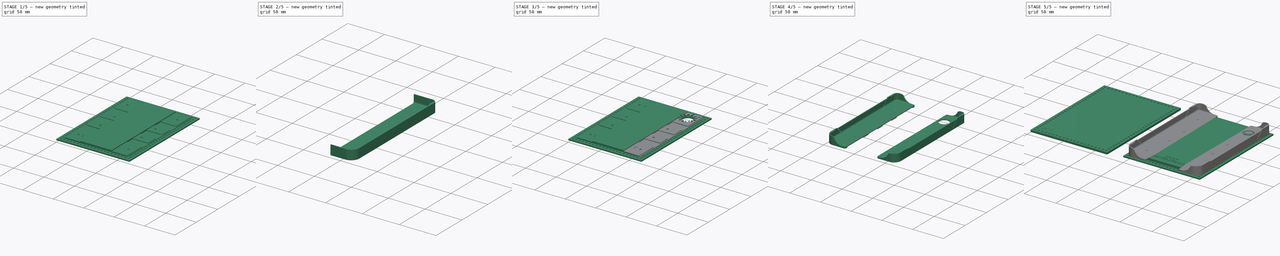
[diagram: build sequence overview — one tinted view per stage of 5, left to right]
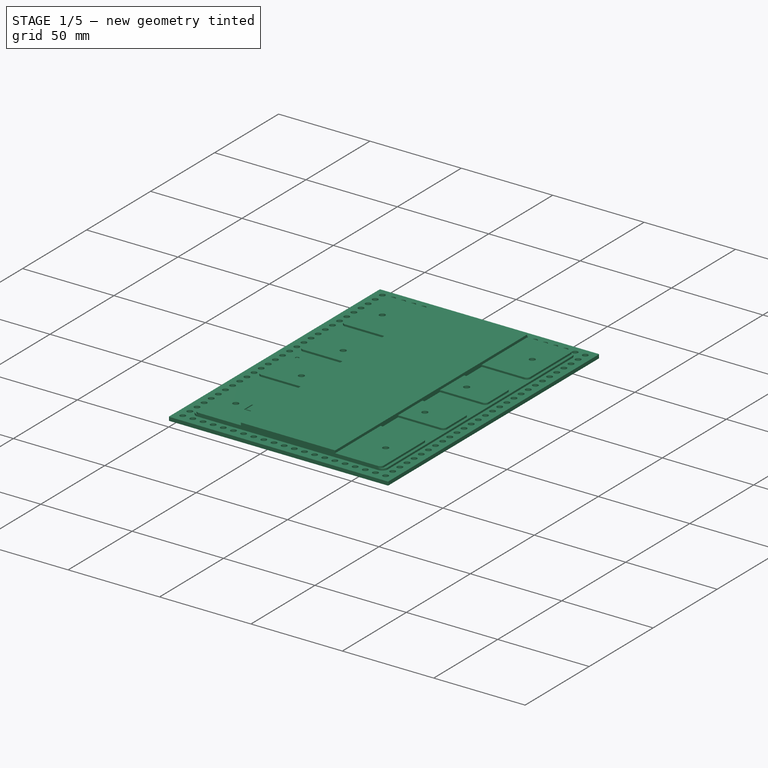
[diagram: stage 1 of 5 — iso view after this stage's code; geometry added in this stage tinted green]
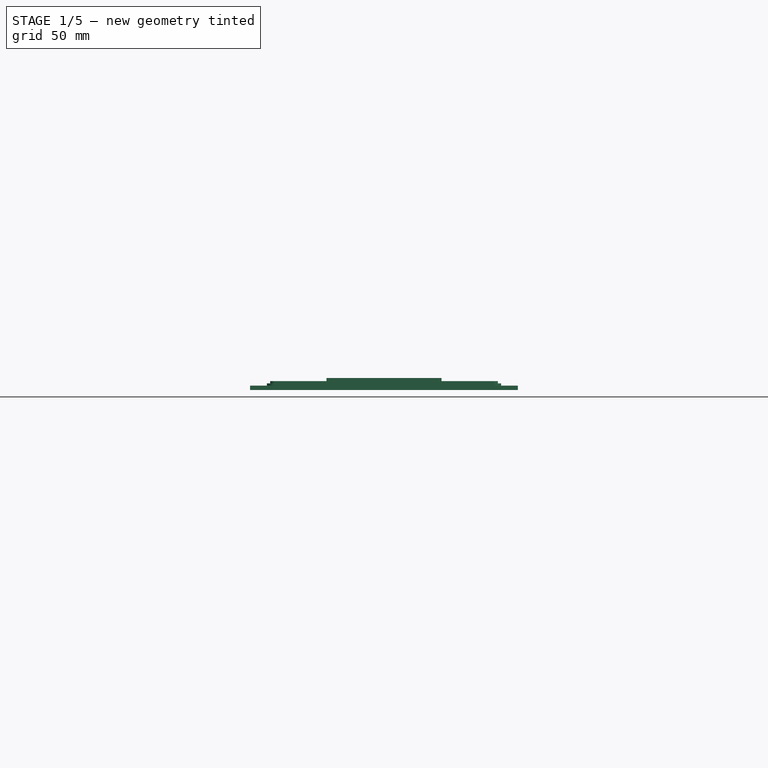
[diagram: stage 1 of 5 — front view after this stage's code; geometry added in this stage tinted green]
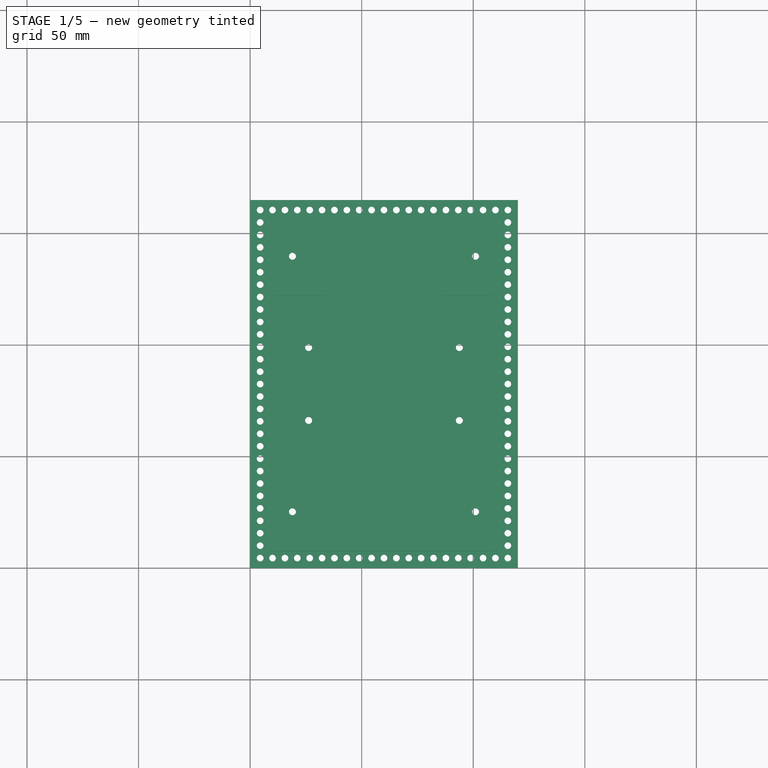
[diagram: stage 1 of 5 — top view after this stage's code; geometry added in this stage tinted green]
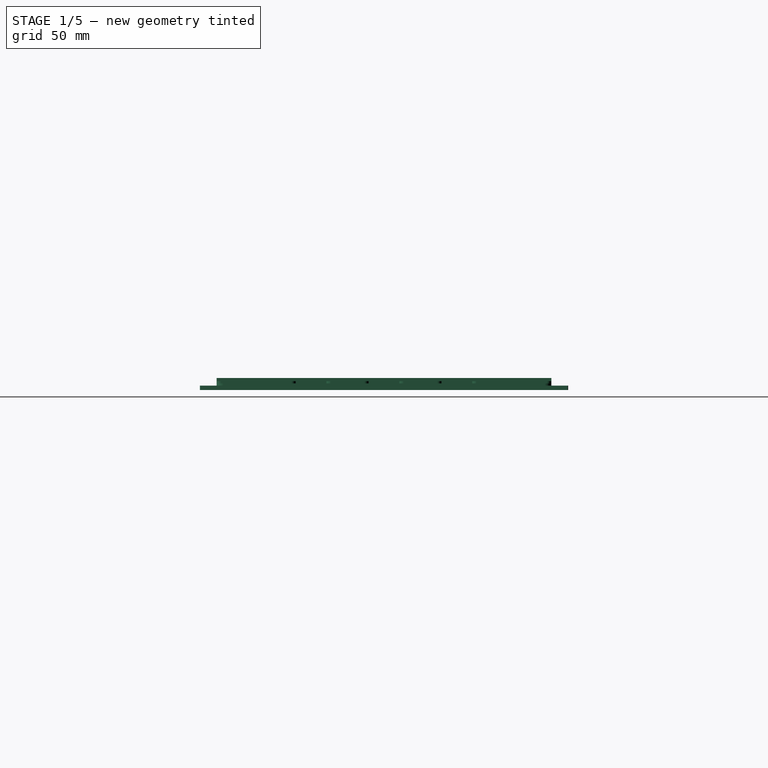
[diagram: stage 1 of 5 — right view after this stage's code; geometry added in this stage tinted green]
FCSTD DOCUMENT  (FreeCAD 0.21R33771 (Git))
Label: GLoA - 6 - Kobo Clara BW + Color)
License: Creative Commons Attribution-NonCommercial-ShareAlike 4.0
LicenseURL: https://creativecommons.org/licenses/by-nc-sa/4.0/
objects: PartDesign::Pocket×35, Sketcher::SketchObject×32, Part::Part2DObjectPython×13, PartDesign::Body×11, PartDesign::Pad×9, PartDesign::FeatureBase×8, PartDesign::Chamfer×4, PartDesign::Fillet×4, PartDesign::ShapeBinder×4, PartDesign::LinearPattern×2, App::Part×2, App::DocumentObjectGroup×2, PartDesign::PolarPattern×2, Part::Mirroring×1
note: 177 computed .brp shape members not serialized (recipe doc carries the construction recipe); baked Part::Feature solids carry a one-line shape summary decoded from their .brp

FEATURE [Sketcher::SketchObject] Sketch
  FullyConstrained = true
  MapMode = 5
  Support = -> [XY_Plane]
  sketch-geometry (4):
    g0: LineSegment StartX=0 StartY=0 StartZ=0 EndX=120 EndY=0 EndZ=0
    g1: LineSegment StartX=120 StartY=0 StartZ=0 EndX=120 EndY=165 EndZ=0
    g2: LineSegment StartX=120 StartY=165 StartZ=0 EndX=0 EndY=165 EndZ=0
    g3: LineSegment StartX=0 StartY=165 StartZ=0 EndX=0 EndY=0 EndZ=0
  constraints (11):
    c: Coincident(g0,g1)
    c: Coincident(g1,g2)
    c: Coincident(g2,g3)
    c: Coincident(g3,g0)
    c: Horizontal(g0)
    c: Horizontal(g2)
    c: Vertical(g1)
    c: Vertical(g3)
    c: Coincident(g0,g-1)
    c: Distance(g3) = 165
    c: Distance(g2) = 120
FEATURE [PartDesign::Pad] Pad
  Direction = (0,0,1)
  Length = 2
  Length2 = 10
  Profile = -> Sketch
  ReferenceAxis = -> Sketch [N_Axis]
  Type = 0
FEATURE [Sketcher::SketchObject] Sketch001
  ExternalGeometry = -> [Pad]
  FullyConstrained = true
  MapMode = 5
  Placement = pos=(0,0,2) rot=(0,0,1;0rad)
  Support = -> [Pad]
  sketch-geometry (10):
    g0: GeomPoint X=60 Y=82.5 Z=0
    g1: LineSegment StartX=112.5 StartY=7.5 StartZ=0 EndX=112.5 EndY=157.5 EndZ=0
    g2: LineSegment StartX=112.5 StartY=157.5 StartZ=0 EndX=7.5 EndY=157.5 EndZ=0
    g3: LineSegment StartX=7.5 StartY=157.5 StartZ=0 EndX=7.5 EndY=7.5 EndZ=0
    g4: LineSegment StartX=7.5 StartY=7.5 StartZ=0 EndX=112.5 EndY=7.5 EndZ=0
    g5: GeomPoint X=60 Y=82.5 Z=0
    g6: LineSegment StartX=0 StartY=165 StartZ=0 EndX=7.5 EndY=165 EndZ=0
    g7: LineSegment StartX=7.5 StartY=165 StartZ=0 EndX=7.5 EndY=157.5 EndZ=0
    g8: LineSegment StartX=7.5 StartY=157.5 StartZ=0 EndX=0 EndY=157.5 EndZ=0
    g9: LineSegment StartX=0 StartY=157.5 StartZ=0 EndX=0 EndY=165 EndZ=0
  constraints (23):
    c: Symmetric(g-3,g-4,g0)
    c: Coincident(g1,g2)
    c: Coincident(g2,g3)
    c: Coincident(g3,g4)
    c: Coincident(g4,g1)
    c: Horizontal(g2)
    c: Horizontal(g4)
    c: Vertical(g1)
    c: Vertical(g3)
    c: Symmetric(g2,g1,g5)
    c: Coincident(g5,g0)
    c: Coincident(g6,g7)
    c: Coincident(g7,g8)
    c: Coincident(g8,g9)
    c: Coincident(g9,g6)
    c: Horizontal(g6)
    c: Horizontal(g8)
    c: Vertical(g7)
    c: Vertical(g9)
    c: Coincident(g6,g-3)
    c: Coincident(g7,g2)
    c: Equal(g8,g7)
    c: Distance(g7) = 7.5
FEATURE [PartDesign::Pad] Pad001
  BaseFeature = -> Pad
  Direction = (0,0,1)
  Length = 1
  Length2 = 10
  Profile = -> Sketch001
  ReferenceAxis = -> Sketch001 [N_Axis]
  Refine = true
  Type = 0
FEATURE [Sketcher::SketchObject] Sketch002
  ExternalGeometry = -> [Pad001]
  FullyConstrained = true
  MapMode = 5
  Placement = pos=(0,0,3) rot=(0,0,1;0rad)
  Support = -> [Pad001]
  sketch-geometry (67):
    g0: GeomPoint X=60 Y=82.5 Z=0
    g1: LineSegment StartX=3.975 StartY=2.99 StartZ=0 EndX=3.975 EndY=162.01 EndZ=0
    g2: LineSegment StartX=3.975 StartY=162.01 StartZ=0 EndX=116.025 EndY=162.01 EndZ=0
    g3: LineSegment StartX=116.025 StartY=162.01 StartZ=0 EndX=116.025 EndY=2.99 EndZ=0
    g4: LineSegment StartX=116.025 StartY=2.99 StartZ=0 EndX=3.975 EndY=2.99 EndZ=0
    g5: GeomPoint X=60 Y=82.5 Z=0
    g6: LineSegment StartX=116.025 StartY=162.01 StartZ=0 EndX=97.025 EndY=162.01 EndZ=0
    g7: LineSegment StartX=97.025 StartY=162.01 StartZ=0 EndX=97.025 EndY=143.01 EndZ=0
    g8: LineSegment StartX=97.025 StartY=143.01 StartZ=0 EndX=116.025 EndY=143.01 EndZ=0
    g9: LineSegment StartX=116.025 StartY=143.01 StartZ=0 EndX=116.025 EndY=162.01 EndZ=0
    g10: Circle CenterX=97.025 CenterY=143.01 CenterZ=0 NormalX=0 NormalY=0 NormalZ=1 AngleXU=0 Radius=8.5
    g11: Circle CenterX=97.025 CenterY=143.01 CenterZ=0 NormalX=0 NormalY=0 NormalZ=1 AngleXU=0 Radius=14
    g12: LineSegment StartX=88.525 StartY=143.01 StartZ=0 EndX=83.025 EndY=143.01 EndZ=0
    g13: LineSegment StartX=34.225 StartY=7.5 StartZ=0 EndX=34.225 EndY=157.5 EndZ=0
    g14: LineSegment StartX=34.225 StartY=157.5 StartZ=0 EndX=85.775 EndY=157.5 EndZ=0
    g15: LineSegment StartX=85.775 StartY=157.5 StartZ=0 EndX=85.775 EndY=7.5 EndZ=0
    g16: LineSegment StartX=85.775 StartY=7.5 StartZ=0 EndX=34.225 EndY=7.5 EndZ=0
    g17: GeomPoint X=60 Y=82.5 Z=0
    g18: LineSegment StartX=85.775 StartY=157.5 StartZ=0 EndX=109.025 EndY=157.5 EndZ=0
    g19: LineSegment StartX=111.025 StartY=155.5 StartZ=0 EndX=111.025 EndY=124.01 EndZ=0
    g20: LineSegment StartX=109.025 StartY=122.01 StartZ=0 EndX=85.775 EndY=122.01 EndZ=0
    g21: ArcOfCircle CenterX=109.025 CenterY=124.01 CenterZ=0 NormalX=0 NormalY=0 NormalZ=1 AngleXU=0 Radius=2 StartAngle=4.71239 EndAngle=6.28319
    g22: ArcOfCircle CenterX=109.025 CenterY=155.5 CenterZ=0 NormalX=0 NormalY=0 NormalZ=1 AngleXU=0 Radius=2 StartAngle=1.1e-15 EndAngle=1.5708
    g23: Circle CenterX=97.025 CenterY=125.51 CenterZ=0 NormalX=0 NormalY=0 NormalZ=1 AngleXU=0 Radius=1.5
    g24: LineSegment StartX=97.025 StartY=127.01 StartZ=0 EndX=97.025 EndY=129.01 EndZ=0
    g25: LineSegment StartX=97.025 StartY=124.01 StartZ=0 EndX=97.025 EndY=122.01 EndZ=0
    g26: LineSegment StartX=85.775 StartY=122.01 StartZ=0 EndX=85.775 EndY=108.337 EndZ=0
    g27: LineSegment StartX=85.775 StartY=108.337 StartZ=0 EndX=109.025 EndY=108.337 EndZ=0
    g28: LineSegment StartX=111.025 StartY=106.337 StartZ=0 EndX=111.025 EndY=91.3367 EndZ=0
    g29: LineSegment StartX=109.025 StartY=89.3367 StartZ=0 EndX=85.775 EndY=89.3367 EndZ=0
    g30: LineSegment StartX=85.775 StartY=89.3367 StartZ=0 EndX=85.775 EndY=75.6633 EndZ=0
    g31: LineSegment StartX=85.775 StartY=75.6633 StartZ=0 EndX=109.025 EndY=75.6633 EndZ=0
    g32: LineSegment StartX=111.025 StartY=73.6633 StartZ=0 EndX=111.025 EndY=58.6633 EndZ=0
    g33: LineSegment StartX=109.025 StartY=56.6633 StartZ=0 EndX=85.775 EndY=56.6633 EndZ=0
    g34: LineSegment StartX=85.775 StartY=56.6633 StartZ=0 EndX=85.775 EndY=42.99 EndZ=0
    g35: LineSegment StartX=85.775 StartY=42.99 StartZ=0 EndX=109.025 EndY=42.99 EndZ=0
    g36: LineSegment StartX=111.025 StartY=40.99 StartZ=0 EndX=111.025 EndY=9.5 EndZ=0
    g37: LineSegment StartX=109.025 StartY=7.5 StartZ=0 EndX=85.775 EndY=7.5 EndZ=0
    g38: ArcOfCircle CenterX=109.025 CenterY=9.5 CenterZ=0 NormalX=0 NormalY=0 NormalZ=1 AngleXU=0 Radius=2 StartAngle=4.71239 EndAngle=6.28319
    g39: ArcOfCircle CenterX=109.025 CenterY=40.99 CenterZ=0 NormalX=0 NormalY=0 NormalZ=1 AngleXU=0 Radius=2 StartAngle=1.4e-15 EndAngle=1.5708
    g40: ArcOfCircle CenterX=109.025 CenterY=58.6633 CenterZ=0 NormalX=0 NormalY=0 NormalZ=1 AngleXU=0 Radius=2 StartAngle=4.71239 EndAngle=6.28319
    g41: ArcOfCircle CenterX=109.025 CenterY=73.6633 CenterZ=0 NormalX=0 NormalY=0 NormalZ=1 AngleXU=0 Radius=2 StartAngle=0 EndAngle=1.5708
    g42: ArcOfCircle CenterX=109.025 CenterY=91.3367 CenterZ=0 NormalX=0 NormalY=0 NormalZ=1 AngleXU=0 Radius=2 StartAngle=4.71239 EndAngle=6.28319
    g43: ArcOfCircle CenterX=109.025 CenterY=106.337 CenterZ=0 NormalX=0 NormalY=0 NormalZ=1 AngleXU=0 Radius=2 StartAngle=2e-15 EndAngle=1.5708
    g44: LineSegment StartX=34.225 StartY=157.5 StartZ=0 EndX=10.975 EndY=157.5 EndZ=0
    g45: LineSegment StartX=8.975 StartY=155.5 StartZ=0 EndX=8.975 EndY=124.01 EndZ=0
    g46: LineSegment StartX=10.975 StartY=122.01 StartZ=0 EndX=34.225 EndY=122.01 EndZ=0
    g47: LineSegment StartX=34.225 StartY=122.01 StartZ=0 EndX=34.225 EndY=108.337 EndZ=0
    g48: LineSegment StartX=34.225 StartY=108.337 StartZ=0 EndX=10.975 EndY=108.337 EndZ=0
    g49: LineSegment StartX=8.975 StartY=106.337 StartZ=0 EndX=8.975 EndY=91.3367 EndZ=0
    g50: LineSegment StartX=10.975 StartY=89.3367 StartZ=0 EndX=34.225 EndY=89.3367 EndZ=0
    g51: LineSegment StartX=34.225 StartY=89.3367 StartZ=0 EndX=34.225 EndY=75.6633 EndZ=0
    g52: LineSegment StartX=34.225 StartY=75.6633 StartZ=0 EndX=10.975 EndY=75.6633 EndZ=0
    g53: LineSegment StartX=8.975 StartY=73.6633 StartZ=0 EndX=8.975 EndY=58.6633 EndZ=0
    g54: LineSegment StartX=10.975 StartY=56.6633 StartZ=0 EndX=34.225 EndY=56.6633 EndZ=0
    g55: LineSegment StartX=34.225 StartY=56.6633 StartZ=0 EndX=34.225 EndY=42.99 EndZ=0
    g56: LineSegment StartX=34.225 StartY=42.99 StartZ=0 EndX=10.975 EndY=42.99 EndZ=0
    g57: LineSegment StartX=8.975 StartY=40.99 StartZ=0 EndX=8.975 EndY=9.5 EndZ=0
    g58: LineSegment StartX=10.975 StartY=7.5 StartZ=0 EndX=34.225 EndY=7.5 EndZ=0
    g59: ArcOfCircle CenterX=10.975 CenterY=9.5 CenterZ=0 NormalX=0 NormalY=0 NormalZ=1 AngleXU=0 Radius=2 StartAngle=3.14159 EndAngle=4.71239
    g60: ArcOfCircle CenterX=10.975 CenterY=40.99 CenterZ=0 NormalX=0 NormalY=0 NormalZ=1 AngleXU=0 Radius=2 StartAngle=1.5708 EndAngle=3.14159
    g61: ArcOfCircle CenterX=10.975 CenterY=58.6633 CenterZ=0 NormalX=0 NormalY=0 NormalZ=1 AngleXU=0 Radius=2 StartAngle=3.14159 EndAngle=4.71239
    g62: ArcOfCircle CenterX=10.975 CenterY=73.6633 CenterZ=0 NormalX=0 NormalY=0 NormalZ=1 AngleXU=0 Radius=2 StartAngle=1.5708 EndAngle=3.14159
    g63: ArcOfCircle CenterX=10.975 CenterY=91.3367 CenterZ=0 NormalX=0 NormalY=0 NormalZ=1 AngleXU=0 Radius=2 StartAngle=3.14159 EndAngle=4.71239
    g64: ArcOfCircle CenterX=10.975 CenterY=106.337 CenterZ=0 NormalX=0 NormalY=0 NormalZ=1 AngleXU=0 Radius=2 StartAngle=1.5708 EndAngle=3.14159
    g65: ArcOfCircle CenterX=10.975 CenterY=124.01 CenterZ=0 NormalX=0 NormalY=0 NormalZ=1 AngleXU=0 Radius=2 StartAngle=3.14159 EndAngle=4.71239
    g66: ArcOfCircle CenterX=10.975 CenterY=155.5 CenterZ=0 NormalX=0 NormalY=0 NormalZ=1 AngleXU=0 Radius=2 StartAngle=1.5708 EndAngle=3.14159
  constraints (174):
    c: Symmetric(g-4,g-3,g0)
    c: Coincident(g1,g2)
    c: Coincident(g2,g3)
    c: Coincident(g3,g4)
    c: Coincident(g4,g1)
    c: Horizontal(g2)
    c: Horizontal(g4)
    c: Vertical(g1)
    c: Vertical(g3)
    c: Symmetric(g2,g1,g5)
    c: Coincident(g5,g0)
    c: Distance(g3) = 159.02
    c: Distance(g2) = 112.05
    c: Coincident(g6,g7)
    c: Coincident(g7,g8)
    c: Coincident(g8,g9)
    c: Coincident(g9,g6)
    c: Horizontal(g6)
    c: Horizontal(g8)
    c: Vertical(g7)
    c: Vertical(g9)
    c: Coincident(g6,g2)
    c: Equal(g7,g8)
    c: Distance(g7) = 19
    c: Coincident(g10,g7)
    c: Diameter(g10) = 17
    c: Coincident(g11,g7)
    c: PointOnObject(g12,g10)
    c: PointOnObject(g12,g11)
    c: Horizontal(g12)
    c: Perpendicular(g10,g12)
    c: Distance(g12) = 5.5
    c: Coincident(g13,g14)
    c: Coincident(g14,g15)
    c: Coincident(g15,g16)
    c: Coincident(g16,g13)
    c: Horizontal(g14)
    c: Horizontal(g16)
    c: Vertical(g13)
    c: Symmetric(g14,g13,g17)
    c: Coincident(g17,g0)
    c: PointOnObject(g14,g-4)
    c: Symmetric(g12,g12,g15)
    c: Coincident(g18,g14)
    c: Tangent(g19,g11)
    c: Vertical(g19)
    c: PointOnObject(g20,g15)
    c: Horizontal(g20)
    c: Tangent(g20,g21) = 1.5708
    c: Tangent(g19,g21) = 1.5708
    c: Tangent(g19,g22) = 1.5708
    c: Tangent(g18,g22) = 1.5708
    c: Equal(g22,g21)
    c: Radius(g22) = 2
    c: Horizontal(g18)
    c: PointOnObject(g24,g23)
    c: PointOnObject(g24,g11)
    c: Vertical(g24)
    c: PointOnObject(g25,g23)
    c: PointOnObject(g25,g20)
    c: Vertical(g25)
    c: Perpendicular(g23,g24)
    c: Perpendicular(g23,g25)
    c: Equal(g24,g25)
    c: Diameter(g23) = 3
    c: Distance(g24) = 2
    c: Perpendicular(g11,g24)
    c: Coincident(g26,g20)
    c: PointOnObject(g26,g15)
    c: Coincident(g27,g26)
    c: Horizontal(g27)
    c: Vertical(g28)
    c: PointOnObject(g29,g15)
    c: Horizontal(g29)
    c: Coincident(g30,g29)
    c: PointOnObject(g30,g15)
    c: Coincident(g31,g30)
    c: Horizontal(g31)
    c: Vertical(g32)
    c: PointOnObject(g33,g15)
    c: Horizontal(g33)
    c: Coincident(g34,g33)
    c: PointOnObject(g34,g15)
    c: Coincident(g35,g34)
    c: Horizontal(g35)
    c: Vertical(g36)
    c: Coincident(g37,g16)
    c: Tangent(g37,g38) = 1.5708
    c: Tangent(g36,g38) = 1.5708
    c: Tangent(g36,g39) = 1.5708
    c: Tangent(g35,g39) = 1.5708
    c: Tangent(g33,g40) = 1.5708
    c: Tangent(g32,g40) = 1.5708
    c: Tangent(g32,g41) = 1.5708
    c: Tangent(g31,g41) = 1.5708
    c: Tangent(g29,g42) = 1.5708
    c: Tangent(g28,g42) = 1.5708
    c: Tangent(g28,g43) = 1.5708
    c: Tangent(g27,g43) = 1.5708
    c: Equal(g21,g43)
    c: Equal(g43,g42)
    c: Equal(g42,g41)
    c: Equal(g41,g40)
    c: Equal(g40,g39)
    c: Equal(g39,g38)
    c: Horizontal(g37)
    c: Equal(g35,g33)
    c: Equal(g31,g29)
    c: Equal(g27,g20)
    c: Equal(g26,g30)
    c: Equal(g34,g30)
    c: Equal(g36,g19)
    c: Equal(g28,g32)
    c: Distance(g28) = 15
    c: Coincident(g44,g14)
    c: Horizontal(g44)
    c: Vertical(g45)
    c: PointOnObject(g46,g13)
    c: Horizontal(g46)
    c: Coincident(g47,g46)
    c: PointOnObject(g47,g13)
    c: Coincident(g48,g47)
    c: Horizontal(g48)
    c: Vertical(g49)
    c: PointOnObject(g50,g13)
    c: Horizontal(g50)
    c: Coincident(g51,g50)
    c: PointOnObject(g51,g13)
    c: Coincident(g52,g51)
    c: Horizontal(g52)
    c: Vertical(g53)
    c: Horizontal(g54)
    c: PointOnObject(g54,g13)
    c: Coincident(g55,g54)
    c: PointOnObject(g55,g13)
    c: Coincident(g56,g55)
    c: Horizontal(g56)
    c: Vertical(g57)
    c: Horizontal(g58)
    c: Coincident(g58,g16)
    c: Tangent(g57,g59) = -1.5708
    c: Tangent(g58,g59) = -1.5708
    c: Tangent(g57,g60) = -1.5708
    c: Tangent(g56,g60) = -1.5708
    c: Tangent(g54,g61) = -1.5708
    c: Tangent(g53,g61) = -1.5708
    c: Tangent(g53,g62) = -1.5708
    c: Tangent(g52,g62) = -1.5708
    c: Tangent(g50,g63) = -1.5708
    c: Tangent(g49,g63) = -1.5708
    c: Tangent(g49,g64) = -1.5708
    c: Tangent(g48,g64) = -1.5708
    c: Tangent(g46,g65) = -1.5708
    c: Tangent(g45,g65) = -1.5708
    c: Tangent(g45,g66) = -1.5708
    c: Tangent(g44,g66) = -1.5708
    c: Equal(g66,g65)
    c: Equal(g64,g63)
    c: Equal(g62,g61)
    c: Equal(g60,g59)
    c: Equal(g37,g58)
    c: Equal(g66,g22)
    c: Equal(g56,g54)
    c: Equal(g52,g50)
    c: Equal(g48,g46)
    c: Equal(g45,g19)
    c: Equal(g57,g45)
    c: Equal(g61,g60)
    c: Equal(g62,g63)
    c: Equal(g65,g64)
    c: Equal(g47,g51)
    c: Equal(g51,g55)
    c: Equal(g53,g32)
    c: Equal(g28,g49)
FEATURE [PartDesign::Pad] Pad002
  BaseFeature = -> Pad001
  Direction = (0,0,1)
  Length = 1
  Length2 = 10
  Profile = -> Sketch002
  ReferenceAxis = -> Sketch002 [N_Axis]
  Refine = true
  Type = 0
FEATURE [Sketcher::SketchObject] Sketch003
  ExternalGeometry = -> [Pad002]
  FullyConstrained = true
  MapMode = 5
  Placement = pos=(0,0,4) rot=(0,0,1;0rad)
  Support = -> [Pad002]
  sketch-geometry (4):
    g0: LineSegment StartX=85.775 StartY=157.5 StartZ=0 EndX=34.225 EndY=157.5 EndZ=0
    g1: LineSegment StartX=34.225 StartY=157.5 StartZ=0 EndX=34.225 EndY=7.5 EndZ=0
    g2: LineSegment StartX=34.225 StartY=7.5 StartZ=0 EndX=85.775 EndY=7.5 EndZ=0
    g3: LineSegment StartX=85.775 StartY=7.5 StartZ=0 EndX=85.775 EndY=157.5 EndZ=0
  constraints (12):
    c: Coincident(g0,g1)
    c: Coincident(g1,g2)
    c: Coincident(g2,g3)
    c: Coincident(g3,g0)
    c: Horizontal(g0)
    c: Horizontal(g2)
    c: Vertical(g1)
    c: Vertical(g3)
    c: PointOnObject(g0,g-5)
    c: PointOnObject(g1,g-4)
    c: PointOnObject(g-6,g3)
    c: PointOnObject(g-3,g1)
FEATURE [PartDesign::Pad] Pad003
  BaseFeature = -> Pad002
  Direction = (0,0,1)
  Length = 1.4
  Length2 = 10
  Profile = -> Sketch003
  ReferenceAxis = -> Sketch003 [N_Axis]
  Refine = true
  Type = 0
FEATURE [PartDesign::Chamfer] Chamfer
  Angle = 45
  Base = -> Pad003 [Edge2,Edge1,Edge5,Edge8]
  BaseFeature = -> Pad003
  ChamferType = 0
  FlipDirection = false
  Size = 0.2
  Size2 = 1
  SupportTransform = false
  UseAllEdges = false
FEATURE [Sketcher::SketchObject] Sketch004
  ExternalGeometry = -> [Chamfer]
  FullyConstrained = true
  MapMode = 5
  Placement = pos=(0,0,4) rot=(0,0,1;0rad)
  Support = -> [Chamfer]
  sketch-geometry (16):
    g0: Circle CenterX=18.975 CenterY=139.755 CenterZ=0 NormalX=0 NormalY=0 NormalZ=1 AngleXU=0 Radius=1.575
    g1: Circle CenterX=101.025 CenterY=139.755 CenterZ=0 NormalX=0 NormalY=0 NormalZ=1 AngleXU=0 Radius=1.575
    g2: Circle CenterX=93.775 CenterY=98.8367 CenterZ=0 NormalX=0 NormalY=0 NormalZ=1 AngleXU=0 Radius=1.575
    g3: Circle CenterX=26.225 CenterY=98.8367 CenterZ=0 NormalX=0 NormalY=0 NormalZ=1 AngleXU=0 Radius=1.575
    g4: Circle CenterX=26.225 CenterY=66.1633 CenterZ=0 NormalX=0 NormalY=0 NormalZ=1 AngleXU=0 Radius=1.575
    g5: Circle CenterX=18.975 CenterY=25.245 CenterZ=0 NormalX=0 NormalY=0 NormalZ=1 AngleXU=0 Radius=1.575
    g6: Circle CenterX=101.025 CenterY=25.245 CenterZ=0 NormalX=0 NormalY=0 NormalZ=1 AngleXU=0 Radius=1.575
    g7: Circle CenterX=93.775 CenterY=66.1633 CenterZ=0 NormalX=0 NormalY=0 NormalZ=1 AngleXU=0 Radius=1.575
    g8: LineSegment StartX=26.225 StartY=98.8367 StartZ=0 EndX=34.225 EndY=98.8367 EndZ=0
    g9: LineSegment StartX=18.975 StartY=139.755 StartZ=0 EndX=10.975 EndY=139.755 EndZ=0
    g10: LineSegment StartX=101.025 StartY=139.755 StartZ=0 EndX=109.025 EndY=139.755 EndZ=0
    g11: LineSegment StartX=93.775 StartY=98.8367 StartZ=0 EndX=85.775 EndY=98.8367 EndZ=0
    g12: LineSegment StartX=93.775 StartY=66.1633 StartZ=0 EndX=85.775 EndY=66.1633 EndZ=0
    g13: LineSegment StartX=26.225 StartY=66.1633 StartZ=0 EndX=34.225 EndY=66.1633 EndZ=0
    g14: LineSegment StartX=18.975 StartY=25.245 StartZ=0 EndX=10.975 EndY=25.245 EndZ=0
    g15: LineSegment StartX=101.025 StartY=25.245 StartZ=0 EndX=109.025 EndY=25.245 EndZ=0
  constraints (40):
    c: Diameter(g0) = 3.15
    c: Equal(g0,g3)
    c: Equal(g3,g4)
    c: Equal(g4,g5)
    c: Equal(g5,g6)
    c: Equal(g6,g7)
    c: Equal(g7,g2)
    c: Equal(g2,g1)
    c: Coincident(g8,g3)
    c: Horizontal(g8)
    c: Coincident(g9,g0)
    c: Horizontal(g9)
    c: Coincident(g10,g1)
    c: Horizontal(g10)
    c: Coincident(g11,g2)
    c: Horizontal(g11)
    c: Coincident(g12,g7)
    c: Horizontal(g12)
    c: Coincident(g13,g4)
    c: Horizontal(g13)
    c: Symmetric(g-9,g-10,g8)
    c: Symmetric(g-12,g-11,g13)
    c: Symmetric(g-17,g-18,g12)
    c: Symmetric(g-8,g-7,g11)
    c: Symmetric(g-5,g-6,g10)
    c: Symmetric(g-4,g-3,g9)
    c: Coincident(g14,g5)
    c: Horizontal(g14)
    c: Coincident(g15,g6)
    c: Horizontal(g15)
    c: Symmetric(g-13,g-14,g14)
    c: Symmetric(g-16,g-15,g15)
    c: Equal(g14,g15)
    c: Equal(g15,g12)
    c: Equal(g13,g12)
    c: Equal(g13,g8)
    c: Equal(g8,g11)
    c: Equal(g11,g10)
    c: Equal(g10,g9)
    c: Distance(g9) = 8
FEATURE [PartDesign::Pocket] Pocket
  BaseFeature = -> Chamfer
  Direction = (0,0,-1)
  Length = 10
  Length2 = 5
  Profile = -> Sketch004
  ReferenceAxis = -> Sketch004 [N_Axis]
  Type = 0
FEATURE [PartDesign::Fillet] Fillet
  Base = -> Pocket [Edge54,Edge56,Edge66,Edge53]
  BaseFeature = -> Pocket
  Radius = 3
  SupportTransform = false
  UseAllEdges = false
FEATURE [Sketcher::SketchObject] Sketch005
  ExternalGeometry = -> [Fillet]
  FullyConstrained = true
  MapMode = 5
  Placement = pos=(0,0,2) rot=(0,0,1;0rad)
  Support = -> [Fillet]
  sketch-geometry (6):
    g0: Circle CenterX=115.5 CenterY=4.5 CenterZ=0 NormalX=0 NormalY=0 NormalZ=1 AngleXU=0 Radius=1.5
    g1: LineSegment StartX=115.5 StartY=0 StartZ=0 EndX=115.5 EndY=3 EndZ=0
    g2: LineSegment StartX=117 StartY=4.5 StartZ=0 EndX=120 EndY=4.5 EndZ=0
    g3: Circle CenterX=4.5 CenterY=4.5 CenterZ=0 NormalX=0 NormalY=0 NormalZ=1 AngleXU=0 Radius=1.5
    g4: LineSegment StartX=0 StartY=4.5 StartZ=0 EndX=3 EndY=4.5 EndZ=0
    g5: LineSegment StartX=4.5 StartY=3 StartZ=0 EndX=4.5 EndY=0 EndZ=0
  constraints (22):
    c: PointOnObject(g1,g-3)
    c: PointOnObject(g1,g0)
    c: Vertical(g1)
    c: PointOnObject(g2,g0)
    c: PointOnObject(g2,g-4)
    c: Horizontal(g2)
    c: Distance(g1) = 3
    c: Perpendicular(g0,g2)
    c: Perpendicular(g0,g1)
    c: Diameter(g0) = 3
    c: PointOnObject(g4,g-5)
    c: PointOnObject(g4,g3)
    c: Horizontal(g4)
    c: PointOnObject(g5,g3)
    c: PointOnObject(g5,g-3)
    c: Vertical(g5)
    c: Perpendicular(g3,g5)
    c: Perpendicular(g3,g4)
    c: Diameter(g3) = 3
    c: Equal(g4,g5)
    c: Equal(g5,g1)
    c: Equal(g1,g2)
FEATURE [PartDesign::Pocket] Pocket001
  BaseFeature = -> Fillet
  Direction = (0,0,-1)
  Length = 5
  Length2 = 5
  Profile = -> Sketch005
  ReferenceAxis = -> Sketch005 [N_Axis]
  Type = 0
FEATURE [PartDesign::LinearPattern] LinearPattern
  BaseFeature = -> Pocket001
  Direction = -> Sketch005 [V_Axis]
  Length = 156
  Occurrences = 29
  Originals = -> [Pocket001]
FEATURE [Sketcher::SketchObject] Sketch006
  ExternalGeometry = -> [LinearPattern]
  FullyConstrained = true
  MapMode = 5
  Placement = pos=(0,0,2) rot=(0,0,1;0rad)
  Support = -> [LinearPattern]
  sketch-geometry (2):
    g0: Circle CenterX=115.5 CenterY=4.5 CenterZ=0 NormalX=0 NormalY=0 NormalZ=1 AngleXU=0 Radius=1.5
    g1: Circle CenterX=115.5 CenterY=160.5 CenterZ=0 NormalX=0 NormalY=0 NormalZ=1 AngleXU=0 Radius=1.5
  constraints (4):
    c: Coincident(g0,g-4)
    c: Coincident(g1,g-3)
    c: Equal(g-3,g1)
    c: Equal(g1,g0)
FEATURE [PartDesign::Pocket] Pocket002
  BaseFeature = -> LinearPattern
  Direction = (0,0,-1)
  Length = 5
  Length2 = 5
  Profile = -> Sketch006
  ReferenceAxis = -> Sketch006 [N_Axis]
  Type = 0
FEATURE [PartDesign::LinearPattern] LinearPattern001
  BaseFeature = -> Pocket002
  Direction = -> Sketch006 [H_Axis]
  Length = 111
  Occurrences = 21
  Originals = -> [Pocket002]
  Reversed = true
FEATURE [PartDesign::Body] Body001  label="Sleep"
  Group = -> [ShapeBinder,Pad004,Sketch008,Pad005,Sketch009,Pocket003]
  Origin = -> Origin002
  Placement = pos=(-145,0,0) rot=(0,0,1;0rad)
  Tip = -> Pocket003
FEATURE [Sketcher::SketchObject] Sketch010
  ExternalGeometry = -> [LinearPattern001]
  FullyConstrained = true
  MapMode = 5
  Placement = pos=(0,0,3) rot=(0,0,1;0rad)
  Support = -> [LinearPattern001]
  sketch-geometry (2):
    g0: LineSegment StartX=0 StartY=82.5 StartZ=0 EndX=12.5 EndY=82.5 EndZ=0
    g1: Circle CenterX=12.5 CenterY=82.5 CenterZ=0 NormalX=0 NormalY=0 NormalZ=1 AngleXU=0 Radius=1
  constraints (5):
    c: Horizontal(g0)
    c: Coincident(g1,g0)
    c: Diameter(g1) = 2
    c: Distance(g0) = 12.5
    c: Symmetric(g-3,g-3,g0)
FEATURE [PartDesign::Pocket] Pocket004
  BaseFeature = -> LinearPattern001
  Direction = (0,0,-1)
  Length = 0.5
  Length2 = 5
  Profile = -> Sketch010
  ReferenceAxis = -> Sketch010 [N_Axis]
  Type = 0
FEATURE [Part::Part2DObjectPython] ShapeString  label="L Bottom"  # Draft 2D object (typed FeaturePython)
  FontFile = F:/16 Bit Git Repro/Gloa-eReader-Cases/Font/OpenSans-Regular.ttf
  MakeFace = true
  Placement = pos=(24.77,22.13,10) rot=(0,0,1;0rad)
  Size = 8
  String = L
  Tracking = 0
FEATURE [Part::Part2DObjectPython] ShapeString005  label="L Top"  # Draft 2D object (typed FeaturePython)
  FontFile = F:/16 Bit Git Repro/Gloa-eReader-Cases/Font/OpenSans-Regular.ttf
  MakeFace = true
  Placement = pos=(30.02,142.88,10) rot=(0,0,1;3.14159rad)
  Size = 8
  String = L
  Tracking = 0
FEATURE [Part::Part2DObjectPython] ShapeString006  label="R Top"  # Draft 2D object (typed FeaturePython)
  FontFile = F:/16 Bit Git Repro/Gloa-eReader-Cases/Font/OpenSans-Regular.ttf
  MakeFace = true
  Placement = pos=(95.47,142.88,10) rot=(0,0,1;3.14159rad)
  Size = 8
  String = R
  Tracking = 0
FEATURE [Part::Part2DObjectPython] ShapeString007  label="R Bottom"  # Draft 2D object (typed FeaturePython)
  FontFile = F:/16 Bit Git Repro/Gloa-eReader-Cases/Font/OpenSans-Regular.ttf
  MakeFace = true
  Placement = pos=(89.76,22.13,10) rot=(0,0,1;0rad)
  Size = 8
  String = R
  Tracking = 0
FEATURE [PartDesign::Pocket] Pocket025
  BaseFeature = -> Pocket004
  Direction = (0,0,-1)
  Length = 0
  Length2 = 5
  Offset = 0.5
  Profile = -> ShapeString
  ReferenceAxis = -> ShapeString [N_Axis]
  Type = 3
  UpToFace = -> Pocket004 [Face119]
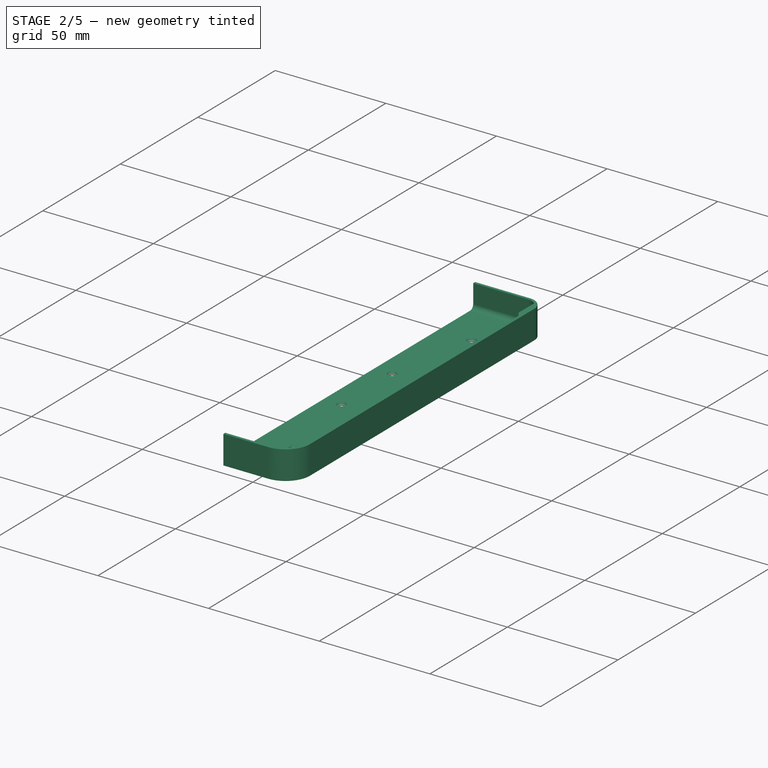
[diagram: stage 2 of 5 — iso view after this stage's code; geometry added in this stage tinted green]
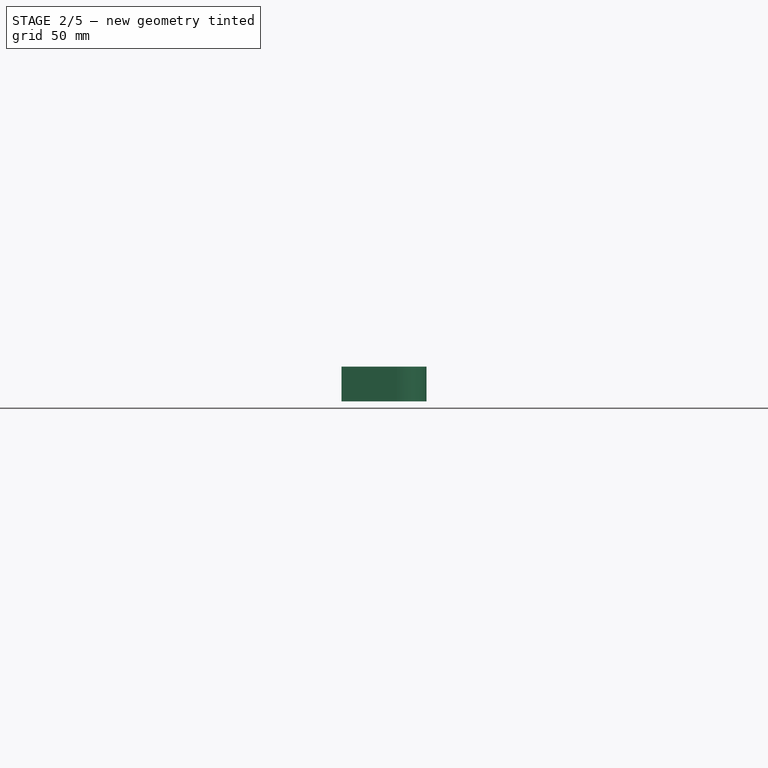
[diagram: stage 2 of 5 — front view after this stage's code; geometry added in this stage tinted green]
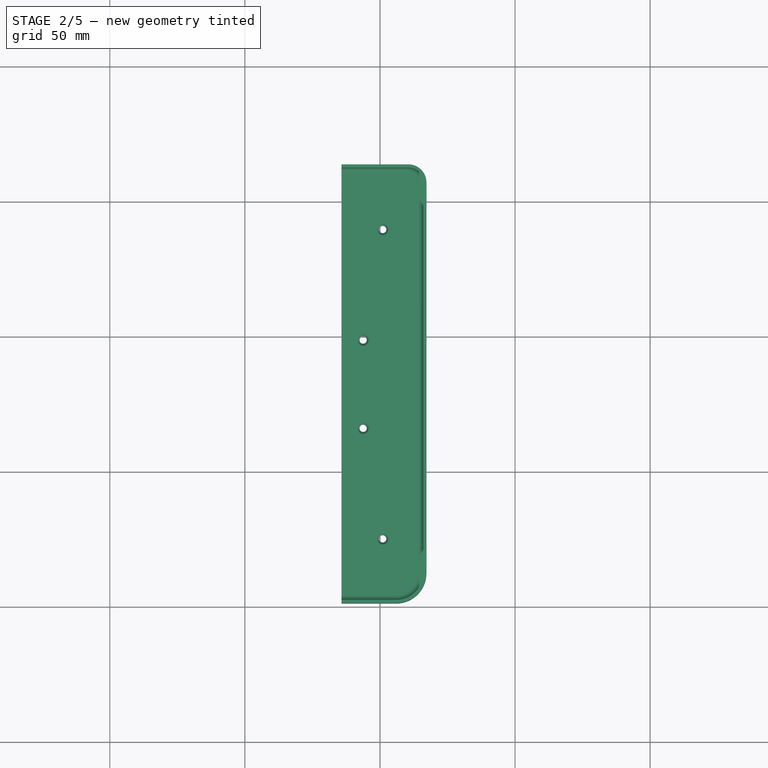
[diagram: stage 2 of 5 — top view after this stage's code; geometry added in this stage tinted green]
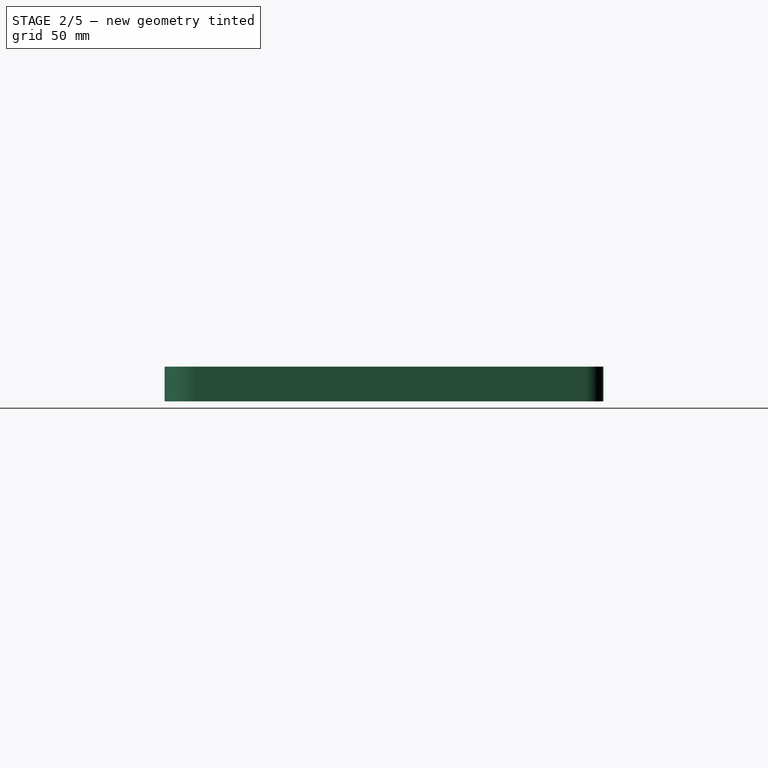
[diagram: stage 2 of 5 — right view after this stage's code; geometry added in this stage tinted green]
FEATURE [PartDesign::Pocket] Pocket026
  BaseFeature = -> Pocket025
  Direction = (0,0,-1)
  Length = 0
  Length2 = 5
  Offset = 0.5
  Profile = -> ShapeString007
  ReferenceAxis = -> ShapeString007 [N_Axis]
  Type = 3
  UpToFace = -> Pocket025 [Face120]
FEATURE [PartDesign::Pocket] Pocket027
  BaseFeature = -> Pocket026
  Direction = (0,0,-1)
  Length = 0
  Length2 = 5
  Offset = 0.5
  Profile = -> ShapeString005
  ReferenceAxis = -> ShapeString005 [N_Axis]
  Type = 3
  UpToFace = -> Pocket026 [Face127]
FEATURE [PartDesign::Pocket] Pocket028
  BaseFeature = -> Pocket027
  Direction = (0,0,-1)
  Length = 0
  Length2 = 5
  Offset = 0.5
  Profile = -> ShapeString006
  ReferenceAxis = -> ShapeString006 [N_Axis]
  Type = 3
  UpToFace = -> Pocket027 [Face126]
FEATURE [PartDesign::Body] Body011  label="6 inch Sleep"
  BaseFeature = -> Body001
  Group = -> [Clone007,ShapeString009,Pocket030]
  Origin = -> Origin016
  Placement = pos=(0,0,2.6) rot=(0,0,1;0rad)
  Tip = -> Pocket030
FEATURE [App::Part] Part  label="Stock Plastic-"
  Group = -> [Body010,Body011]
  Origin = -> Origin014
FEATURE [App::DocumentObjectGroup] Group  label="Stock Plastic"
  Group = -> [Body,Body001,Sketch007,ShapeString008,Part]
FEATURE [PartDesign::FeatureBase] Clone009
  BaseFeature = -> Pocket028
FEATURE [Part::Part2DObjectPython] ShapeString011  label="ClaraBWColor"  # Draft 2D object (typed FeaturePython)
  FontFile = <path> Bit Git Repro/16BitVirtualStudiosDesigns/Font/OpenSans-Regular.ttf
  MakeFace = true
  Placement = pos=(-136.08,10,10) rot=(0,0,1;0rad)
  Size = 8
  String = vCBC.1
  Tracking = 0
FEATURE [Sketcher::SketchObject] Sketch036  label="16 Bit Virtual Studios Clara 2e"
  FullyConstrained = false
  Placement = pos=(35.5,25.97,10.4) rot=(0,0,1;0rad)
  sketch-geometry (860):
    g0: BSplineCurve PolesCount=2 KnotsCount=2 Degree=1 IsPeriodic=0
    g1: BSplineCurve PolesCount=2 KnotsCount=2 Degree=1 IsPeriodic=0
    g2: BSplineCurve PolesCount=2 KnotsCount=2 Degree=1 IsPeriodic=0
    g3: BSplineCurve PolesCount=2 KnotsCount=2 Degree=1 IsPeriodic=0
    g4: BSplineCurve PolesCount=2 KnotsCount=2 Degree=1 IsPeriodic=0
    g5: BSplineCurve PolesCount=2 KnotsCount=2 Degree=1 IsPeriodic=0
    g6: BSplineCurve PolesCount=2 KnotsCount=2 Degree=1 IsPeriodic=0
    g7: BSplineCurve PolesCount=2 KnotsCount=2 Degree=1 IsPeriodic=0
    g8: BSplineCurve PolesCount=2 KnotsCount=2 Degree=1 IsPeriodic=0
    g9: BSplineCurve PolesCount=2 KnotsCount=2 Degree=1 IsPeriodic=0
    g10: BSplineCurve PolesCount=2 KnotsCount=2 Degree=1 IsPeriodic=0
    g11: BSplineCurve PolesCount=2 KnotsCount=2 Degree=1 IsPeriodic=0
    g12: BSplineCurve PolesCount=2 KnotsCount=2 Degree=1 IsPeriodic=0
    g13: BSplineCurve PolesCount=2 KnotsCount=2 Degree=1 IsPeriodic=0
    g14: BSplineCurve PolesCount=2 KnotsCount=2 Degree=1 IsPeriodic=0
    g15: BSplineCurve PolesCount=2 KnotsCount=2 Degree=1 IsPeriodic=0
    g16: BSplineCurve PolesCount=2 KnotsCount=2 Degree=1 IsPeriodic=0
    g17: BSplineCurve PolesCount=2 KnotsCount=2 Degree=1 IsPeriodic=0
    g18: BSplineCurve PolesCount=2 KnotsCount=2 Degree=1 IsPeriodic=0
    g19: BSplineCurve PolesCount=2 KnotsCount=2 Degree=1 IsPeriodic=0
    g20: BSplineCurve PolesCount=2 KnotsCount=2 Degree=1 IsPeriodic=0
    g21: BSplineCurve PolesCount=2 KnotsCount=2 Degree=1 IsPeriodic=0
    g22: BSplineCurve PolesCount=2 KnotsCount=2 Degree=1 IsPeriodic=0
    g23: BSplineCurve PolesCount=2 KnotsCount=2 Degree=1 IsPeriodic=0
    g24: BSplineCurve PolesCount=2 KnotsCount=2 Degree=1 IsPeriodic=0
    g25: BSplineCurve PolesCount=2 KnotsCount=2 Degree=1 IsPeriodic=0
    g26: BSplineCurve PolesCount=2 KnotsCount=2 Degree=1 IsPeriodic=0
    g27: BSplineCurve PolesCount=2 KnotsCount=2 Degree=1 IsPeriodic=0
    g28: BSplineCurve PolesCount=2 KnotsCount=2 Degree=1 IsPeriodic=0
    g29: BSplineCurve PolesCount=2 KnotsCount=2 Degree=1 IsPeriodic=0
    g30: BSplineCurve PolesCount=2 KnotsCount=2 Degree=1 IsPeriodic=0
    g31: BSplineCurve PolesCount=2 KnotsCount=2 Degree=1 IsPeriodic=0
    g32: BSplineCurve PolesCount=2 KnotsCount=2 Degree=1 IsPeriodic=0
    g33: BSplineCurve PolesCount=2 KnotsCount=2 Degree=1 IsPeriodic=0
    g34: BSplineCurve PolesCount=2 KnotsCount=2 Degree=1 IsPeriodic=0
    g35: BSplineCurve PolesCount=2 KnotsCount=2 Degree=1 IsPeriodic=0
    g36: BSplineCurve PolesCount=2 KnotsCount=2 Degree=1 IsPeriodic=0
    g37: BSplineCurve PolesCount=2 KnotsCount=2 Degree=1 IsPeriodic=0
    g38: BSplineCurve PolesCount=2 KnotsCount=2 Degree=1 IsPeriodic=0
    g39: BSplineCurve PolesCount=2 KnotsCount=2 Degree=1 IsPeriodic=0
    g40: BSplineCurve PolesCount=2 KnotsCount=2 Degree=1 IsPeriodic=0
    g41: BSplineCurve PolesCount=2 KnotsCount=2 Degree=1 IsPeriodic=0
    g42: BSplineCurve PolesCount=2 KnotsCount=2 Degree=1 IsPeriodic=0
    g43: BSplineCurve PolesCount=2 KnotsCount=2 Degree=1 IsPeriodic=0
    g44: BSplineCurve PolesCount=2 KnotsCount=2 Degree=1 IsPeriodic=0
    g45: BSplineCurve PolesCount=2 KnotsCount=2 Degree=1 IsPeriodic=0
    g46: BSplineCurve PolesCount=2 KnotsCount=2 Degree=1 IsPeriodic=0
    g47: BSplineCurve PolesCount=2 KnotsCount=2 Degree=1 IsPeriodic=0
    g48: BSplineCurve PolesCount=2 KnotsCount=2 Degree=1 IsPeriodic=0
    g49: BSplineCurve PolesCount=2 KnotsCount=2 Degree=1 IsPeriodic=0
    g50: BSplineCurve PolesCount=2 KnotsCount=2 Degree=1 IsPeriodic=0
    g51: BSplineCurve PolesCount=2 KnotsCount=2 Degree=1 IsPeriodic=0
    g52: BSplineCurve PolesCount=2 KnotsCount=2 Degree=1 IsPeriodic=0
    g53: BSplineCurve PolesCount=2 KnotsCount=2 Degree=1 IsPeriodic=0
    g54: BSplineCurve PolesCount=2 KnotsCount=2 Degree=1 IsPeriodic=0
    g55: BSplineCurve PolesCount=2 KnotsCount=2 Degree=1 IsPeriodic=0
    g56: BSplineCurve PolesCount=2 KnotsCount=2 Degree=1 IsPeriodic=0
    g57: BSplineCurve PolesCount=2 KnotsCount=2 Degree=1 IsPeriodic=0
    g58: BSplineCurve PolesCount=2 KnotsCount=2 Degree=1 IsPeriodic=0
    g59: BSplineCurve PolesCount=2 KnotsCount=2 Degree=1 IsPeriodic=0
    g60: BSplineCurve PolesCount=2 KnotsCount=2 Degree=1 IsPeriodic=0
    g61: BSplineCurve PolesCount=2 KnotsCount=2 Degree=1 IsPeriodic=0
    g62: BSplineCurve PolesCount=2 KnotsCount=2 Degree=1 IsPeriodic=0
    g63: BSplineCurve PolesCount=2 KnotsCount=2 Degree=1 IsPeriodic=0
    g64: BSplineCurve PolesCount=2 KnotsCount=2 Degree=1 IsPeriodic=0
    g65: BSplineCurve PolesCount=2 KnotsCount=2 Degree=1 IsPeriodic=0
    g66: BSplineCurve PolesCount=2 KnotsCount=2 Degree=1 IsPeriodic=0
    g67: BSplineCurve PolesCount=2 KnotsCount=2 Degree=1 IsPeriodic=0
    g68: BSplineCurve PolesCount=2 KnotsCount=2 Degree=1 IsPeriodic=0
    g69: BSplineCurve PolesCount=2 KnotsCount=2 Degree=1 IsPeriodic=0
    g70: BSplineCurve PolesCount=2 KnotsCount=2 Degree=1 IsPeriodic=0
    g71: BSplineCurve PolesCount=2 KnotsCount=2 Degree=1 IsPeriodic=0
    g72: BSplineCurve PolesCount=2 KnotsCount=2 Degree=1 IsPeriodic=0
    g73: BSplineCurve PolesCount=2 KnotsCount=2 Degree=1 IsPeriodic=0
    g74: BSplineCurve PolesCount=2 KnotsCount=2 Degree=1 IsPeriodic=0
    g75: BSplineCurve PolesCount=2 KnotsCount=2 Degree=1 IsPeriodic=0
    g76: BSplineCurve PolesCount=2 KnotsCount=2 Degree=1 IsPeriodic=0
    g77: BSplineCurve PolesCount=2 KnotsCount=2 Degree=1 IsPeriodic=0
    g78: BSplineCurve PolesCount=2 KnotsCount=2 Degree=1 IsPeriodic=0
    g79: BSplineCurve PolesCount=2 KnotsCount=2 Degree=1 IsPeriodic=0
    g80: BSplineCurve PolesCount=2 KnotsCount=2 Degree=1 IsPeriodic=0
    g81: BSplineCurve PolesCount=2 KnotsCount=2 Degree=1 IsPeriodic=0
    g82: BSplineCurve PolesCount=2 KnotsCount=2 Degree=1 IsPeriodic=0
    g83: BSplineCurve PolesCount=2 KnotsCount=2 Degree=1 IsPeriodic=0
    g84: BSplineCurve PolesCount=2 KnotsCount=2 Degree=1 IsPeriodic=0
    g85: BSplineCurve PolesCount=2 KnotsCount=2 Degree=1 IsPeriodic=0
    g86: BSplineCurve PolesCount=2 KnotsCount=2 Degree=1 IsPeriodic=0
    g87: BSplineCurve PolesCount=2 KnotsCount=2 Degree=1 IsPeriodic=0
    g88: BSplineCurve PolesCount=2 KnotsCount=2 Degree=1 IsPeriodic=0
    g89: BSplineCurve PolesCount=2 KnotsCount=2 Degree=1 IsPeriodic=0
    g90: BSplineCurve PolesCount=2 KnotsCount=2 Degree=1 IsPeriodic=0
    g91: BSplineCurve PolesCount=2 KnotsCount=2 Degree=1 IsPeriodic=0
    g92: BSplineCurve PolesCount=2 KnotsCount=2 Degree=1 IsPeriodic=0
    g93: BSplineCurve PolesCount=2 KnotsCount=2 Degree=1 IsPeriodic=0
    g94: BSplineCurve PolesCount=2 KnotsCount=2 Degree=1 IsPeriodic=0
    g95: BSplineCurve PolesCount=2 KnotsCount=2 Degree=1 IsPeriodic=0
    g96: BSplineCurve PolesCount=2 KnotsCount=2 Degree=1 IsPeriodic=0
    g97: BSplineCurve PolesCount=2 KnotsCount=2 Degree=1 IsPeriodic=0
    g98: BSplineCurve PolesCount=2 KnotsCount=2 Degree=1 IsPeriodic=0
    g99: BSplineCurve PolesCount=2 KnotsCount=2 Degree=1 IsPeriodic=0
    g100: BSplineCurve PolesCount=2 KnotsCount=2 Degree=1 IsPeriodic=0
    g101: BSplineCurve PolesCount=2 KnotsCount=2 Degree=1 IsPeriodic=0
    g102: BSplineCurve PolesCount=2 KnotsCount=2 Degree=1 IsPeriodic=0
    g103: BSplineCurve PolesCount=2 KnotsCount=2 Degree=1 IsPeriodic=0
    g104: BSplineCurve PolesCount=2 KnotsCount=2 Degree=1 IsPeriodic=0
    g105: BSplineCurve PolesCount=2 KnotsCount=2 Degree=1 IsPeriodic=0
    g106: BSplineCurve PolesCount=2 KnotsCount=2 Degree=1 IsPeriodic=0
    g107: BSplineCurve PolesCount=2 KnotsCount=2 Degree=1 IsPeriodic=0
    g108: BSplineCurve PolesCount=2 KnotsCount=2 Degree=1 IsPeriodic=0
    g109: BSplineCurve PolesCount=2 KnotsCount=2 Degree=1 IsPeriodic=0
    g110: BSplineCurve PolesCount=2 KnotsCount=2 Degree=1 IsPeriodic=0
    g111: BSplineCurve PolesCount=2 KnotsCount=2 Degree=1 IsPeriodic=0
    g112: BSplineCurve PolesCount=2 KnotsCount=2 Degree=1 IsPeriodic=0
    g113: BSplineCurve PolesCount=2 KnotsCount=2 Degree=1 IsPeriodic=0
    g114: BSplineCurve PolesCount=2 KnotsCount=2 Degree=1 IsPeriodic=0
    g115: BSplineCurve PolesCount=2 KnotsCount=2 Degree=1 IsPeriodic=0
    g116: BSplineCurve PolesCount=2 KnotsCount=2 Degree=1 IsPeriodic=0
    g117: BSplineCurve PolesCount=2 KnotsCount=2 Degree=1 IsPeriodic=0
    g118: BSplineCurve PolesCount=2 KnotsCount=2 Degree=1 IsPeriodic=0
    g119: BSplineCurve PolesCount=2 KnotsCount=2 Degree=1 IsPeriodic=0
    g120: BSplineCurve PolesCount=2 KnotsCount=2 Degree=1 IsPeriodic=0
    g121: BSplineCurve PolesCount=2 KnotsCount=2 Degree=1 IsPeriodic=0
    g122: BSplineCurve PolesCount=2 KnotsCount=2 Degree=1 IsPeriodic=0
    g123: BSplineCurve PolesCount=2 KnotsCount=2 Degree=1 IsPeriodic=0
    g124: BSplineCurve PolesCount=2 KnotsCount=2 Degree=1 IsPeriodic=0
    g125: BSplineCurve PolesCount=2 KnotsCount=2 Degree=1 IsPeriodic=0
    g126: BSplineCurve PolesCount=2 KnotsCount=2 Degree=1 IsPeriodic=0
    g127: BSplineCurve PolesCount=2 KnotsCount=2 Degree=1 IsPeriodic=0
    g128: BSplineCurve PolesCount=2 KnotsCount=2 Degree=1 IsPeriodic=0
    g129: BSplineCurve PolesCount=2 KnotsCount=2 Degree=1 IsPeriodic=0
    g130: BSplineCurve PolesCount=2 KnotsCount=2 Degree=1 IsPeriodic=0
    g131: BSplineCurve PolesCount=2 KnotsCount=2 Degree=1 IsPeriodic=0
    g132: BSplineCurve PolesCount=2 KnotsCount=2 Degree=1 IsPeriodic=0
    g133: BSplineCurve PolesCount=2 KnotsCount=2 Degree=1 IsPeriodic=0
    g134: BSplineCurve PolesCount=2 KnotsCount=2 Degree=1 IsPeriodic=0
    g135: BSplineCurve PolesCount=2 KnotsCount=2 Degree=1 IsPeriodic=0
    g136: BSplineCurve PolesCount=2 KnotsCount=2 Degree=1 IsPeriodic=0
    g137: BSplineCurve PolesCount=2 KnotsCount=2 Degree=1 IsPeriodic=0
    g138: BSplineCurve PolesCount=2 KnotsCount=2 Degree=1 IsPeriodic=0
    g139: BSplineCurve PolesCount=2 KnotsCount=2 Degree=1 IsPeriodic=0
    g140: BSplineCurve PolesCount=2 KnotsCount=2 Degree=1 IsPeriodic=0
    g141: BSplineCurve PolesCount=2 KnotsCount=2 Degree=1 IsPeriodic=0
    g142: BSplineCurve PolesCount=2 KnotsCount=2 Degree=1 IsPeriodic=0
    g143: BSplineCurve PolesCount=2 KnotsCount=2 Degree=1 IsPeriodic=0
    g144: BSplineCurve PolesCount=2 KnotsCount=2 Degree=1 IsPeriodic=0
    g145: BSplineCurve PolesCount=2 KnotsCount=2 Degree=1 IsPeriodic=0
    g146: BSplineCurve PolesCount=2 KnotsCount=2 Degree=1 IsPeriodic=0
    g147: BSplineCurve PolesCount=2 KnotsCount=2 Degree=1 IsPeriodic=0
    g148: BSplineCurve PolesCount=2 KnotsCount=2 Degree=1 IsPeriodic=0
    g149: BSplineCurve PolesCount=2 KnotsCount=2 Degree=1 IsPeriodic=0
    g150: BSplineCurve PolesCount=2 KnotsCount=2 Degree=1 IsPeriodic=0
    g151: BSplineCurve PolesCount=2 KnotsCount=2 Degree=1 IsPeriodic=0
    g152: BSplineCurve PolesCount=2 KnotsCount=2 Degree=1 IsPeriodic=0
    g153: BSplineCurve PolesCount=2 KnotsCount=2 Degree=1 IsPeriodic=0
    g154: BSplineCurve PolesCount=2 KnotsCount=2 Degree=1 IsPeriodic=0
    g155: BSplineCurve PolesCount=2 KnotsCount=2 Degree=1 IsPeriodic=0
    g156: BSplineCurve PolesCount=2 KnotsCount=2 Degree=1 IsPeriodic=0
    g157: BSplineCurve PolesCount=2 KnotsCount=2 Degree=1 IsPeriodic=0
    g158: BSplineCurve PolesCount=2 KnotsCount=2 Degree=1 IsPeriodic=0
    g159: BSplineCurve PolesCount=2 KnotsCount=2 Degree=1 IsPeriodic=0
    g160: BSplineCurve PolesCount=2 KnotsCount=2 Degree=1 IsPeriodic=0
    g161: BSplineCurve PolesCount=2 KnotsCount=2 Degree=1 IsPeriodic=0
    g162: BSplineCurve PolesCount=2 KnotsCount=2 Degree=1 IsPeriodic=0
    g163: BSplineCurve PolesCount=2 KnotsCount=2 Degree=1 IsPeriodic=0
    g164: BSplineCurve PolesCount=2 KnotsCount=2 Degree=1 IsPeriodic=0
    g165: BSplineCurve PolesCount=2 KnotsCount=2 Degree=1 IsPeriodic=0
    g166: BSplineCurve PolesCount=2 KnotsCount=2 Degree=1 IsPeriodic=0
    g167: BSplineCurve PolesCount=2 KnotsCount=2 Degree=1 IsPeriodic=0
    g168: BSplineCurve PolesCount=2 KnotsCount=2 Degree=1 IsPeriodic=0
    g169: BSplineCurve PolesCount=2 KnotsCount=2 Degree=1 IsPeriodic=0
    g170: BSplineCurve PolesCount=2 KnotsCount=2 Degree=1 IsPeriodic=0
    g171: BSplineCurve PolesCount=2 KnotsCount=2 Degree=1 IsPeriodic=0
    g172: BSplineCurve PolesCount=2 KnotsCount=2 Degree=1 IsPeriodic=0
    g173: BSplineCurve PolesCount=2 KnotsCount=2 Degree=1 IsPeriodic=0
    g174: BSplineCurve PolesCount=2 KnotsCount=2 Degree=1 IsPeriodic=0
    g175: BSplineCurve PolesCount=2 KnotsCount=2 Degree=1 IsPeriodic=0
    g176: BSplineCurve PolesCount=2 KnotsCount=2 Degree=1 IsPeriodic=0
    g177: BSplineCurve PolesCount=2 KnotsCount=2 Degree=1 IsPeriodic=0
    g178: BSplineCurve PolesCount=2 KnotsCount=2 Degree=1 IsPeriodic=0
    g179: BSplineCurve PolesCount=2 KnotsCount=2 Degree=1 IsPeriodic=0
    g180: BSplineCurve PolesCount=2 KnotsCount=2 Degree=1 IsPeriodic=0
    g181: BSplineCurve PolesCount=2 KnotsCount=2 Degree=1 IsPeriodic=0
    g182: BSplineCurve PolesCount=2 KnotsCount=2 Degree=1 IsPeriodic=0
    g183: BSplineCurve PolesCount=2 KnotsCount=2 Degree=1 IsPeriodic=0
    g184: BSplineCurve PolesCount=2 KnotsCount=2 Degree=1 IsPeriodic=0
    g185: BSplineCurve PolesCount=2 KnotsCount=2 Degree=1 IsPeriodic=0
    g186: BSplineCurve PolesCount=2 KnotsCount=2 Degree=1 IsPeriodic=0
    g187: BSplineCurve PolesCount=2 KnotsCount=2 Degree=1 IsPeriodic=0
    g188: BSplineCurve PolesCount=2 KnotsCount=2 Degree=1 IsPeriodic=0
    g189: BSplineCurve PolesCount=2 KnotsCount=2 Degree=1 IsPeriodic=0
    g190: BSplineCurve PolesCount=2 KnotsCount=2 Degree=1 IsPeriodic=0
    g191: BSplineCurve PolesCount=2 KnotsCount=2 Degree=1 IsPeriodic=0
    g192: BSplineCurve PolesCount=2 KnotsCount=2 Degree=1 IsPeriodic=0
    g193: BSplineCurve PolesCount=2 KnotsCount=2 Degree=1 IsPeriodic=0
    g194: BSplineCurve PolesCount=2 KnotsCount=2 Degree=1 IsPeriodic=0
    g195: BSplineCurve PolesCount=2 KnotsCount=2 Degree=1 IsPeriodic=0
    g196: BSplineCurve PolesCount=2 KnotsCount=2 Degree=1 IsPeriodic=0
    g197: BSplineCurve PolesCount=2 KnotsCount=2 Degree=1 IsPeriodic=0
    g198: BSplineCurve PolesCount=2 KnotsCount=2 Degree=1 IsPeriodic=0
    g199: BSplineCurve PolesCount=2 KnotsCount=2 Degree=1 IsPeriodic=0
    g200: BSplineCurve PolesCount=2 KnotsCount=2 Degree=1 IsPeriodic=0
    g201: BSplineCurve PolesCount=2 KnotsCount=2 Degree=1 IsPeriodic=0
    g202: BSplineCurve PolesCount=2 KnotsCount=2 Degree=1 IsPeriodic=0
    g203: BSplineCurve PolesCount=2 KnotsCount=2 Degree=1 IsPeriodic=0
    g204: BSplineCurve PolesCount=2 KnotsCount=2 Degree=1 IsPeriodic=0
    g205: BSplineCurve PolesCount=2 KnotsCount=2 Degree=1 IsPeriodic=0
    g206: BSplineCurve PolesCount=2 KnotsCount=2 Degree=1 IsPeriodic=0
    g207: BSplineCurve PolesCount=2 KnotsCount=2 Degree=1 IsPeriodic=0
    g208: BSplineCurve PolesCount=2 KnotsCount=2 Degree=1 IsPeriodic=0
    g209: BSplineCurve PolesCount=2 KnotsCount=2 Degree=1 IsPeriodic=0
    g210: BSplineCurve PolesCount=2 KnotsCount=2 Degree=1 IsPeriodic=0
    g211: BSplineCurve PolesCount=2 KnotsCount=2 Degree=1 IsPeriodic=0
    g212: BSplineCurve PolesCount=2 KnotsCount=2 Degree=1 IsPeriodic=0
    g213: BSplineCurve PolesCount=2 KnotsCount=2 Degree=1 IsPeriodic=0
    g214: BSplineCurve PolesCount=2 KnotsCount=2 Degree=1 IsPeriodic=0
    g215: BSplineCurve PolesCount=2 KnotsCount=2 Degree=1 IsPeriodic=0
    g216: BSplineCurve PolesCount=2 KnotsCount=2 Degree=1 IsPeriodic=0
    g217: BSplineCurve PolesCount=2 KnotsCount=2 Degree=1 IsPeriodic=0
    g218: BSplineCurve PolesCount=2 KnotsCount=2 Degree=1 IsPeriodic=0
    g219: BSplineCurve PolesCount=2 KnotsCount=2 Degree=1 IsPeriodic=0
    g220: BSplineCurve PolesCount=2 KnotsCount=2 Degree=1 IsPeriodic=0
    g221: BSplineCurve PolesCount=2 KnotsCount=2 Degree=1 IsPeriodic=0
    g222: BSplineCurve PolesCount=2 KnotsCount=2 Degree=1 IsPeriodic=0
    g223: BSplineCurve PolesCount=2 KnotsCount=2 Degree=1 IsPeriodic=0
    g224: BSplineCurve PolesCount=2 KnotsCount=2 Degree=1 IsPeriodic=0
    g225: BSplineCurve PolesCount=2 KnotsCount=2 Degree=1 IsPeriodic=0
    g226: BSplineCurve PolesCount=2 KnotsCount=2 Degree=1 IsPeriodic=0
    g227: BSplineCurve PolesCount=2 KnotsCount=2 Degree=1 IsPeriodic=0
    g228: BSplineCurve PolesCount=2 KnotsCount=2 Degree=1 IsPeriodic=0
    g229: BSplineCurve PolesCount=2 KnotsCount=2 Degree=1 IsPeriodic=0
    g230: BSplineCurve PolesCount=2 KnotsCount=2 Degree=1 IsPeriodic=0
    g231: BSplineCurve PolesCount=2 KnotsCount=2 Degree=1 IsPeriodic=0
    g232: BSplineCurve PolesCount=2 KnotsCount=2 Degree=1 IsPeriodic=0
    g233: BSplineCurve PolesCount=2 KnotsCount=2 Degree=1 IsPeriodic=0
    g234: BSplineCurve PolesCount=2 KnotsCount=2 Degree=1 IsPeriodic=0
    g235: BSplineCurve PolesCount=2 KnotsCount=2 Degree=1 IsPeriodic=0
    g236: BSplineCurve PolesCount=2 KnotsCount=2 Degree=1 IsPeriodic=0
    g237: BSplineCurve PolesCount=2 KnotsCount=2 Degree=1 IsPeriodic=0
    g238: BSplineCurve PolesCount=2 KnotsCount=2 Degree=1 IsPeriodic=0
    g239: BSplineCurve PolesCount=2 KnotsCount=2 Degree=1 IsPeriodic=0
    g240: BSplineCurve PolesCount=2 KnotsCount=2 Degree=1 IsPeriodic=0
    g241: BSplineCurve PolesCount=2 KnotsCount=2 Degree=1 IsPeriodic=0
    g242: BSplineCurve PolesCount=2 KnotsCount=2 Degree=1 IsPeriodic=0
    g243: BSplineCurve PolesCount=2 KnotsCount=2 Degree=1 IsPeriodic=0
    g244: BSplineCurve PolesCount=2 KnotsCount=2 Degree=1 IsPeriodic=0
    g245: BSplineCurve PolesCount=2 KnotsCount=2 Degree=1 IsPeriodic=0
    g246: BSplineCurve PolesCount=2 KnotsCount=2 Degree=1 IsPeriodic=0
    g247: BSplineCurve PolesCount=2 KnotsCount=2 Degree=1 IsPeriodic=0
    g248: BSplineCurve PolesCount=2 KnotsCount=2 Degree=1 IsPeriodic=0
    g249: BSplineCurve PolesCount=2 KnotsCount=2 Degree=1 IsPeriodic=0
    g250: BSplineCurve PolesCount=2 KnotsCount=2 Degree=1 IsPeriodic=0
    g251: BSplineCurve PolesCount=2 KnotsCount=2 Degree=1 IsPeriodic=0
    g252: BSplineCurve PolesCount=2 KnotsCount=2 Degree=1 IsPeriodic=0
    g253: BSplineCurve PolesCount=2 KnotsCount=2 Degree=1 IsPeriodic=0
    g254: BSplineCurve PolesCount=2 KnotsCount=2 Degree=1 IsPeriodic=0
    g255: BSplineCurve PolesCount=2 KnotsCount=2 Degree=1 IsPeriodic=0
    g256: BSplineCurve PolesCount=2 KnotsCount=2 Degree=1 IsPeriodic=0
    g257: BSplineCurve PolesCount=2 KnotsCount=2 Degree=1 IsPeriodic=0
    g258: BSplineCurve PolesCount=2 KnotsCount=2 Degree=1 IsPeriodic=0
    g259: BSplineCurve PolesCount=2 KnotsCount=2 Degree=1 IsPeriodic=0
    g260: BSplineCurve PolesCount=2 KnotsCount=2 Degree=1 IsPeriodic=0
    g261: BSplineCurve PolesCount=2 KnotsCount=2 Degree=1 IsPeriodic=0
    g262: BSplineCurve PolesCount=2 KnotsCount=2 Degree=1 IsPeriodic=0
    g263: BSplineCurve PolesCount=2 KnotsCount=2 Degree=1 IsPeriodic=0
    g264: BSplineCurve PolesCount=2 KnotsCount=2 Degree=1 IsPeriodic=0
    g265: BSplineCurve PolesCount=2 KnotsCount=2 Degree=1 IsPeriodic=0
    g266: BSplineCurve PolesCount=2 KnotsCount=2 Degree=1 IsPeriodic=0
    g267: BSplineCurve PolesCount=2 KnotsCount=2 Degree=1 IsPeriodic=0
    g268: BSplineCurve PolesCount=2 KnotsCount=2 Degree=1 IsPeriodic=0
    g269: BSplineCurve PolesCount=2 KnotsCount=2 Degree=1 IsPeriodic=0
    g270: BSplineCurve PolesCount=2 KnotsCount=2 Degree=1 IsPeriodic=0
    g271: BSplineCurve PolesCount=2 KnotsCount=2 Degree=1 IsPeriodic=0
    g272: BSplineCurve PolesCount=2 KnotsCount=2 Degree=1 IsPeriodic=0
    g273: BSplineCurve PolesCount=2 KnotsCount=2 Degree=1 IsPeriodic=0
    g274: BSplineCurve PolesCount=2 KnotsCount=2 Degree=1 IsPeriodic=0
    g275: BSplineCurve PolesCount=2 KnotsCount=2 Degree=1 IsPeriodic=0
    g276: BSplineCurve PolesCount=2 KnotsCount=2 Degree=1 IsPeriodic=0
    g277: BSplineCurve PolesCount=2 KnotsCount=2 Degree=1 IsPeriodic=0
    g278: BSplineCurve PolesCount=2 KnotsCount=2 Degree=1 IsPeriodic=0
    g279: BSplineCurve PolesCount=2 KnotsCount=2 Degree=1 IsPeriodic=0
    g280: BSplineCurve PolesCount=2 KnotsCount=2 Degree=1 IsPeriodic=0
    g281: BSplineCurve PolesCount=2 KnotsCount=2 Degree=1 IsPeriodic=0
    g282: BSplineCurve PolesCount=2 KnotsCount=2 Degree=1 IsPeriodic=0
    g283: BSplineCurve PolesCount=2 KnotsCount=2 Degree=1 IsPeriodic=0
    g284: BSplineCurve PolesCount=2 KnotsCount=2 Degree=1 IsPeriodic=0
    g285: BSplineCurve PolesCount=2 KnotsCount=2 Degree=1 IsPeriodic=0
    g286: BSplineCurve PolesCount=2 KnotsCount=2 Degree=1 IsPeriodic=0
    g287: BSplineCurve PolesCount=2 KnotsCount=2 Degree=1 IsPeriodic=0
    g288: BSplineCurve PolesCount=2 KnotsCount=2 Degree=1 IsPeriodic=0
    g289: BSplineCurve PolesCount=2 KnotsCount=2 Degree=1 IsPeriodic=0
    g290: BSplineCurve PolesCount=2 KnotsCount=2 Degree=1 IsPeriodic=0
    g291: BSplineCurve PolesCount=2 KnotsCount=2 Degree=1 IsPeriodic=0
    g292: BSplineCurve PolesCount=2 KnotsCount=2 Degree=1 IsPeriodic=0
    g293: BSplineCurve PolesCount=2 KnotsCount=2 Degree=1 IsPeriodic=0
    g294: BSplineCurve PolesCount=2 KnotsCount=2 Degree=1 IsPeriodic=0
    g295: BSplineCurve PolesCount=2 KnotsCount=2 Degree=1 IsPeriodic=0
    g296: BSplineCurve PolesCount=2 KnotsCount=2 Degree=1 IsPeriodic=0
    g297: BSplineCurve PolesCount=2 KnotsCount=2 Degree=1 IsPeriodic=0
    g298: BSplineCurve PolesCount=2 KnotsCount=2 Degree=1 IsPeriodic=0
    g299: BSplineCurve PolesCount=2 KnotsCount=2 Degree=1 IsPeriodic=0
    g300: BSplineCurve PolesCount=2 KnotsCount=2 Degree=1 IsPeriodic=0
    g301: BSplineCurve PolesCount=2 KnotsCount=2 Degree=1 IsPeriodic=0
    g302: BSplineCurve PolesCount=2 KnotsCount=2 Degree=1 IsPeriodic=0
    g303: BSplineCurve PolesCount=2 KnotsCount=2 Degree=1 IsPeriodic=0
    g304: BSplineCurve PolesCount=2 KnotsCount=2 Degree=1 IsPeriodic=0
    g305: BSplineCurve PolesCount=2 KnotsCount=2 Degree=1 IsPeriodic=0
    g306: BSplineCurve PolesCount=2 KnotsCount=2 Degree=1 IsPeriodic=0
    g307: BSplineCurve PolesCount=2 KnotsCount=2 Degree=1 IsPeriodic=0
    g308: BSplineCurve PolesCount=2 KnotsCount=2 Degree=1 IsPeriodic=0
    g309: BSplineCurve PolesCount=2 KnotsCount=2 Degree=1 IsPeriodic=0
    g310: BSplineCurve PolesCount=2 KnotsCount=2 Degree=1 IsPeriodic=0
    g311: BSplineCurve PolesCount=2 KnotsCount=2 Degree=1 IsPeriodic=0
    g312: BSplineCurve PolesCount=2 KnotsCount=2 Degree=1 IsPeriodic=0
    g313: BSplineCurve PolesCount=2 KnotsCount=2 Degree=1 IsPeriodic=0
    g314: BSplineCurve PolesCount=2 KnotsCount=2 Degree=1 IsPeriodic=0
    g315: BSplineCurve PolesCount=2 KnotsCount=2 Degree=1 IsPeriodic=0
    g316: BSplineCurve PolesCount=2 KnotsCount=2 Degree=1 IsPeriodic=0
    g317: BSplineCurve PolesCount=2 KnotsCount=2 Degree=1 IsPeriodic=0
    g318: BSplineCurve PolesCount=2 KnotsCount=2 Degree=1 IsPeriodic=0
    g319: BSplineCurve PolesCount=2 KnotsCount=2 Degree=1 IsPeriodic=0
    g320: BSplineCurve PolesCount=2 KnotsCount=2 Degree=1 IsPeriodic=0
    g321: BSplineCurve PolesCount=2 KnotsCount=2 Degree=1 IsPeriodic=0
    g322: BSplineCurve PolesCount=2 KnotsCount=2 Degree=1 IsPeriodic=0
    g323: BSplineCurve PolesCount=2 KnotsCount=2 Degree=1 IsPeriodic=0
    g324: BSplineCurve PolesCount=2 KnotsCount=2 Degree=1 IsPeriodic=0
    g325: BSplineCurve PolesCount=2 KnotsCount=2 Degree=1 IsPeriodic=0
    g326: BSplineCurve PolesCount=2 KnotsCount=2 Degree=1 IsPeriodic=0
    g327: BSplineCurve PolesCount=2 KnotsCount=2 Degree=1 IsPeriodic=0
    g328: BSplineCurve PolesCount=2 KnotsCount=2 Degree=1 IsPeriodic=0
    g329: BSplineCurve PolesCount=2 KnotsCount=2 Degree=1 IsPeriodic=0
    g330: BSplineCurve PolesCount=2 KnotsCount=2 Degree=1 IsPeriodic=0
    g331: BSplineCurve PolesCount=2 KnotsCount=2 Degree=1 IsPeriodic=0
    g332: BSplineCurve PolesCount=2 KnotsCount=2 Degree=1 IsPeriodic=0
    g333: BSplineCurve PolesCount=2 KnotsCount=2 Degree=1 IsPeriodic=0
    g334: BSplineCurve PolesCount=2 KnotsCount=2 Degree=1 IsPeriodic=0
    g335: BSplineCurve PolesCount=2 KnotsCount=2 Degree=1 IsPeriodic=0
    g336: BSplineCurve PolesCount=2 KnotsCount=2 Degree=1 IsPeriodic=0
    g337: BSplineCurve PolesCount=2 KnotsCount=2 Degree=1 IsPeriodic=0
    g338: BSplineCurve PolesCount=2 KnotsCount=2 Degree=1 IsPeriodic=0
    g339: BSplineCurve PolesCount=2 KnotsCount=2 Degree=1 IsPeriodic=0
    g340: BSplineCurve PolesCount=2 KnotsCount=2 Degree=1 IsPeriodic=0
    g341: BSplineCurve PolesCount=2 KnotsCount=2 Degree=1 IsPeriodic=0
    g342: BSplineCurve PolesCount=2 KnotsCount=2 Degree=1 IsPeriodic=0
    g343: BSplineCurve PolesCount=2 KnotsCount=2 Degree=1 IsPeriodic=0
    g344: BSplineCurve PolesCount=2 KnotsCount=2 Degree=1 IsPeriodic=0
    g345: BSplineCurve PolesCount=2 KnotsCount=2 Degree=1 IsPeriodic=0
    g346: BSplineCurve PolesCount=2 KnotsCount=2 Degree=1 IsPeriodic=0
    g347: BSplineCurve PolesCount=2 KnotsCount=2 Degree=1 IsPeriodic=0
    g348: BSplineCurve PolesCount=2 KnotsCount=2 Degree=1 IsPeriodic=0
    g349: BSplineCurve PolesCount=2 KnotsCount=2 Degree=1 IsPeriodic=0
    g350: BSplineCurve PolesCount=2 KnotsCount=2 Degree=1 IsPeriodic=0
    g351: BSplineCurve PolesCount=2 KnotsCount=2 Degree=1 IsPeriodic=0
    g352: BSplineCurve PolesCount=2 KnotsCount=2 Degree=1 IsPeriodic=0
    g353: BSplineCurve PolesCount=2 KnotsCount=2 Degree=1 IsPeriodic=0
    g354: BSplineCurve PolesCount=2 KnotsCount=2 Degree=1 IsPeriodic=0
    g355: BSplineCurve PolesCount=2 KnotsCount=2 Degree=1 IsPeriodic=0
    g356: BSplineCurve PolesCount=2 KnotsCount=2 Degree=1 IsPeriodic=0
    g357: BSplineCurve PolesCount=2 KnotsCount=2 Degree=1 IsPeriodic=0
    g358: BSplineCurve PolesCount=2 KnotsCount=2 Degree=1 IsPeriodic=0
    g359: BSplineCurve PolesCount=2 KnotsCount=2 Degree=1 IsPeriodic=0
    g360: BSplineCurve PolesCount=2 KnotsCount=2 Degree=1 IsPeriodic=0
    g361: BSplineCurve PolesCount=2 KnotsCount=2 Degree=1 IsPeriodic=0
    g362: BSplineCurve PolesCount=2 KnotsCount=2 Degree=1 IsPeriodic=0
    g363: BSplineCurve PolesCount=2 KnotsCount=2 Degree=1 IsPeriodic=0
    g364: BSplineCurve PolesCount=2 KnotsCount=2 Degree=1 IsPeriodic=0
    g365: BSplineCurve PolesCount=2 KnotsCount=2 Degree=1 IsPeriodic=0
    g366: BSplineCurve PolesCount=2 KnotsCount=2 Degree=1 IsPeriodic=0
    g367: BSplineCurve PolesCount=2 KnotsCount=2 Degree=1 IsPeriodic=0
    g368: BSplineCurve PolesCount=2 KnotsCount=2 Degree=1 IsPeriodic=0
    g369: BSplineCurve PolesCount=2 KnotsCount=2 Degree=1 IsPeriodic=0
    g370: BSplineCurve PolesCount=2 KnotsCount=2 Degree=1 IsPeriodic=0
    g371: BSplineCurve PolesCount=2 KnotsCount=2 Degree=1 IsPeriodic=0
    g372: BSplineCurve PolesCount=2 KnotsCount=2 Degree=1 IsPeriodic=0
    g373: BSplineCurve PolesCount=2 KnotsCount=2 Degree=1 IsPeriodic=0
    g374: BSplineCurve PolesCount=2 KnotsCount=2 Degree=1 IsPeriodic=0
    g375: BSplineCurve PolesCount=2 KnotsCount=2 Degree=1 IsPeriodic=0
    g376: BSplineCurve PolesCount=2 KnotsCount=2 Degree=1 IsPeriodic=0
    g377: BSplineCurve PolesCount=2 KnotsCount=2 Degree=1 IsPeriodic=0
    g378: BSplineCurve PolesCount=2 KnotsCount=2 Degree=1 IsPeriodic=0
    g379: BSplineCurve PolesCount=2 KnotsCount=2 Degree=1 IsPeriodic=0
    g380: BSplineCurve PolesCount=2 KnotsCount=2 Degree=1 IsPeriodic=0
    g381: BSplineCurve PolesCount=2 KnotsCount=2 Degree=1 IsPeriodic=0
    g382: BSplineCurve PolesCount=2 KnotsCount=2 Degree=1 IsPeriodic=0
    g383: BSplineCurve PolesCount=2 KnotsCount=2 Degree=1 IsPeriodic=0
    g384: BSplineCurve PolesCount=2 KnotsCount=2 Degree=1 IsPeriodic=0
    g385: BSplineCurve PolesCount=2 KnotsCount=2 Degree=1 IsPeriodic=0
    g386: BSplineCurve PolesCount=2 KnotsCount=2 Degree=1 IsPeriodic=0
    g387: BSplineCurve PolesCount=2 KnotsCount=2 Degree=1 IsPeriodic=0
    g388: BSplineCurve PolesCount=2 KnotsCount=2 Degree=1 IsPeriodic=0
    g389: BSplineCurve PolesCount=2 KnotsCount=2 Degree=1 IsPeriodic=0
    g390: BSplineCurve PolesCount=2 KnotsCount=2 Degree=1 IsPeriodic=0
    g391: BSplineCurve PolesCount=2 KnotsCount=2 Degree=1 IsPeriodic=0
    g392: BSplineCurve PolesCount=2 KnotsCount=2 Degree=1 IsPeriodic=0
    g393: BSplineCurve PolesCount=2 KnotsCount=2 Degree=1 IsPeriodic=0
    g394: BSplineCurve PolesCount=2 KnotsCount=2 Degree=1 IsPeriodic=0
    g395: BSplineCurve PolesCount=2 KnotsCount=2 Degree=1 IsPeriodic=0
    g396: BSplineCurve PolesCount=2 KnotsCount=2 Degree=1 IsPeriodic=0
    g397: BSplineCurve PolesCount=2 KnotsCount=2 Degree=1 IsPeriodic=0
    g398: BSplineCurve PolesCount=2 KnotsCount=2 Degree=1 IsPeriodic=0
    g399: BSplineCurve PolesCount=2 KnotsCount=2 Degree=1 IsPeriodic=0
    ... +460 more geometry lines
  constraints (860):
    c: Coincident(g0,g1)
    c: Coincident(g1,g2)
    c: Coincident(g2,g3)
    c: Coincident(g3,g4)
    c: Coincident(g4,g5)
    c: Coincident(g5,g6)
    c: Coincident(g6,g7)
    c: Coincident(g7,g8)
    c: Coincident(g8,g9)
    c: Coincident(g9,g10)
    c: Coincident(g10,g11)
    c: Coincident(g11,g12)
    c: Coincident(g12,g13)
    c: Coincident(g13,g14)
    c: Coincident(g14,g15)
    c: Coincident(g15,g16)
    c: Coincident(g16,g17)
    c: Coincident(g17,g18)
    c: Coincident(g18,g19)
    c: Coincident(g19,g20)
    c: Coincident(g20,g21)
    c: Coincident(g21,g22)
    c: Coincident(g22,g23)
    c: Coincident(g23,g24)
    c: Coincident(g24,g25)
    c: Coincident(g25,g26)
    c: Coincident(g26,g27)
    c: Coincident(g27,g28)
    c: Coincident(g28,g29)
    c: Coincident(g29,g30)
    c: Coincident(g30,g31)
    c: Coincident(g31,g32)
    c: Coincident(g32,g33)
    c: Coincident(g33,g34)
    c: Coincident(g34,g35)
    c: Coincident(g35,g36)
    c: Coincident(g36,g37)
    c: Coincident(g37,g38)
    c: Coincident(g38,g39)
    c: Coincident(g39,g40)
    c: Coincident(g40,g41)
    c: Coincident(g41,g42)
    c: Coincident(g42,g43)
    c: Coincident(g43,g44)
    c: Coincident(g44,g45)
    c: Coincident(g45,g46)
    c: Coincident(g46,g47)
    c: Coincident(g47,g48)
    c: Coincident(g48,g49)
    c: Coincident(g49,g50)
    c: Coincident(g50,g51)
    c: Coincident(g51,g52)
    c: Coincident(g52,g53)
    c: Coincident(g53,g54)
    c: Coincident(g54,g55)
    c: Coincident(g55,g56)
    c: Coincident(g56,g57)
    c: Coincident(g57,g58)
    c: Coincident(g58,g59)
    c: Coincident(g59,g60)
    c: Coincident(g60,g61)
    c: Coincident(g61,g62)
    c: Coincident(g62,g63)
    c: Coincident(g63,g64)
    c: Coincident(g64,g65)
    c: Coincident(g65,g66)
    c: Coincident(g66,g67)
    c: Coincident(g67,g68)
    c: Coincident(g68,g69)
    c: Coincident(g69,g70)
    c: Coincident(g70,g71)
    c: Coincident(g71,g72)
    c: Coincident(g72,g73)
    c: Coincident(g73,g74)
    c: Coincident(g74,g75)
    c: Coincident(g75,g76)
    c: Coincident(g76,g77)
    c: Coincident(g77,g78)
    c: Coincident(g78,g79)
    c: Coincident(g79,g80)
    c: Coincident(g80,g81)
    c: Coincident(g81,g82)
    c: Coincident(g82,g83)
    c: Coincident(g83,g84)
    c: Coincident(g84,g85)
    c: Coincident(g85,g86)
    c: Coincident(g86,g87)
    c: Coincident(g87,g0)
    c: Coincident(g88,g89)
    c: Coincident(g89,g90)
    c: Coincident(g90,g91)
    c: Coincident(g91,g92)
    c: Coincident(g92,g93)
    c: Coincident(g93,g94)
    c: Coincident(g94,g95)
    c: Coincident(g95,g96)
    c: Coincident(g96,g97)
    c: Coincident(g97,g98)
    c: Coincident(g98,g99)
    c: Coincident(g99,g100)
    c: Coincident(g100,g101)
    c: Coincident(g101,g102)
    c: Coincident(g102,g103)
    c: Coincident(g103,g104)
    c: Coincident(g104,g105)
    c: Coincident(g105,g106)
    c: Coincident(g106,g107)
    c: Coincident(g107,g108)
    c: Coincident(g108,g109)
    c: Coincident(g109,g110)
    c: Coincident(g110,g111)
    c: Coincident(g111,g112)
    c: Coincident(g112,g113)
    c: Coincident(g113,g114)
    c: Coincident(g114,g115)
    c: Coincident(g115,g116)
    c: Coincident(g116,g117)
    c: Coincident(g117,g118)
    c: Coincident(g118,g119)
    c: Coincident(g119,g120)
    c: Coincident(g120,g121)
    c: Coincident(g121,g122)
    c: Coincident(g122,g123)
    c: Coincident(g123,g124)
    c: Coincident(g124,g125)
    c: Coincident(g125,g126)
    c: Coincident(g126,g127)
    c: Coincident(g127,g128)
    c: Coincident(g128,g129)
    c: Coincident(g129,g130)
    c: Coincident(g130,g131)
    c: Coincident(g131,g132)
    c: Coincident(g132,g133)
    c: Coincident(g133,g134)
    c: Coincident(g134,g135)
    c: Coincident(g135,g136)
    c: Coincident(g136,g137)
    c: Coincident(g137,g138)
    c: Coincident(g138,g139)
    c: Coincident(g139,g140)
    c: Coincident(g140,g141)
    c: Coincident(g141,g142)
    c: Coincident(g142,g143)
    c: Coincident(g143,g144)
    c: Coincident(g144,g145)
    c: Coincident(g145,g146)
    c: Coincident(g146,g147)
    c: Coincident(g147,g148)
    c: Coincident(g148,g149)
    c: Coincident(g149,g150)
    c: Coincident(g150,g151)
    c: Coincident(g151,g152)
    c: Coincident(g152,g153)
    c: Coincident(g153,g154)
    c: Coincident(g154,g155)
    c: Coincident(g155,g156)
    c: Coincident(g156,g157)
    c: Coincident(g157,g158)
    c: Coincident(g158,g159)
    c: Coincident(g159,g88)
    c: Coincident(g160,g161)
    c: Coincident(g161,g162)
    c: Coincident(g162,g163)
    c: Coincident(g163,g164)
    c: Coincident(g164,g165)
    c: Coincident(g165,g166)
    c: Coincident(g166,g167)
    c: Coincident(g167,g168)
    c: Coincident(g168,g169)
    c: Coincident(g169,g170)
    c: Coincident(g170,g171)
    c: Coincident(g171,g172)
    c: Coincident(g172,g173)
    c: Coincident(g173,g174)
    c: Coincident(g174,g175)
    c: Coincident(g175,g176)
    c: Coincident(g176,g177)
    c: Coincident(g177,g178)
    c: Coincident(g178,g179)
    c: Coincident(g179,g180)
    c: Coincident(g180,g181)
    c: Coincident(g181,g182)
    c: Coincident(g182,g183)
    c: Coincident(g183,g160)
    c: Coincident(g184,g185)
    c: Coincident(g185,g186)
    c: Coincident(g186,g187)
    c: Coincident(g187,g188)
    c: Coincident(g188,g189)
    c: Coincident(g189,g190)
    c: Coincident(g190,g191)
    c: Coincident(g191,g192)
    c: Coincident(g192,g193)
    c: Coincident(g193,g194)
    c: Coincident(g194,g195)
    c: Coincident(g195,g196)
    c: Coincident(g196,g197)
    c: Coincident(g197,g198)
    c: Coincident(g198,g199)
    c: Coincident(g199,g200)
    c: Coincident(g200,g201)
    c: Coincident(g201,g202)
    c: Coincident(g202,g203)
    c: Coincident(g203,g204)
    c: Coincident(g204,g205)
    c: Coincident(g205,g206)
    c: Coincident(g206,g207)
    c: Coincident(g207,g208)
    c: Coincident(g208,g209)
    c: Coincident(g209,g210)
    c: Coincident(g210,g211)
    c: Coincident(g211,g212)
    c: Coincident(g212,g213)
    c: Coincident(g213,g214)
    c: Coincident(g214,g215)
    c: Coincident(g215,g184)
    c: Coincident(g216,g217)
    c: Coincident(g217,g218)
    c: Coincident(g218,g219)
    c: Coincident(g219,g220)
    c: Coincident(g220,g221)
    c: Coincident(g221,g222)
    c: Coincident(g222,g223)
    c: Coincident(g223,g224)
    c: Coincident(g224,g225)
    c: Coincident(g225,g226)
    c: Coincident(g226,g227)
    c: Coincident(g227,g228)
    c: Coincident(g228,g229)
    c: Coincident(g229,g230)
    c: Coincident(g230,g231)
    c: Coincident(g231,g232)
    c: Coincident(g232,g233)
    c: Coincident(g233,g234)
    c: Coincident(g234,g235)
    c: Coincident(g235,g236)
    c: Coincident(g236,g237)
    c: Coincident(g237,g238)
    c: Coincident(g238,g239)
    c: Coincident(g239,g240)
    c: Coincident(g240,g241)
    c: Coincident(g241,g242)
    c: Coincident(g242,g243)
    c: Coincident(g243,g244)
    c: Coincident(g244,g245)
    c: Coincident(g245,g246)
    c: Coincident(g246,g247)
    c: Coincident(g247,g248)
    c: Coincident(g248,g249)
    c: Coincident(g249,g250)
    c: Coincident(g250,g251)
    c: Coincident(g251,g252)
    c: Coincident(g252,g253)
    c: Coincident(g253,g254)
    c: Coincident(g254,g255)
    c: Coincident(g255,g216)
    c: Coincident(g256,g257)
    c: Coincident(g257,g258)
    c: Coincident(g258,g259)
    c: Coincident(g259,g260)
    c: Coincident(g260,g261)
    c: Coincident(g261,g262)
    c: Coincident(g262,g263)
    c: Coincident(g263,g264)
    c: Coincident(g264,g265)
    c: Coincident(g265,g266)
    c: Coincident(g266,g267)
    c: Coincident(g267,g268)
    c: Coincident(g268,g269)
    c: Coincident(g269,g270)
    c: Coincident(g270,g271)
    c: Coincident(g271,g256)
    c: Coincident(g272,g273)
    c: Coincident(g273,g274)
    c: Coincident(g274,g275)
    c: Coincident(g275,g276)
    c: Coincident(g276,g277)
    c: Coincident(g277,g278)
    c: Coincident(g278,g279)
    c: Coincident(g279,g280)
    c: Coincident(g280,g281)
    c: Coincident(g281,g282)
    c: Coincident(g282,g283)
    c: Coincident(g283,g284)
    c: Coincident(g284,g285)
    c: Coincident(g285,g286)
    c: Coincident(g286,g287)
    c: Coincident(g287,g288)
    c: Coincident(g288,g289)
    c: Coincident(g289,g290)
    c: Coincident(g290,g291)
    c: Coincident(g291,g292)
    c: Coincident(g292,g293)
    c: Coincident(g293,g294)
    c: Coincident(g294,g295)
    c: Coincident(g295,g296)
    c: Coincident(g296,g297)
    c: Coincident(g297,g298)
    c: Coincident(g298,g299)
    c: Coincident(g299,g300)
    c: Coincident(g300,g301)
    c: Coincident(g301,g302)
    c: Coincident(g302,g303)
    c: Coincident(g303,g304)
    c: Coincident(g304,g305)
    c: Coincident(g305,g306)
    c: Coincident(g306,g307)
    c: Coincident(g307,g308)
    c: Coincident(g308,g309)
    c: Coincident(g309,g310)
    c: Coincident(g310,g311)
    c: Coincident(g311,g312)
    c: Coincident(g312,g313)
    c: Coincident(g313,g314)
    c: Coincident(g314,g315)
    c: Coincident(g315,g316)
    c: Coincident(g316,g317)
    c: Coincident(g317,g318)
    c: Coincident(g318,g319)
    c: Coincident(g319,g320)
    c: Coincident(g320,g321)
    c: Coincident(g321,g322)
    c: Coincident(g322,g323)
    c: Coincident(g323,g324)
    c: Coincident(g324,g325)
    c: Coincident(g325,g326)
    c: Coincident(g326,g327)
    c: Coincident(g327,g328)
    c: Coincident(g328,g329)
    c: Coincident(g329,g330)
    c: Coincident(g330,g331)
    c: Coincident(g331,g332)
    c: Coincident(g332,g333)
    c: Coincident(g333,g334)
    c: Coincident(g334,g335)
    c: Coincident(g335,g336)
    c: Coincident(g336,g337)
    c: Coincident(g337,g338)
    c: Coincident(g338,g339)
    c: Coincident(g339,g340)
    c: Coincident(g340,g341)
    c: Coincident(g341,g342)
    c: Coincident(g342,g343)
    c: Coincident(g343,g344)
    c: Coincident(g344,g345)
    c: Coincident(g345,g346)
    c: Coincident(g346,g347)
    c: Coincident(g347,g348)
    c: Coincident(g348,g349)
    c: Coincident(g349,g350)
    c: Coincident(g350,g351)
    c: Coincident(g351,g352)
    c: Coincident(g352,g353)
    c: Coincident(g353,g354)
    c: Coincident(g354,g355)
    c: Coincident(g355,g356)
    c: Coincident(g356,g357)
    c: Coincident(g357,g358)
    c: Coincident(g358,g359)
    c: Coincident(g359,g272)
    c: Coincident(g360,g361)
    c: Coincident(g361,g362)
    c: Coincident(g362,g363)
    c: Coincident(g363,g364)
    c: Coincident(g364,g365)
    c: Coincident(g365,g366)
    c: Coincident(g366,g367)
    c: Coincident(g367,g368)
    c: Coincident(g368,g369)
    c: Coincident(g369,g370)
    c: Coincident(g370,g371)
    c: Coincident(g371,g360)
    c: Coincident(g372,g373)
    c: Coincident(g373,g374)
    c: Coincident(g374,g375)
    c: Coincident(g375,g376)
    c: Coincident(g376,g377)
    c: Coincident(g377,g378)
    c: Coincident(g378,g379)
    c: Coincident(g379,g380)
    c: Coincident(g380,g381)
    c: Coincident(g381,g382)
    c: Coincident(g382,g383)
    c: Coincident(g383,g384)
    c: Coincident(g384,g385)
    c: Coincident(g385,g386)
    c: Coincident(g386,g387)
    c: Coincident(g387,g388)
    c: Coincident(g388,g389)
    c: Coincident(g389,g390)
    c: Coincident(g390,g391)
    c: Coincident(g391,g392)
    c: Coincident(g392,g393)
    c: Coincident(g393,g394)
    c: Coincident(g394,g395)
    c: Coincident(g395,g396)
    c: Coincident(g396,g397)
    c: Coincident(g397,g398)
    c: Coincident(g398,g399)
    c: Coincident(g399,g400)
    c: Coincident(g400,g401)
    c: Coincident(g401,g402)
    c: Coincident(g402,g403)
    c: Coincident(g403,g404)
    c: Coincident(g404,g405)
    c: Coincident(g405,g406)
    c: Coincident(g406,g407)
    c: Coincident(g407,g408)
    c: Coincident(g408,g409)
    c: Coincident(g409,g410)
    c: Coincident(g410,g411)
    c: Coincident(g411,g372)
    c: Coincident(g412,g413)
    c: Coincident(g413,g414)
    c: Coincident(g414,g415)
    c: Coincident(g415,g416)
    c: Coincident(g416,g417)
    c: Coincident(g417,g418)
    c: Coincident(g418,g419)
    c: Coincident(g419,g420)
    c: Coincident(g420,g421)
    c: Coincident(g421,g422)
    c: Coincident(g422,g423)
    c: Coincident(g423,g424)
    c: Coincident(g424,g425)
    c: Coincident(g425,g426)
    c: Coincident(g426,g427)
    c: Coincident(g427,g428)
    c: Coincident(g428,g429)
    c: Coincident(g429,g430)
    c: Coincident(g430,g431)
    c: Coincident(g431,g432)
    c: Coincident(g432,g433)
    c: Coincident(g433,g434)
    c: Coincident(g434,g435)
    c: Coincident(g435,g436)
    c: Coincident(g436,g437)
    c: Coincident(g437,g438)
    c: Coincident(g438,g439)
    c: Coincident(g439,g440)
    c: Coincident(g440,g441)
    c: Coincident(g441,g442)
    c: Coincident(g442,g443)
    c: Coincident(g443,g444)
    c: Coincident(g444,g445)
    c: Coincident(g445,g446)
    c: Coincident(g446,g447)
    c: Coincident(g447,g448)
    c: Coincident(g448,g449)
    c: Coincident(g449,g450)
    c: Coincident(g450,g451)
    c: Coincident(g451,g412)
    c: Coincident(g452,g453)
    c: Coincident(g453,g454)
    c: Coincident(g454,g455)
    c: Coincident(g455,g456)
    c: Coincident(g456,g457)
    c: Coincident(g457,g458)
    c: Coincident(g458,g459)
    c: Coincident(g459,g460)
    c: Coincident(g460,g461)
    c: Coincident(g461,g462)
    c: Coincident(g462,g463)
    c: Coincident(g463,g464)
    c: Coincident(g464,g465)
    c: Coincident(g465,g466)
    c: Coincident(g466,g467)
    c: Coincident(g467,g452)
    c: Coincident(g468,g469)
    c: Coincident(g469,g470)
    c: Coincident(g470,g471)
    c: Coincident(g471,g472)
    c: Coincident(g472,g473)
    c: Coincident(g473,g474)
    c: Coincident(g474,g475)
    c: Coincident(g475,g476)
    c: Coincident(g476,g477)
    c: Coincident(g477,g478)
    c: Coincident(g478,g479)
    c: Coincident(g479,g480)
    c: Coincident(g480,g481)
    c: Coincident(g481,g482)
    c: Coincident(g482,g483)
    c: Coincident(g483,g484)
    c: Coincident(g484,g485)
    c: Coincident(g485,g486)
    c: Coincident(g486,g487)
    c: Coincident(g487,g488)
    c: Coincident(g488,g489)
    c: Coincident(g489,g490)
    c: Coincident(g490,g491)
    c: Coincident(g491,g492)
    c: Coincident(g492,g493)
    c: Coincident(g493,g494)
    c: Coincident(g494,g495)
    c: Coincident(g495,g496)
    c: Coincident(g496,g497)
    c: Coincident(g497,g498)
    c: Coincident(g498,g499)
    c: Coincident(g499,g500)
    c: Coincident(g500,g501)
    c: Coincident(g501,g502)
    c: Coincident(g502,g503)
    c: Coincident(g503,g504)
    c: Coincident(g504,g505)
    c: Coincident(g505,g506)
    c: Coincident(g506,g507)
    c: Coincident(g507,g508)
    c: Coincident(g508,g509)
    c: Coincident(g509,g510)
    c: Coincident(g510,g511)
    c: Coincident(g511,g512)
    c: Coincident(g512,g513)
    c: Coincident(g513,g514)
    c: Coincident(g514,g515)
    c: Coincident(g515,g516)
    c: Coincident(g516,g517)
    c: Coincident(g517,g518)
    c: Coincident(g518,g519)
    c: Coincident(g519,g520)
    c: Coincident(g520,g521)
    c: Coincident(g521,g522)
    c: Coincident(g522,g523)
    c: Coincident(g523,g468)
    c: Coincident(g524,g525)
    c: Coincident(g525,g526)
    c: Coincident(g526,g527)
    c: Coincident(g527,g528)
    c: Coincident(g528,g529)
    c: Coincident(g529,g530)
    c: Coincident(g530,g531)
    c: Coincident(g531,g532)
    c: Coincident(g532,g533)
    c: Coincident(g533,g534)
    c: Coincident(g534,g535)
    c: Coincident(g535,g536)
    c: Coincident(g536,g537)
    c: Coincident(g537,g538)
    c: Coincident(g538,g539)
    c: Coincident(g539,g540)
    c: Coincident(g540,g541)
    c: Coincident(g541,g542)
    c: Coincident(g542,g543)
    c: Coincident(g543,g544)
    c: Coincident(g544,g545)
    c: Coincident(g545,g546)
    c: Coincident(g546,g547)
    c: Coincident(g547,g524)
    c: Coincident(g548,g549)
    c: Coincident(g549,g550)
    c: Coincident(g550,g551)
    c: Coincident(g551,g552)
    c: Coincident(g552,g553)
    c: Coincident(g553,g554)
    c: Coincident(g554,g555)
    c: Coincident(g555,g556)
    c: Coincident(g556,g557)
    c: Coincident(g557,g558)
    c: Coincident(g558,g559)
    c: Coincident(g559,g560)
    c: Coincident(g560,g561)
    c: Coincident(g561,g562)
    c: Coincident(g562,g563)
    c: Coincident(g563,g564)
    c: Coincident(g564,g565)
    c: Coincident(g565,g566)
    c: Coincident(g566,g567)
    c: Coincident(g567,g568)
    c: Coincident(g568,g569)
    c: Coincident(g569,g570)
    c: Coincident(g570,g571)
    c: Coincident(g571,g572)
    c: Coincident(g572,g573)
    c: Coincident(g573,g574)
    c: Coincident(g574,g575)
    c: Coincident(g575,g576)
    c: Coincident(g576,g577)
    c: Coincident(g577,g578)
    c: Coincident(g578,g579)
    c: Coincident(g579,g580)
    c: Coincident(g580,g581)
    c: Coincident(g581,g582)
    c: Coincident(g582,g583)
    c: Coincident(g583,g584)
    c: Coincident(g584,g585)
    c: Coincident(g585,g586)
    c: Coincident(g586,g587)
    c: Coincident(g587,g588)
    c: Coincident(g588,g589)
    c: Coincident(g589,g590)
    c: Coincident(g590,g591)
    c: Coincident(g591,g592)
    c: Coincident(g592,g593)
    c: Coincident(g593,g594)
    c: Coincident(g594,g595)
    c: Coincident(g595,g596)
    c: Coincident(g596,g597)
    c: Coincident(g597,g598)
    c: Coincident(g598,g599)
    c: Coincident(g599,g600)
    c: Coincident(g600,g601)
    c: Coincident(g601,g602)
    c: Coincident(g602,g603)
    c: Coincident(g603,g604)
    c: Coincident(g604,g605)
    c: Coincident(g605,g606)
    c: Coincident(g606,g607)
    c: Coincident(g607,g608)
    c: Coincident(g608,g609)
    c: Coincident(g609,g610)
    c: Coincident(g610,g611)
    c: Coincident(g611,g612)
    c: Coincident(g612,g613)
    c: Coincident(g613,g614)
    c: Coincident(g614,g615)
    c: Coincident(g615,g616)
    c: Coincident(g616,g617)
    c: Coincident(g617,g618)
    c: Coincident(g618,g619)
    c: Coincident(g619,g548)
    c: Coincident(g620,g621)
    c: Coincident(g621,g622)
    c: Coincident(g622,g623)
    c: Coincident(g623,g624)
    c: Coincident(g624,g625)
    c: Coincident(g625,g626)
    c: Coincident(g626,g627)
    c: Coincident(g627,g628)
    c: Coincident(g628,g629)
    c: Coincident(g629,g630)
    c: Coincident(g630,g631)
    c: Coincident(g631,g632)
    c: Coincident(g632,g633)
    c: Coincident(g633,g634)
    c: Coincident(g634,g635)
    c: Coincident(g635,g620)
    c: Coincident(g636,g637)
    c: Coincident(g637,g638)
    c: Coincident(g638,g639)
    c: Coincident(g639,g640)
    c: Coincident(g640,g641)
    c: Coincident(g641,g642)
    c: Coincident(g642,g643)
    c: Coincident(g643,g644)
    c: Coincident(g644,g645)
    c: Coincident(g645,g646)
    c: Coincident(g646,g647)
    c: Coincident(g647,g648)
    c: Coincident(g648,g649)
    c: Coincident(g649,g650)
    c: Coincident(g650,g651)
    c: Coincident(g651,g652)
    c: Coincident(g652,g653)
    c: Coincident(g653,g654)
    c: Coincident(g654,g655)
    c: Coincident(g655,g656)
    c: Coincident(g656,g657)
    c: Coincident(g657,g658)
    c: Coincident(g658,g659)
    c: Coincident(g659,g636)
    c: Coincident(g660,g661)
    c: Coincident(g661,g662)
    c: Coincident(g662,g663)
    c: Coincident(g663,g664)
    c: Coincident(g664,g665)
    c: Coincident(g665,g666)
    c: Coincident(g666,g667)
    c: Coincident(g667,g668)
    c: Coincident(g668,g669)
    c: Coincident(g669,g670)
    c: Coincident(g670,g671)
    c: Coincident(g671,g672)
    c: Coincident(g672,g673)
    c: Coincident(g673,g674)
    c: Coincident(g674,g675)
    c: Coincident(g675,g676)
    c: Coincident(g676,g677)
    c: Coincident(g677,g678)
    c: Coincident(g678,g679)
    c: Coincident(g679,g680)
    c: Coincident(g680,g681)
    c: Coincident(g681,g682)
    c: Coincident(g682,g683)
    c: Coincident(g683,g684)
    c: Coincident(g684,g685)
    c: Coincident(g685,g686)
    c: Coincident(g686,g687)
    c: Coincident(g687,g688)
    c: Coincident(g688,g689)
    c: Coincident(g689,g690)
    c: Coincident(g690,g691)
    c: Coincident(g691,g692)
    c: Coincident(g692,g693)
    c: Coincident(g693,g694)
    c: Coincident(g694,g695)
    c: Coincident(g695,g696)
    c: Coincident(g696,g697)
    c: Coincident(g697,g698)
    c: Coincident(g698,g699)
    c: Coincident(g699,g700)
    c: Coincident(g700,g701)
    c: Coincident(g701,g702)
    c: Coincident(g702,g703)
    c: Coincident(g703,g704)
    c: Coincident(g704,g705)
    c: Coincident(g705,g706)
    c: Coincident(g706,g707)
    c: Coincident(g707,g660)
    c: Coincident(g708,g709)
    c: Coincident(g709,g710)
    c: Coincident(g710,g711)
    c: Coincident(g711,g712)
    c: Coincident(g712,g713)
    c: Coincident(g713,g714)
    c: Coincident(g714,g715)
    c: Coincident(g715,g716)
    c: Coincident(g716,g717)
    c: Coincident(g717,g718)
    c: Coincident(g718,g719)
    c: Coincident(g719,g720)
    c: Coincident(g720,g721)
    c: Coincident(g721,g722)
    c: Coincident(g722,g723)
    c: Coincident(g723,g724)
    c: Coincident(g724,g725)
    c: Coincident(g725,g726)
    c: Coincident(g726,g727)
    c: Coincident(g727,g728)
    c: Coincident(g728,g729)
    c: Coincident(g729,g730)
    c: Coincident(g730,g731)
    c: Coincident(g731,g732)
    c: Coincident(g732,g733)
    c: Coincident(g733,g734)
    c: Coincident(g734,g735)
    c: Coincident(g735,g736)
    c: Coincident(g736,g737)
    c: Coincident(g737,g738)
    c: Coincident(g738,g739)
    c: Coincident(g739,g740)
    c: Coincident(g740,g741)
    c: Coincident(g741,g742)
    c: Coincident(g742,g743)
    c: Coincident(g743,g744)
    c: Coincident(g744,g745)
    c: Coincident(g745,g746)
    c: Coincident(g746,g747)
    c: Coincident(g747,g748)
    c: Coincident(g748,g749)
    c: Coincident(g749,g750)
    c: Coincident(g750,g751)
    c: Coincident(g751,g752)
    c: Coincident(g752,g753)
    c: Coincident(g753,g754)
    c: Coincident(g754,g755)
    c: Coincident(g755,g756)
    c: Coincident(g756,g757)
    c: Coincident(g757,g758)
    c: Coincident(g758,g759)
    c: Coincident(g759,g760)
    c: Coincident(g760,g761)
    c: Coincident(g761,g762)
    c: Coincident(g762,g763)
    c: Coincident(g763,g764)
    c: Coincident(g764,g765)
    c: Coincident(g765,g766)
    c: Coincident(g766,g767)
    c: Coincident(g767,g768)
    c: Coincident(g768,g769)
    c: Coincident(g769,g770)
    c: Coincident(g770,g771)
    c: Coincident(g771,g772)
    c: Coincident(g772,g773)
    c: Coincident(g773,g774)
    c: Coincident(g774,g775)
    c: Coincident(g775,g776)
    c: Coincident(g776,g777)
    c: Coincident(g777,g778)
    c: Coincident(g778,g779)
    c: Coincident(g779,g780)
    c: Coincident(g780,g781)
    c: Coincident(g781,g782)
    c: Coincident(g782,g783)
    c: Coincident(g783,g784)
    c: Coincident(g784,g785)
    c: Coincident(g785,g786)
    c: Coincident(g786,g787)
    c: Coincident(g787,g788)
    c: Coincident(g788,g789)
    c: Coincident(g789,g790)
    c: Coincident(g790,g791)
    c: Coincident(g791,g792)
    c: Coincident(g792,g793)
    c: Coincident(g793,g794)
    c: Coincident(g794,g795)
    c: Coincident(g795,g796)
    c: Coincident(g796,g797)
    c: Coincident(g797,g798)
    c: Coincident(g798,g799)
    c: Coincident(g799,g800)
    c: Coincident(g800,g801)
    c: Coincident(g801,g802)
    c: Coincident(g802,g803)
    c: Coincident(g803,g804)
    c: Coincident(g804,g805)
    c: Coincident(g805,g806)
    c: Coincident(g806,g807)
    c: Coincident(g807,g808)
    c: Coincident(g808,g809)
    c: Coincident(g809,g810)
    c: Coincident(g810,g811)
    c: Coincident(g811,g812)
    c: Coincident(g812,g813)
    c: Coincident(g813,g814)
    c: Coincident(g814,g815)
    c: Coincident(g815,g816)
    c: Coincident(g816,g817)
    c: Coincident(g817,g818)
    c: Coincident(g818,g819)
    c: Coincident(g819,g708)
    c: Coincident(g820,g821)
    c: Coincident(g821,g822)
    c: Coincident(g822,g823)
    c: Coincident(g823,g824)
    c: Coincident(g824,g825)
    c: Coincident(g825,g826)
    c: Coincident(g826,g827)
    c: Coincident(g827,g828)
    c: Coincident(g828,g829)
    c: Coincident(g829,g830)
    c: Coincident(g830,g831)
    c: Coincident(g831,g832)
    c: Coincident(g832,g833)
    c: Coincident(g833,g834)
    c: Coincident(g834,g835)
    c: Coincident(g835,g836)
    c: Coincident(g836,g837)
    c: Coincident(g837,g838)
    c: Coincident(g838,g839)
    c: Coincident(g839,g840)
    c: Coincident(g840,g841)
    c: Coincident(g841,g842)
    c: Coincident(g842,g843)
    c: Coincident(g843,g844)
    c: Coincident(g844,g845)
    c: Coincident(g845,g846)
    c: Coincident(g846,g847)
    c: Coincident(g847,g848)
    c: Coincident(g848,g849)
    c: Coincident(g849,g850)
    c: Coincident(g850,g851)
    c: Coincident(g851,g852)
    c: Coincident(g852,g853)
    c: Coincident(g853,g854)
    c: Coincident(g854,g855)
    c: Coincident(g855,g856)
    c: Coincident(g856,g857)
    c: Coincident(g857,g858)
    c: Coincident(g858,g859)
    c: Coincident(g859,g820)
FEATURE [PartDesign::ShapeBinder] ShapeBinder007
  Support = -> [Clone009]
  TraceSupport = false
FEATURE [Sketcher::SketchObject] Sketch037
  ExternalGeometry = -> [ShapeBinder007]
  FullyConstrained = true
  MapMode = 5
  Placement = pos=(0,0,3) rot=(0,0,1;0rad)
  Support = -> [ShapeBinder007]
  sketch-geometry (9):
    g0: LineSegment StartX=4 StartY=2.5 StartZ=0 EndX=4 EndY=162.5 EndZ=0
    g1: LineSegment StartX=4 StartY=162.5 StartZ=0 EndX=116 EndY=162.5 EndZ=0
    g2: LineSegment StartX=116 StartY=162.5 StartZ=0 EndX=116 EndY=2.5 EndZ=0
    g3: LineSegment StartX=116 StartY=2.5 StartZ=0 EndX=4 EndY=2.5 EndZ=0
    g4: GeomPoint X=60 Y=82.5 Z=0
    g5: LineSegment StartX=85.775 StartY=162.5 StartZ=0 EndX=116 EndY=162.5 EndZ=0
    g6: LineSegment StartX=116 StartY=162.5 StartZ=0 EndX=116 EndY=2.5 EndZ=0
    g7: LineSegment StartX=116 StartY=2.5 StartZ=0 EndX=85.775 EndY=2.5 EndZ=0
    g8: LineSegment StartX=85.775 StartY=2.5 StartZ=0 EndX=85.775 EndY=162.5 EndZ=0
  constraints (23):
    c: Coincident(g0,g1)
    c: Coincident(g1,g2)
    c: Coincident(g2,g3)
    c: Coincident(g3,g0)
    c: Horizontal(g1)
    c: Horizontal(g3)
    c: Vertical(g0)
    c: Vertical(g2)
    c: Symmetric(g1,g0,g4)
    c: Symmetric(g-4,g-3,g4)
    c: Distance(g2) = 160
    c: Distance(g3) = 112
    c: Coincident(g5,g6)
    c: Coincident(g6,g7)
    c: Coincident(g7,g8)
    c: Coincident(g8,g5)
    c: Horizontal(g5)
    c: Horizontal(g7)
    c: Vertical(g6)
    c: Vertical(g8)
    c: PointOnObject(g5,g1)
    c: Coincident(g6,g2)
    c: PointOnObject(g-3,g8)
FEATURE [PartDesign::Pad] Pad011
  Direction = (0,0,1)
  Length = 10
  Length2 = 10
  Profile = -> Sketch037
  ReferenceAxis = -> Sketch037 [N_Axis]
  Type = 3
  UpToFace = -> ShapeBinder007 [Face2]
FEATURE [Sketcher::SketchObject] Sketch038
  ExternalGeometry = -> [ShapeBinder007,Pad011]
  FullyConstrained = true
  MapMode = 5
  Placement = pos=(0,0,4) rot=(0,0,1;0rad)
  Support = -> [ShapeBinder007]
  sketch-geometry (40):
    g0: LineSegment StartX=109.025 StartY=7.5 StartZ=0 EndX=109.025 EndY=6.5 EndZ=0
    g1: LineSegment StartX=111.025 StartY=9.5 StartZ=0 EndX=112.025 EndY=9.5 EndZ=0
    g2: LineSegment StartX=109.025 StartY=42.99 StartZ=0 EndX=109.025 EndY=43.99 EndZ=0
    g3: LineSegment StartX=111.025 StartY=40.99 StartZ=0 EndX=112.025 EndY=40.99 EndZ=0
    g4: LineSegment StartX=109.025 StartY=56.6633 StartZ=0 EndX=109.025 EndY=55.6633 EndZ=0
    g5: LineSegment StartX=111.025 StartY=58.6633 StartZ=0 EndX=112.025 EndY=58.6633 EndZ=0
    g6: LineSegment StartX=111.025 StartY=73.6633 StartZ=0 EndX=112.025 EndY=73.6633 EndZ=0
    g7: LineSegment StartX=109.025 StartY=75.6633 StartZ=0 EndX=109.025 EndY=76.6633 EndZ=0
    g8: LineSegment StartX=109.025 StartY=89.3367 StartZ=0 EndX=109.025 EndY=88.3367 EndZ=0
    g9: LineSegment StartX=111.025 StartY=91.3367 StartZ=0 EndX=112.025 EndY=91.3367 EndZ=0
    g10: LineSegment StartX=109.025 StartY=108.337 StartZ=0 EndX=109.025 EndY=109.337 EndZ=0
    g11: LineSegment StartX=111.025 StartY=106.337 StartZ=0 EndX=112.025 EndY=106.337 EndZ=0
    g12: LineSegment StartX=109.025 StartY=122.01 StartZ=0 EndX=109.025 EndY=121.01 EndZ=0
    g13: LineSegment StartX=111.025 StartY=124.01 StartZ=0 EndX=112.025 EndY=124.01 EndZ=0
    g14: LineSegment StartX=111.025 StartY=155.5 StartZ=0 EndX=112.025 EndY=155.5 EndZ=0
    g15: LineSegment StartX=109.025 StartY=157.5 StartZ=0 EndX=109.025 EndY=158.5 EndZ=0
    g16: LineSegment StartX=109.025 StartY=6.5 StartZ=0 EndX=85.775 EndY=6.5 EndZ=0
    g17: LineSegment StartX=112.025 StartY=9.5 StartZ=0 EndX=112.025 EndY=40.99 EndZ=0
    g18: LineSegment StartX=109.025 StartY=43.99 StartZ=0 EndX=85.775 EndY=43.99 EndZ=0
    g19: LineSegment StartX=109.025 StartY=55.6633 StartZ=0 EndX=85.775 EndY=55.6633 EndZ=0
    g20: LineSegment StartX=112.025 StartY=58.6633 StartZ=0 EndX=112.025 EndY=73.6633 EndZ=0
    g21: LineSegment StartX=109.025 StartY=76.6633 StartZ=0 EndX=85.775 EndY=76.6633 EndZ=0
    g22: LineSegment StartX=109.025 StartY=88.3367 StartZ=0 EndX=85.775 EndY=88.3367 EndZ=0
    g23: LineSegment StartX=112.025 StartY=91.3367 StartZ=0 EndX=112.025 EndY=106.337 EndZ=0
    g24: LineSegment StartX=109.025 StartY=109.337 StartZ=0 EndX=85.775 EndY=109.337 EndZ=0
    g25: LineSegment StartX=109.025 StartY=121.01 StartZ=0 EndX=85.775 EndY=121.01 EndZ=0
    g26: LineSegment StartX=109.025 StartY=158.5 StartZ=0 EndX=85.775 EndY=158.5 EndZ=0
    g27: LineSegment StartX=112.025 StartY=155.5 StartZ=0 EndX=112.025 EndY=124.01 EndZ=0
    g28: ArcOfCircle CenterX=109.025 CenterY=155.5 CenterZ=0 NormalX=0 NormalY=0 NormalZ=1 AngleXU=0 Radius=3 StartAngle=4.9e-15 EndAngle=1.5708
    g29: ArcOfCircle CenterX=109.025 CenterY=124.01 CenterZ=0 NormalX=0 NormalY=0 NormalZ=1 AngleXU=0 Radius=3 StartAngle=4.71239 EndAngle=6.28319
    g30: ArcOfCircle CenterX=109.025 CenterY=106.337 CenterZ=0 NormalX=0 NormalY=0 NormalZ=1 AngleXU=0 Radius=3 StartAngle=1.2e-15 EndAngle=1.5708
    g31: ArcOfCircle CenterX=109.025 CenterY=91.3367 CenterZ=0 NormalX=0 NormalY=0 NormalZ=1 AngleXU=0 Radius=3 StartAngle=4.71239 EndAngle=6.28319
    g32: ArcOfCircle CenterX=109.025 CenterY=73.6633 CenterZ=0 NormalX=0 NormalY=0 NormalZ=1 AngleXU=0 Radius=3 StartAngle=0 EndAngle=1.5708
    g33: ArcOfCircle CenterX=109.025 CenterY=58.6633 CenterZ=0 NormalX=0 NormalY=0 NormalZ=1 AngleXU=0 Radius=3 StartAngle=4.71239 EndAngle=6.28319
    g34: ArcOfCircle CenterX=109.025 CenterY=40.99 CenterZ=0 NormalX=0 NormalY=0 NormalZ=1 AngleXU=0 Radius=3 StartAngle=1e-16 EndAngle=1.5708
    g35: ArcOfCircle CenterX=109.025 CenterY=9.5 CenterZ=0 NormalX=0 NormalY=0 NormalZ=1 AngleXU=0 Radius=3 StartAngle=4.71239 EndAngle=6.28319
    g36: LineSegment StartX=85.775 StartY=158.5 StartZ=0 EndX=85.775 EndY=121.01 EndZ=0
    g37: LineSegment StartX=85.775 StartY=109.337 StartZ=0 EndX=85.775 EndY=88.3367 EndZ=0
    g38: LineSegment StartX=85.775 StartY=76.6633 StartZ=0 EndX=85.775 EndY=55.6633 EndZ=0
    g39: LineSegment StartX=85.775 StartY=43.99 StartZ=0 EndX=85.775 EndY=6.5 EndZ=0
  constraints (96):
    c: Coincident(g0,g-6)
    c: Vertical(g0)
    c: Coincident(g1,g-6)
    c: Horizontal(g1)
    c: Coincident(g2,g-5)
    c: Vertical(g2)
    c: Coincident(g3,g-5)
    c: Coincident(g4,g-4)
    c: Vertical(g4)
    c: Coincident(g5,g-4)
    c: Horizontal(g5)
    c: Coincident(g6,g-3)
    c: Horizontal(g6)
    c: Coincident(g7,g-3)
    c: Vertical(g7)
    c: Coincident(g8,g-7)
    c: Vertical(g8)
    c: Coincident(g9,g-7)
    c: Horizontal(g9)
    c: Coincident(g10,g-8)
    c: Vertical(g10)
    c: Coincident(g11,g-8)
    c: Horizontal(g11)
    c: Coincident(g12,g-9)
    c: Vertical(g12)
    c: Coincident(g13,g-9)
    c: Horizontal(g13)
    c: Coincident(g14,g-10)
    c: Horizontal(g14)
    c: Coincident(g15,g-10)
    c: Vertical(g15)
    c: Equal(g15,g14)
    c: Equal(g14,g13)
    c: Equal(g13,g12)
    c: Equal(g12,g10)
    c: Equal(g10,g11)
    c: Equal(g11,g9)
    c: Equal(g9,g8)
    c: Equal(g8,g7)
    c: Equal(g7,g6)
    c: Equal(g6,g5)
    c: Equal(g5,g4)
    c: Equal(g2,g3)
    c: Equal(g3,g1)
    c: Equal(g0,g1)
    c: Coincident(g16,g0)
    c: PointOnObject(g16,g-11)
    c: Coincident(g17,g1)
    c: Coincident(g17,g3)
    c: Coincident(g18,g2)
    c: PointOnObject(g18,g-11)
    c: Horizontal(g18)
    c: Coincident(g19,g4)
    c: PointOnObject(g19,g-11)
    c: Coincident(g20,g5)
    c: Coincident(g20,g6)
    c: Coincident(g21,g7)
    c: PointOnObject(g21,g-11)
    c: Coincident(g22,g8)
    c: PointOnObject(g22,g-11)
    c: Coincident(g23,g9)
    c: Coincident(g23,g11)
    c: Coincident(g24,g10)
    c: PointOnObject(g24,g-11)
    c: Coincident(g25,g12)
    c: PointOnObject(g25,g-11)
    c: Coincident(g26,g15)
    c: PointOnObject(g26,g-11)
    c: Coincident(g27,g14)
    c: Coincident(g27,g13)
    c: Tangent(g35,g16) = 1.5708
    c: Tangent(g35,g17) = -1.5708
    c: Tangent(g34,g17) = -1.5708
    c: Tangent(g34,g18) = -1.5708
    c: Tangent(g33,g19) = 1.5708
    c: Tangent(g33,g20) = -1.5708
    c: Tangent(g32,g20) = -1.5708
    c: Tangent(g32,g21) = -1.5708
    c: Tangent(g31,g22) = 1.5708
    c: Tangent(g31,g23) = -1.5708
    c: Tangent(g30,g23) = -1.5708
    c: Tangent(g30,g24) = -1.5708
    c: Tangent(g29,g25) = 1.5708
    c: Tangent(g29,g27) = 1.5708
    c: Tangent(g28,g27) = 1.5708
    c: Tangent(g28,g26) = -1.5708
    c: Coincident(g36,g26)
    c: Coincident(g36,g25)
    c: Distance(g15) = 1
    c: Equal(g4,g2)
    c: Coincident(g37,g24)
    c: Coincident(g37,g22)
    c: Coincident(g38,g21)
    c: Coincident(g38,g19)
    c: Coincident(g39,g18)
    c: Coincident(g39,g16)
FEATURE [PartDesign::Pocket] Pocket032
  BaseFeature = -> Pad011
  Direction = (0,0,-1)
  Length = 5
  Length2 = 5
  Profile = -> Sketch038
  ReferenceAxis = -> Sketch038 [N_Axis]
  Type = 0
FEATURE [Sketcher::SketchObject] Sketch039
  ExternalGeometry = -> [ShapeBinder007]
  FullyConstrained = true
  MapMode = 5
  Placement = pos=(0,0,5.4) rot=(0,0,1;0rad)
  Support = -> [Pocket032]
  sketch-geometry (4):
    g0: Circle CenterX=101.025 CenterY=139.755 CenterZ=0 NormalX=0 NormalY=0 NormalZ=1 AngleXU=0 Radius=1.3
    g1: Circle CenterX=93.775 CenterY=98.8367 CenterZ=0 NormalX=0 NormalY=0 NormalZ=1 AngleXU=0 Radius=1.3
    g2: Circle CenterX=93.775 CenterY=66.1633 CenterZ=0 NormalX=0 NormalY=0 NormalZ=1 AngleXU=0 Radius=1.3
    g3: Circle CenterX=101.025 CenterY=25.245 CenterZ=0 NormalX=0 NormalY=0 NormalZ=1 AngleXU=0 Radius=1.3
  constraints (8):
    c: Coincident(g0,g-6)
    c: Coincident(g1,g-3)
    c: Coincident(g2,g-4)
    c: Coincident(g3,g-5)
    c: Equal(g2,g3)
    c: Equal(g2,g1)
    c: Equal(g1,g0)
    c: Diameter(g0) = 2.6
FEATURE [PartDesign::Pocket] Pocket033
  BaseFeature = -> Pocket032
  Direction = (0,0,-1)
  Length = 10
  Length2 = 5
  Profile = -> Sketch039
  ReferenceAxis = -> Sketch039 [N_Axis]
  Type = 0
FEATURE [Sketcher::SketchObject] Sketch040
  ExternalGeometry = -> [Pocket033]
  FullyConstrained = true
  MapMode = 5
  Placement = pos=(0,0,5.4) rot=(0,0,1;0rad)
  Support = -> [Pocket033]
  sketch-geometry (4):
    g0: Circle CenterX=101.025 CenterY=139.755 CenterZ=0 NormalX=0 NormalY=0 NormalZ=1 AngleXU=0 Radius=2.05
    g1: Circle CenterX=93.775 CenterY=98.8367 CenterZ=0 NormalX=0 NormalY=0 NormalZ=1 AngleXU=0 Radius=2.05
    g2: Circle CenterX=93.775 CenterY=66.1633 CenterZ=0 NormalX=0 NormalY=0 NormalZ=1 AngleXU=0 Radius=2.05
    g3: Circle CenterX=101.025 CenterY=25.245 CenterZ=0 NormalX=0 NormalY=0 NormalZ=1 AngleXU=0 Radius=2.05
  constraints (8):
    c: Coincident(g0,g-6)
    c: Coincident(g1,g-5)
    c: Coincident(g2,g-4)
    c: Coincident(g3,g-3)
    c: Diameter(g0) = 4.1
    c: Equal(g0,g1)
    c: Equal(g1,g2)
    c: Equal(g2,g3)
FEATURE [PartDesign::Pocket] Pocket034
  BaseFeature = -> Pocket033
  Direction = (0,0,-1)
  Length = 1
  Length2 = 5
  Profile = -> Sketch040
  ReferenceAxis = -> Sketch040 [N_Axis]
  Type = 0
FEATURE [PartDesign::Chamfer] Chamfer003
  Angle = 45
  Base = -> Pocket034 [Edge92,Edge90,Edge94,Edge96]
  BaseFeature = -> Pocket034
  ChamferType = 1
  FlipDirection = false
  Size = 0.99
  Size2 = 0.74
  SupportTransform = false
  UseAllEdges = false
FEATURE [Sketcher::SketchObject] Sketch041
  ExternalGeometry = -> [Chamfer003]
  FullyConstrained = true
  MapMode = 5
  Placement = pos=(0,0,5.4) rot=(0,0,1;0rad)
  Support = -> [Chamfer003]
  sketch-geometry (6):
    g0: ArcOfCircle CenterX=110.5 CenterY=157 CenterZ=0 NormalX=0 NormalY=0 NormalZ=1 AngleXU=0 Radius=5.5 StartAngle=3.04929e-06 EndAngle=1.5708
    g1: ArcOfCircle CenterX=106.025 CenterY=12.475 CenterZ=0 NormalX=0 NormalY=0 NormalZ=1 AngleXU=0 Radius=9.975 StartAngle=4.71239 EndAngle=6.28319
    g2: LineSegment StartX=116 StartY=157 StartZ=0 EndX=116 EndY=12.475 EndZ=0
    g3: LineSegment StartX=106.025 StartY=2.5 StartZ=0 EndX=130.5 EndY=2.5 EndZ=0
    g4: LineSegment StartX=110.5 StartY=162.5 StartZ=0 EndX=130.5 EndY=162.5 EndZ=0
    g5: LineSegment StartX=130.5 StartY=162.5 StartZ=0 EndX=130.5 EndY=2.5 EndZ=0
  constraints (18):
    c: PointOnObject(g0,g-4)
    c: Tangent(g0,g-4)
    c: PointOnObject(g1,g-3)
    c: Tangent(g1,g-3)
    c: Tangent(g1,g-4) = 1.5708
    c: Tangent(g0,g-5) = 1.5708
    c: Coincident(g2,g0)
    c: Coincident(g2,g1)
    c: Coincident(g3,g1)
    c: Horizontal(g3)
    c: Coincident(g4,g0)
    c: Horizontal(g4)
    c: Coincident(g5,g4)
    c: Coincident(g5,g3)
    c: Vertical(g5)
    c: Diameter(g1) = 19.95
    c: Diameter(g0) = 11
    c: Distance(g4) = 20
FEATURE [PartDesign::Pocket] Pocket035
  BaseFeature = -> Chamfer003
  Direction = (0,0,-1)
  Length = 10
  Length2 = 5
  Profile = -> Sketch041
  ReferenceAxis = -> Sketch041 [N_Axis]
  Type = 0
FEATURE [Sketcher::SketchObject] Sketch042
  ExternalGeometry = -> [Pocket035]
  FullyConstrained = true
  MapMode = 5
  Placement = pos=(0,0,3) rot=(1,0,0;3.14159rad)
  Support = -> [Pocket035]
  sketch-geometry (15):
    g0: LineSegment StartX=85.775 StartY=-162.5 StartZ=0 EndX=85.775 EndY=-163.7 EndZ=0
    g1: LineSegment StartX=116 StartY=-12.475 StartZ=0 EndX=117.2 EndY=-12.475 EndZ=0
    g2: LineSegment StartX=106.025 StartY=-2.5 StartZ=0 EndX=106.025 EndY=-1.3 EndZ=0
    g3: ArcOfCircle CenterX=106.025 CenterY=-12.475 CenterZ=0 NormalX=0 NormalY=0 NormalZ=1 AngleXU=0 Radius=9.975 StartAngle=2e-16 EndAngle=1.5708
    g4: ArcOfCircle CenterX=106.025 CenterY=-12.475 CenterZ=0 NormalX=0 NormalY=0 NormalZ=1 AngleXU=0 Radius=11.175 StartAngle=1e-16 EndAngle=1.5708
    g5: LineSegment StartX=85.775 StartY=-2.5 StartZ=0 EndX=106.025 EndY=-2.5 EndZ=0
    g6: LineSegment StartX=85.775 StartY=-2.5 StartZ=0 EndX=85.775 EndY=-1.3 EndZ=0
    g7: LineSegment StartX=85.775 StartY=-1.3 StartZ=0 EndX=106.025 EndY=-1.3 EndZ=0
    g8: ArcOfCircle CenterX=110.5 CenterY=-157 CenterZ=0 NormalX=0 NormalY=0 NormalZ=1 AngleXU=0 Radius=5.5 StartAngle=4.71239 EndAngle=6.28318
    g9: ArcOfCircle CenterX=110.5 CenterY=-157 CenterZ=0 NormalX=0 NormalY=0 NormalZ=1 AngleXU=0 Radius=6.7 StartAngle=4.71239 EndAngle=6.28319
    g10: LineSegment StartX=85.775 StartY=-162.5 StartZ=0 EndX=110.5 EndY=-162.5 EndZ=0
    g11: LineSegment StartX=116 StartY=-157 StartZ=0 EndX=116 EndY=-12.475 EndZ=0
    g12: LineSegment StartX=117.2 StartY=-12.475 StartZ=0 EndX=117.2 EndY=-157 EndZ=0
    g13: LineSegment StartX=110.5 StartY=-163.7 StartZ=0 EndX=85.775 EndY=-163.7 EndZ=0
    g14: LineSegment StartX=110.5 StartY=-162.5 StartZ=0 EndX=110.5 EndY=-163.7 EndZ=0
  constraints (36):
    c: Coincident(g0,g-4)
    c: Vertical(g0)
    c: Coincident(g1,g-3)
    c: Coincident(g2,g-3)
    c: Vertical(g2)
    c: Coincident(g5,g-4)
    c: Coincident(g6,g5)
    c: Vertical(g6)
    c: Coincident(g7,g6)
    c: Horizontal(g7)
    c: Coincident(g10,g0)
    c: Vertical(g12)
    c: Coincident(g13,g0)
    c: Horizontal(g13)
    c: Coincident(g3,g2)
    c: Distance(g6) = 1.2
    c: Equal(g-3,g3)
    c: Equal(g0,g6)
    c: Coincident(g2,g4)
    c: Coincident(g4,g1)
    c: Coincident(g14,g-5)
    c: Coincident(g8,g14)
    c: Coincident(g9,g14)
    c: Coincident(g1,g3)
    c: Coincident(g8,g-5)
    c: Equal(g8,g-5)
    c: Coincident(g10,g8)
    c: Coincident(g11,g8)
    c: Coincident(g11,g3)
    c: Tangent(g4,g12) = 1.5708
    c: Horizontal(g1)
    c: Tangent(g7,g4) = 1.5708
    c: Tangent(g9,g12) = 1.5708
    c: Vertical(g14)
    c: Tangent(g9,g13) = 1.5708
    c: Coincident(g5,g3)
FEATURE [PartDesign::Pad] Pad012
  BaseFeature = -> Pocket035
  Direction = (0,0,-1)
  Length = 10
  Length2 = 10
  Offset = 10.5
  Profile = -> Sketch042
  ReferenceAxis = -> Sketch042 [N_Axis]
  Refine = true
  Reversed = true
  Type = 3
  UpToFace = -> Pocket035 [Face3]
FEATURE [PartDesign::Fillet] Fillet004
  Base = -> Pad012 [Edge18]
  BaseFeature = -> Pad012
  Radius = 2
  SupportTransform = false
  UseAllEdges = false
FEATURE [Sketcher::SketchObject] Sketch044
  ExternalGeometry = -> [Fillet004]
  FullyConstrained = true
  MapMode = 5
  Placement = pos=(0,0,15.9) rot=(0,0,1;0rad)
  Support = -> [Fillet004]
  sketch-geometry (14):
    g0: LineSegment StartX=116 StartY=12.475 StartZ=0 EndX=116 EndY=15.475 EndZ=0
    g1: LineSegment StartX=116 StartY=15.475 StartZ=0 EndX=114.4 EndY=15.475 EndZ=0
    g2: LineSegment StartX=114.4 StartY=15.475 StartZ=0 EndX=114.4 EndY=5.07635 EndZ=0
    g3: LineSegment StartX=114.4 StartY=15.475 StartZ=0 EndX=114.4 EndY=18.475 EndZ=0
    g4: LineSegment StartX=114.4 StartY=18.475 StartZ=0 EndX=116 EndY=21.0127 EndZ=0
    g5: LineSegment StartX=114.4 StartY=162.448 StartZ=0 EndX=114.4 EndY=154 EndZ=0
    g6: LineSegment StartX=114.4 StartY=154 StartZ=0 EndX=114.4 EndY=151 EndZ=0
    g7: LineSegment StartX=114.4 StartY=151 StartZ=0 EndX=116 EndY=148.462 EndZ=0
    g8: LineSegment StartX=114.4 StartY=154 StartZ=0 EndX=116 EndY=154 EndZ=0
    g9: LineSegment StartX=116 StartY=154 StartZ=0 EndX=116 EndY=157 EndZ=0
    g10: LineSegment StartX=116 StartY=21.0127 StartZ=0 EndX=116 EndY=148.462 EndZ=0
    g11: ArcOfCircle CenterX=110.5 CenterY=157 CenterZ=0 NormalX=0 NormalY=0 NormalZ=1 AngleXU=0 Radius=6.7 StartAngle=9.8e-15 EndAngle=0.9495
    g12: ArcOfCircle CenterX=106.025 CenterY=12.475 CenterZ=0 NormalX=0 NormalY=0 NormalZ=1 AngleXU=0 Radius=11.175 StartAngle=5.55961 EndAngle=6.28319
    g13: LineSegment StartX=117.2 StartY=12.475 StartZ=0 EndX=117.2 EndY=157 EndZ=0
  constraints (40):
    c: Coincident(g0,g-5)
    c: PointOnObject(g0,g-5)
    c: Distance(g0) = 3
    c: Coincident(g1,g0)
    c: Horizontal(g1)
    c: Coincident(g2,g1)
    c: PointOnObject(g2,g-3)
    c: Vertical(g2)
    c: Coincident(g3,g2)
    c: Vertical(g3)
    c: Coincident(g4,g3)
    c: PointOnObject(g4,g-5)
    c: Equal(g3,g0)
    c: Equal(g4,g3)
    c: PointOnObject(g5,g-4)
    c: Vertical(g5)
    c: Coincident(g6,g5)
    c: Vertical(g6)
    c: Coincident(g7,g6)
    c: PointOnObject(g7,g-5)
    c: Coincident(g8,g5)
    c: PointOnObject(g8,g-5)
    c: Coincident(g9,g8)
    c: Coincident(g9,g-5)
    c: Equal(g9,g6)
    c: Equal(g6,g7)
    c: Equal(g7,g4)
    c: Horizontal(g8)
    c: Equal(g8,g1)
    c: Distance(g1) = 1.6
    c: Coincident(g10,g4)
    c: Coincident(g10,g7)
    c: Coincident(g11,g5)
    c: Coincident(g11,g-4)
    c: Equal(g11,g-4)
    c: Coincident(g12,g-3)
    c: Coincident(g12,g2)
    c: Equal(g-3,g12)
    c: Coincident(g13,g12)
    c: Coincident(g13,g11)
FEATURE [PartDesign::Pad] Pad013
  BaseFeature = -> Fillet004
  Direction = (0,0,1)
  Length = 1.2
  Length2 = 10
  Profile = -> Sketch044
  ReferenceAxis = -> Sketch044 [N_Axis]
  Refine = true
  Reversed = true
  Type = 0
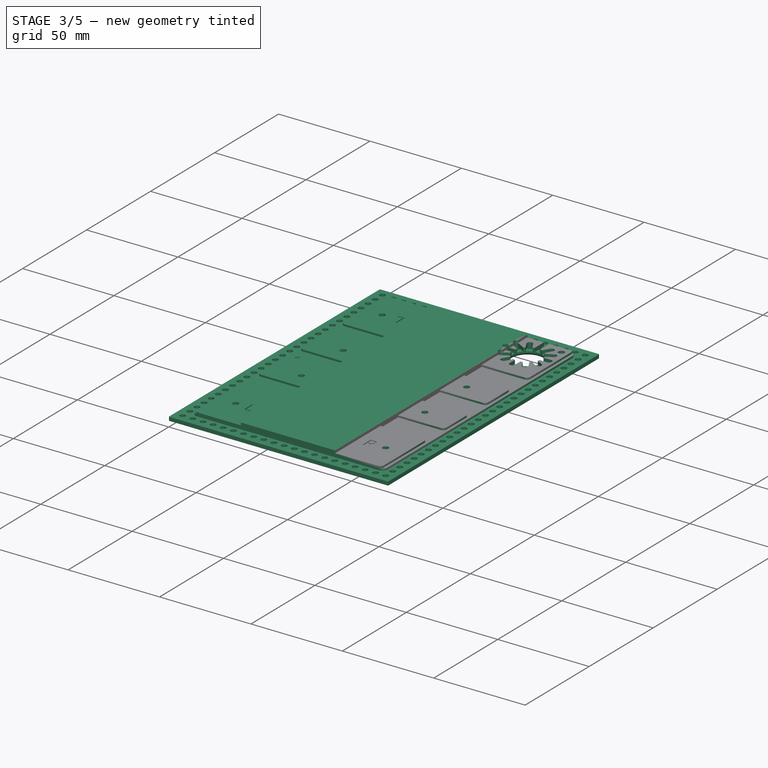
[diagram: stage 3 of 5 — iso view after this stage's code; geometry added in this stage tinted green]
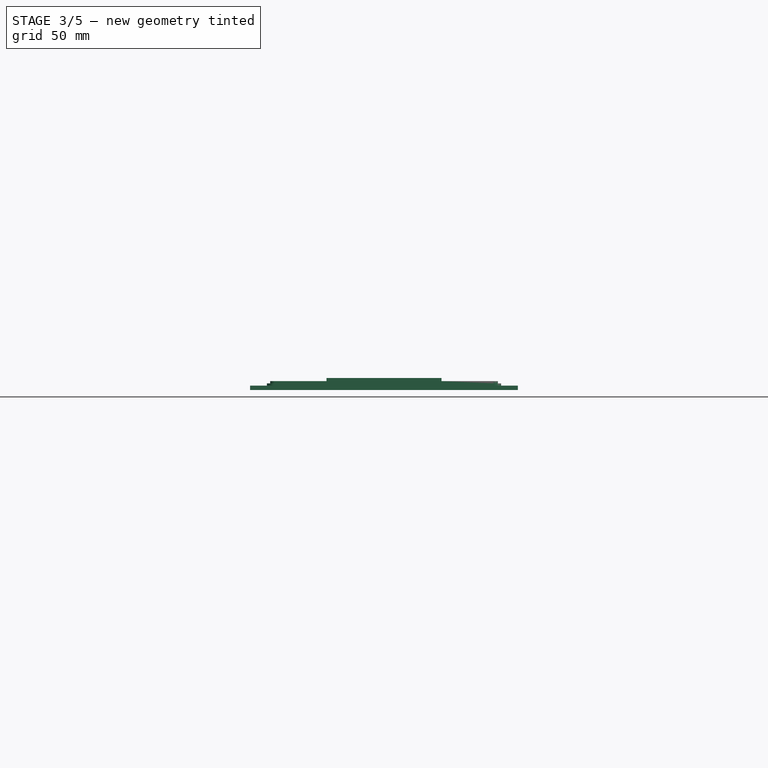
[diagram: stage 3 of 5 — front view after this stage's code; geometry added in this stage tinted green]
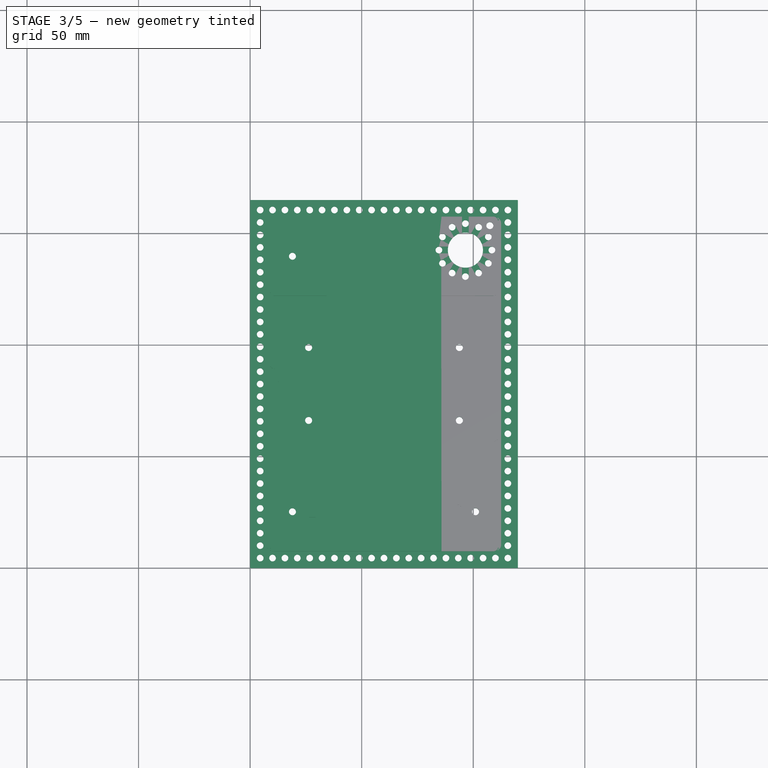
[diagram: stage 3 of 5 — top view after this stage's code; geometry added in this stage tinted green]
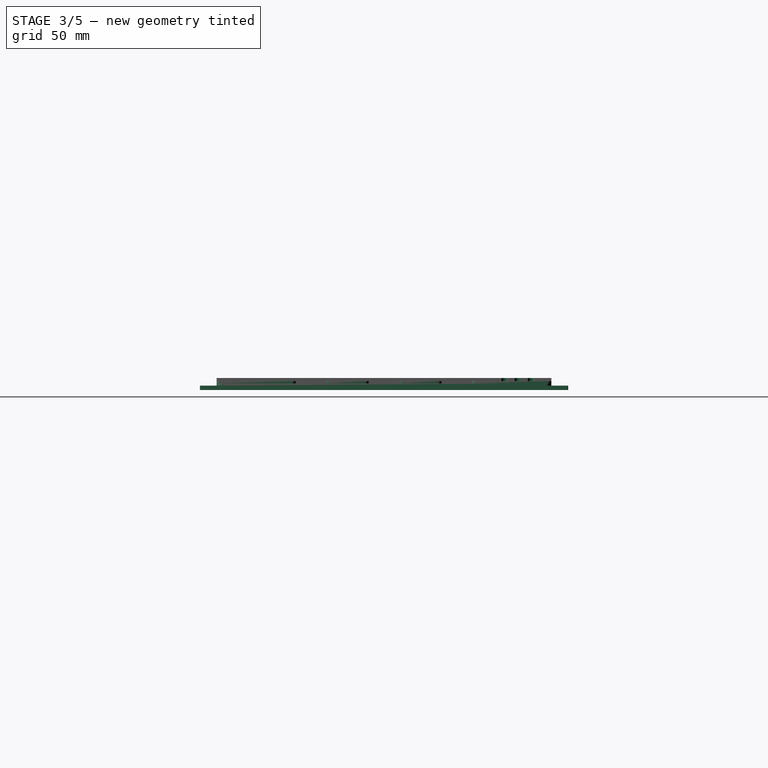
[diagram: stage 3 of 5 — right view after this stage's code; geometry added in this stage tinted green]
FEATURE [PartDesign::Body] Body021  label="CBC Sleep"
  BaseFeature = -> Body014
  Group = -> [Clone016,ShapeString011,Pocket062]
  Origin = -> Origin027
  Tip = -> Pocket062
FEATURE [Part::Part2DObjectPython] ShapeString025  label="C2e R Top001"  # Draft 2D object (typed FeaturePython)
  FontFile = <path> Bit Git Repro/16BitVirtualStudiosDesigns/Font/OpenSans-Regular.ttf
  MakeFace = true
  Placement = pos=(107.425,79.35,-8) rot=(0,1,0;3.14159rad)
  Size = 8
  String = CBC
  Tracking = 0
FEATURE [Part::Part2DObjectPython] ShapeString026  label="C2e L Top001"  # Draft 2D object (typed FeaturePython)
  FontFile = <path> Bit Git Repro/16BitVirtualStudiosDesigns/Font/OpenSans-Regular.ttf
  MakeFace = true
  Placement = pos=(29.625,79.35,-8) rot=(0,1,0;3.14159rad)
  Size = 8
  String = CBC
  Tracking = 0
FEATURE [Sketcher::SketchObject] Sketch061
  ExternalGeometry = -> [Pad013]
  FullyConstrained = true
  MapMode = 5
  Placement = pos=(117.2,0,0) rot=(0.57735,0.57735,0.57735;2.0944rad)
  Support = -> [Pad013]
  sketch-geometry (16):
    g0: LineSegment StartX=148.462 StartY=15.9 StartZ=0 EndX=143.462 EndY=15.9 EndZ=0
    g1: LineSegment StartX=21.0127 StartY=15.9 StartZ=0 EndX=26.0127 EndY=15.9 EndZ=0
    g2: LineSegment StartX=26.0127 StartY=15.9 StartZ=0 EndX=36.5127 EndY=5.4 EndZ=0
    g3: LineSegment StartX=36.5127 StartY=5.4 StartZ=0 EndX=37.6441 EndY=5.4 EndZ=0
    g4: LineSegment StartX=143.462 StartY=15.9 StartZ=0 EndX=132.962 EndY=5.4 EndZ=0
    g5: LineSegment StartX=132.962 StartY=5.4 StartZ=0 EndX=131.831 EndY=5.4 EndZ=0
    g6: LineSegment StartX=37.6441 StartY=5.4 StartZ=0 EndX=26.5784 EndY=16.4657 EndZ=0
    g7: LineSegment StartX=26.5784 StartY=16.4657 StartZ=0 EndX=26.0127 EndY=15.9 EndZ=0
    g8: LineSegment StartX=131.831 StartY=5.4 StartZ=0 EndX=142.897 EndY=16.4657 EndZ=0
    g9: LineSegment StartX=142.897 StartY=16.4657 StartZ=0 EndX=143.462 EndY=15.9 EndZ=0
    g10: LineSegment StartX=26.0127 StartY=15.9 StartZ=0 EndX=143.462 EndY=15.9 EndZ=0
    g11: LineSegment StartX=21.0127 StartY=14.7 StartZ=0 EndX=28.3441 EndY=14.7 EndZ=0
    g12: LineSegment StartX=148.462 StartY=14.7 StartZ=0 EndX=141.131 EndY=14.7 EndZ=0
    g13: LineSegment StartX=28.3441 StartY=14.7 StartZ=0 EndX=141.131 EndY=14.7 EndZ=0
    g14: LineSegment StartX=141.131 StartY=14.7 StartZ=0 EndX=131.831 EndY=5.4 EndZ=0
    g15: LineSegment StartX=28.3441 StartY=14.7 StartZ=0 EndX=37.6441 EndY=5.4 EndZ=0
  constraints (42):
    c: Coincident(g0,g-4)
    c: Horizontal(g0)
    c: Coincident(g1,g-3)
    c: Horizontal(g1)
    c: Coincident(g2,g1)
    c: PointOnObject(g2,g-5)
    c: Coincident(g3,g2)
    c: PointOnObject(g3,g-5)
    c: Coincident(g4,g0)
    c: PointOnObject(g4,g-5)
    c: Coincident(g5,g4)
    c: PointOnObject(g5,g-5)
    c: Coincident(g6,g3)
    c: Coincident(g7,g6)
    c: Coincident(g7,g2)
    c: Coincident(g8,g5)
    c: Coincident(g9,g8)
    c: Coincident(g9,g4)
    c: Coincident(g10,g2)
    c: Coincident(g10,g4)
    c: Perpendicular(g7,g2)
    c: Perpendicular(g9,g4)
    c: Perpendicular(g6,g7)
    c: Perpendicular(g9,g8)
    c: Coincident(g11,g-3)
    c: PointOnObject(g11,g6)
    c: Horizontal(g11)
    c: Coincident(g12,g-4)
    c: PointOnObject(g12,g8)
    c: Coincident(g13,g11)
    c: Coincident(g13,g12)
    c: Horizontal(g13)
    c: Coincident(g14,g13)
    c: Coincident(g14,g5)
    c: Coincident(g15,g13)
    c: Coincident(g15,g3)
    c: Angle(g11,g2) = 2.35619
    c: Angle(g4,g12) = 2.35619
    c: Equal(g1,g0)
    c: Distance(g1) = 5
    c: Distance(g9) = 0.8
    c: Equal(g7,g9)
FEATURE [PartDesign::Pocket] Pocket114
  BaseFeature = -> Pad013
  Direction = (-1,0,0)
  Length = 5
  Length2 = 5
  Profile = -> Sketch061
  ReferenceAxis = -> Sketch061 [N_Axis]
  Type = 0
FEATURE [Sketcher::SketchObject] Sketch062
  ExternalGeometry = -> [Pocket114]
  FullyConstrained = true
  MapMode = 5
  Placement = pos=(0,1.3,0) rot=(1,0,0;1.5708rad)
  Support = -> [Pocket114]
  sketch-geometry (7):
    g0: LineSegment StartX=114.4 StartY=15.9 StartZ=0 EndX=109.4 EndY=15.9 EndZ=0
    g1: LineSegment StartX=85.775 StartY=5.4 StartZ=0 EndX=90.775 EndY=5.4 EndZ=0
    g2: ArcOfCircle CenterX=90.775 CenterY=20.0307 CenterZ=0 NormalX=0 NormalY=0 NormalZ=1 AngleXU=0 Radius=14.6307 StartAngle=4.71239 EndAngle=5.91025
    g3: ArcOfCircle CenterX=109.4 CenterY=4.88333 CenterZ=0 NormalX=0 NormalY=0 NormalZ=1 AngleXU=0 Radius=11.0167 StartAngle=1.5708 EndAngle=2.04189
    g4: LineSegment StartX=114.4 StartY=14.7 StartZ=0 EndX=104.4 EndY=14.7 EndZ=0
    g5: LineSegment StartX=85.775 StartY=5.4 StartZ=0 EndX=85.775 EndY=15.9 EndZ=0
    g6: LineSegment StartX=85.775 StartY=15.9 StartZ=0 EndX=109.4 EndY=15.9 EndZ=0
  constraints (18):
    c: Coincident(g0,g-3)
    c: Horizontal(g0)
    c: Distance(g0) = 5
    c: Coincident(g1,g-4)
    c: PointOnObject(g1,g-4)
    c: Equal(g1,g0)
    c: Coincident(g3,g2)
    c: Coincident(g3,g0)
    c: Coincident(g4,g-3)
    c: Coincident(g4,g2)
    c: Horizontal(g4)
    c: DistanceX(g2,g3) = 5
    c: Coincident(g5,g1)
    c: Vertical(g5)
    c: Coincident(g6,g5)
    c: Horizontal(g6)
    c: Tangent(g6,g3) = 1.5708
    c: Tangent(g2,g1) = -1.5708
FEATURE [PartDesign::Pocket] Pocket115
  BaseFeature = -> Pocket114
  Direction = (0,1,-2e-16)
  Length = 5
  Length2 = 5
  Profile = -> Sketch062
  ReferenceAxis = -> Sketch062 [N_Axis]
  Refine = true
  Type = 1
FEATURE [PartDesign::Fillet] Fillet008
  Base = -> Pocket115 [Edge26,Edge44]
  BaseFeature = -> Pocket115
  Radius = 2
  SupportTransform = false
  UseAllEdges = false
FEATURE [PartDesign::Body] Body020  label="CBC Arm L"
  BaseFeature = -> Part__Mirroring001
  Group = -> [Clone015,ShapeString014,ShapeString015,Pocket058,Pocket059,ShapeString026,Pocket113]
  Origin = -> Origin026
  Tip = -> Pocket113
FEATURE [PartDesign::Pocket] Pocket116
  BaseFeature = -> Fillet008
  Direction = (0,0,1)
  Length = 5
  Length2 = 5
  Profile = -> Sketch048
  ReferenceAxis = -> Sketch048 [N_Axis]
  Type = 1
FEATURE [PartDesign::ShapeBinder] ShapeBinder009
  Support = -> [Pocket116]
  TraceSupport = false
FEATURE [Sketcher::SketchObject] Sketch049
  ExternalGeometry = -> [ShapeBinder009]
  FullyConstrained = true
  MapMode = 5
  Placement = pos=(-2e-16,1e-16,5.4) rot=(0,0,1;0rad)
  Support = -> [ShapeBinder009]
  sketch-geometry (1):
    g0: Circle CenterX=96.475 CenterY=142.525 CenterZ=0 NormalX=0 NormalY=0 NormalZ=1 AngleXU=0 Radius=7.875
  constraints (2):
    c: Coincident(g0,g-3)
    c: Equal(g0,g-3)
FEATURE [PartDesign::Pocket] Pocket045
  BaseFeature = -> Clone009
  Direction = (0,0,-1)
  Length = 100
  Length2 = 5
  Profile = -> Sketch049
  ReferenceAxis = -> Sketch049 [N_Axis]
  Type = 0
FEATURE [PartDesign::Chamfer] Chamfer004
  Angle = 45
  Base = -> Pocket045 [Edge360]
  BaseFeature = -> Pocket045
  ChamferType = 0
  FlipDirection = false
  Size = 1
  Size2 = 1
  SupportTransform = false
  UseAllEdges = false
FEATURE [Sketcher::SketchObject] Sketch050
  ExternalGeometry = -> [Chamfer004]
  FullyConstrained = true
  MapMode = 5
  Placement = pos=(0,0,0) rot=(1,0,0;3.14159rad)
  Support = -> [Chamfer004]
  sketch-geometry (2):
    g0: LineSegment StartX=96.475 StartY=-133.65 StartZ=0 EndX=96.475 EndY=-132.15 EndZ=0
    g1: Circle CenterX=96.475 CenterY=-130.65 CenterZ=0 NormalX=0 NormalY=0 NormalZ=1 AngleXU=0 Radius=1.5
  constraints (7):
    c: PointOnObject(g0,g-3)
    c: Vertical(g0)
    c: PointOnObject(g0,g1)
    c: Perpendicular(g1,g0)
    c: Perpendicular(g-3,g0)
    c: Distance(g0) = 1.5
    c: Equal(g1,g-4)
FEATURE [PartDesign::Pocket] Pocket046
  BaseFeature = -> Chamfer004
  Direction = (0,0,1)
  Length = 100
  Length2 = 5
  Profile = -> Sketch050
  ReferenceAxis = -> Sketch050 [N_Axis]
  Type = 0
FEATURE [PartDesign::PolarPattern] PolarPattern001
  Angle = 360
  Axis = -> Pocket046 [Edge422]
  BaseFeature = -> Pocket046
  Occurrences = 12
  Originals = -> [Pocket046]
FEATURE [Sketcher::SketchObject] Sketch051
  ExternalGeometry = -> [PolarPattern001]
  FullyConstrained = true
  MapMode = 5
  Placement = pos=(0,0,5.4) rot=(0,0,1;0rad)
  Support = -> [PolarPattern001]
  sketch-geometry (6):
    g0: ArcOfCircle CenterX=96.475 CenterY=142.525 CenterZ=0 NormalX=0 NormalY=0 NormalZ=1 AngleXU=0 Radius=7.875 StartAngle=2.94995 EndAngle=3.33324
    g1: ArcOfCircle CenterX=84.6 CenterY=142.525 CenterZ=0 NormalX=0 NormalY=0 NormalZ=1 AngleXU=0 Radius=1.5 StartAngle=1.5708 EndAngle=4.71239
    g2: LineSegment StartX=84.6 StartY=144.025 StartZ=0 EndX=88.7442 EndY=144.025 EndZ=0
    g3: LineSegment StartX=84.6 StartY=141.025 StartZ=0 EndX=88.7442 EndY=141.025 EndZ=0
    g4: LineSegment StartX=84.6 StartY=144.025 StartZ=0 EndX=84.6 EndY=141.025 EndZ=0
    g5: LineSegment StartX=88.7442 StartY=144.025 StartZ=0 EndX=88.7442 EndY=141.025 EndZ=0
  constraints (15):
    c: PointOnObject(g0,g-3)
    c: Coincident(g0,g-3)
    c: PointOnObject(g1,g-4)
    c: Coincident(g2,g1)
    c: Perpendicular(g2,g4)
    c: Coincident(g1,g4)
    c: Perpendicular(g1,g4)
    c: Coincident(g2,g0)
    c: Coincident(g0,g3)
    c: Coincident(g1,g4)
    c: Tangent(g1,g3) = -1.5708
    c: Coincident(g5,g0)
    c: Coincident(g5,g0)
    c: Perpendicular(g5,g2)
    c: Coincident(g-4,g1)
FEATURE [PartDesign::Pocket] Pocket047
  BaseFeature = -> PolarPattern001
  Direction = (0,0,-1)
  Length = 0
  Length2 = 5
  Profile = -> Sketch051
  ReferenceAxis = -> Sketch051 [N_Axis]
  Refine = true
  Type = 3
  UpToFace = -> PolarPattern001 [Face126]
FEATURE [PartDesign::PolarPattern] PolarPattern002
  Angle = 360
  Axis = -> Pocket047 [Edge466]
  BaseFeature = -> Pocket047
  Occurrences = 12
  Originals = -> [Pocket047]
FEATURE [Sketcher::SketchObject] Sketch052
  ExternalGeometry = -> [PolarPattern002]
  FullyConstrained = true
  MapMode = 5
  Placement = pos=(0,0,4) rot=(0,0,1;0rad)
  Support = -> [PolarPattern002]
  sketch-geometry (5):
    g0: Circle CenterX=107.441 CenterY=153.491 CenterZ=0 NormalX=0 NormalY=0 NormalZ=1 AngleXU=0 Radius=1.575
    g1: LineSegment StartX=107.441 StartY=155.066 StartZ=0 EndX=107.441 EndY=157.5 EndZ=0
    g2: LineSegment StartX=109.016 StartY=153.491 StartZ=0 EndX=111.025 EndY=153.491 EndZ=0
    g3: LineSegment StartX=107.23 StartY=151.931 StartZ=0 EndX=106.961 EndY=149.949 EndZ=0
    g4: LineSegment StartX=105.881 StartY=153.28 StartZ=0 EndX=103.899 EndY=153.011 EndZ=0
  constraints (19):
    c: PointOnObject(g1,g0)
    c: PointOnObject(g1,g-3)
    c: PointOnObject(g2,g0)
    c: PointOnObject(g2,g-4)
    c: PointOnObject(g3,g0)
    c: PointOnObject(g3,g-5)
    c: PointOnObject(g4,g0)
    c: PointOnObject(g4,g-6)
    c: Equal(g-7,g0)
    c: Perpendicular(g-6,g4)
    c: Perpendicular(g0,g4)
    c: Perpendicular(g0,g3)
    c: Perpendicular(g-5,g3)
    c: Perpendicular(g0,g2)
    c: Perpendicular(g-4,g2)
    c: Perpendicular(g-3,g1)
    c: Perpendicular(g0,g1)
    c: Distance(g4) = 2
    c: Equal(g4,g3)
FEATURE [PartDesign::Pocket] Pocket048
  BaseFeature = -> PolarPattern002
  Direction = (0,0,-1)
  Length = 20
  Length2 = 5
  Profile = -> Sketch052
  ReferenceAxis = -> Sketch052 [N_Axis]
  Type = 0
FEATURE [Sketcher::SketchObject] Sketch053
  ExternalGeometry = -> [Pocket048]
  FullyConstrained = true
  MapMode = 5
  Placement = pos=(0,0,4) rot=(0,0,1;0rad)
  Support = -> [Pocket048]
  sketch-geometry (3):
    g0: Circle CenterX=106.328 CenterY=152.378 CenterZ=0 NormalX=0 NormalY=0 NormalZ=1 AngleXU=0 Radius=0.5
    g1: LineSegment StartX=102.03 StartY=148.08 StartZ=0 EndX=105.974 EndY=152.024 EndZ=0
    g2: LineSegment StartX=101.639 StartY=148.47 StartZ=0 EndX=102.42 EndY=147.689 EndZ=0
  constraints (8):
    c: PointOnObject(g0,g-3)
    c: PointOnObject(g1,g0)
    c: Diameter(g0) = 1
    c: Perpendicular(g0,g1)
    c: Perpendicular(g-4,g1)
    c: Coincident(g2,g-4)
    c: Coincident(g2,g-4)
    c: Symmetric(g2,g2,g1)
FEATURE [PartDesign::Pocket] Pocket049
  BaseFeature = -> Pocket048
  Direction = (0,0,-1)
  Length = 0.5
  Length2 = 5
  Profile = -> Sketch053
  ReferenceAxis = -> Sketch053 [N_Axis]
  Type = 0
FEATURE [Sketcher::SketchObject] Sketch058
  ExternalGeometry = -> [Pocket049]
  FullyConstrained = true
  MapMode = 5
  Placement = pos=(0,0,2) rot=(0,0,1;0rad)
  Support = -> [Pocket049]
  sketch-geometry (4):
    g0: LineSegment StartX=97.975 StartY=154.4 StartZ=0 EndX=94.975 EndY=154.4 EndZ=0
    g1: LineSegment StartX=94.975 StartY=154.4 StartZ=0 EndX=94.975 EndY=157.5 EndZ=0
    g2: LineSegment StartX=94.975 StartY=157.5 StartZ=0 EndX=97.975 EndY=157.5 EndZ=0
    g3: LineSegment StartX=97.975 StartY=157.5 StartZ=0 EndX=97.975 EndY=154.4 EndZ=0
  constraints (10):
    c: Coincident(g0,g1)
    c: Coincident(g1,g2)
    c: Coincident(g2,g3)
    c: Coincident(g3,g0)
    c: Horizontal(g2)
    c: Vertical(g1)
    c: Vertical(g3)
    c: Coincident(g0,g-3)
    c: PointOnObject(g1,g-4)
    c: Coincident(g-3,g0)
FEATURE [PartDesign::Pocket] Pocket054
  BaseFeature = -> Pocket049
  Direction = (0,0,-1)
  Length = 5
  Length2 = 5
  Profile = -> Sketch058
  ReferenceAxis = -> Sketch058 [N_Axis]
  Refine = true
  Reversed = true
  Type = 0
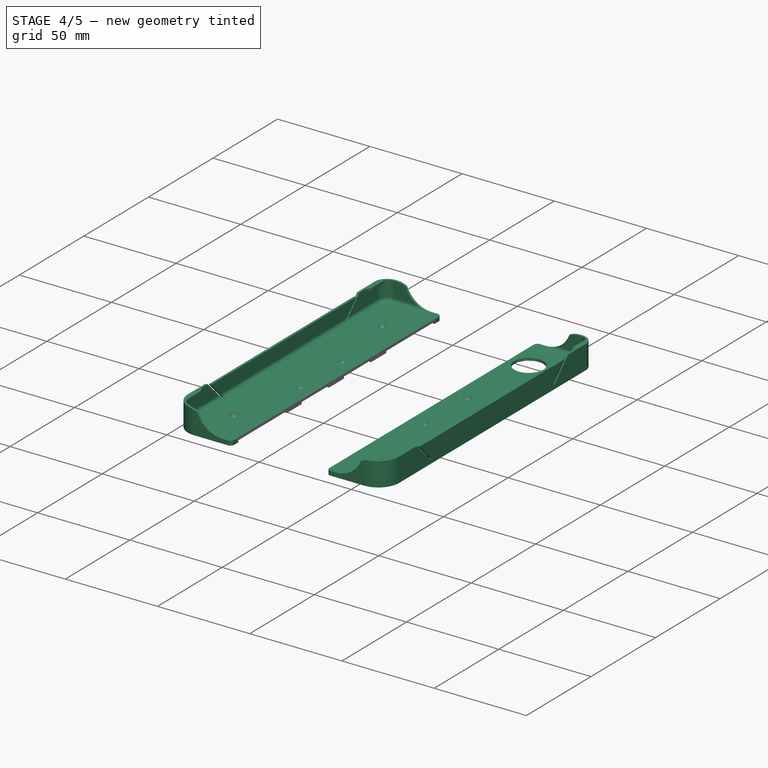
[diagram: stage 4 of 5 — iso view after this stage's code; geometry added in this stage tinted green]
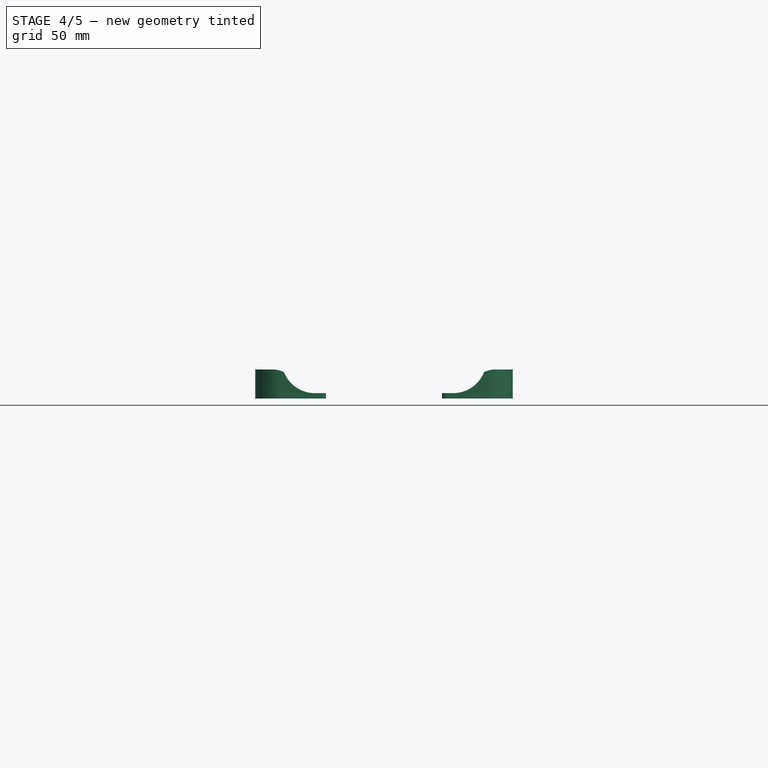
[diagram: stage 4 of 5 — front view after this stage's code; geometry added in this stage tinted green]
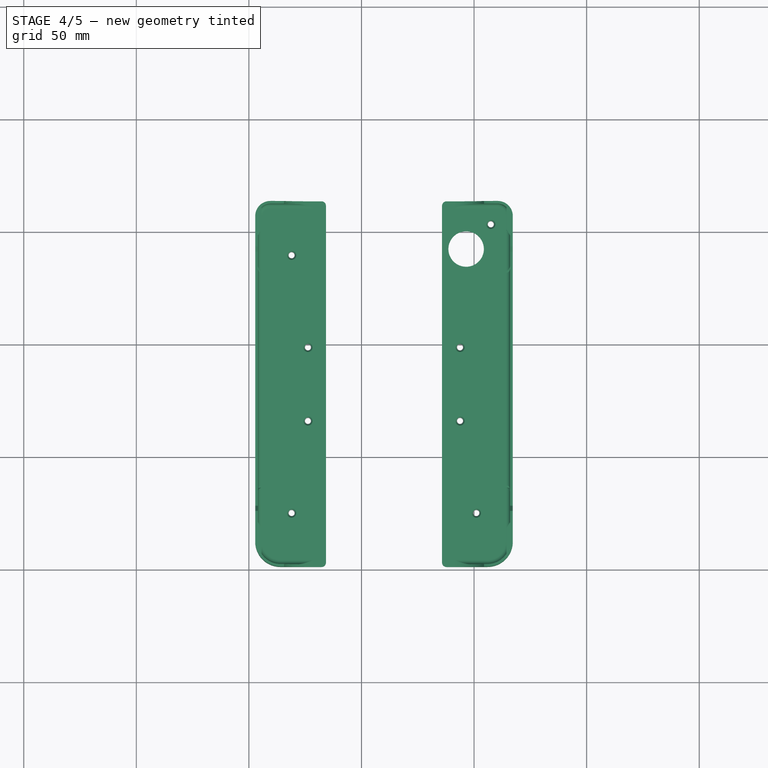
[diagram: stage 4 of 5 — top view after this stage's code; geometry added in this stage tinted green]
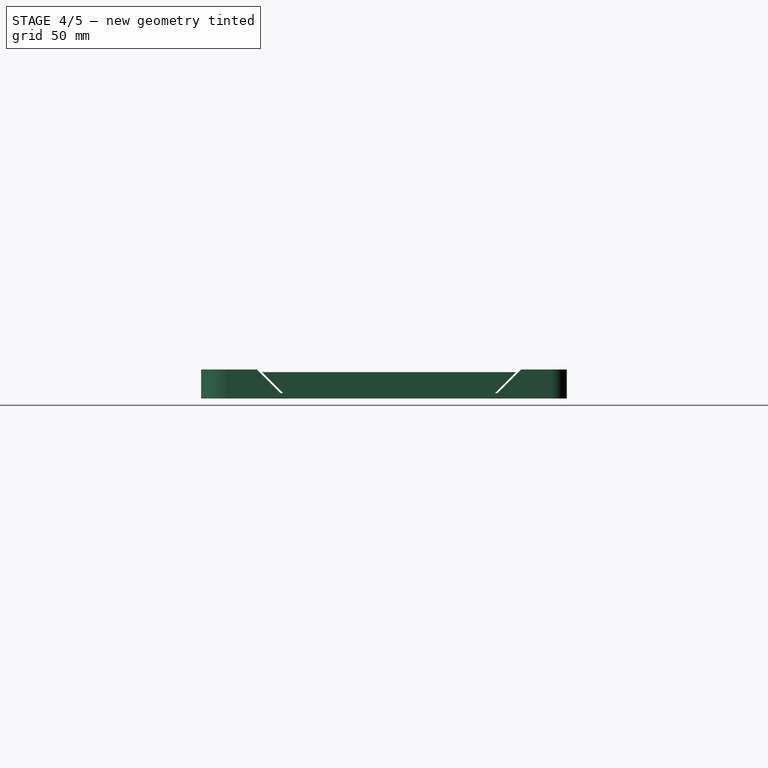
[diagram: stage 4 of 5 — right view after this stage's code; geometry added in this stage tinted green]
FEATURE [Part::Mirroring] Part__Mirroring001  label="CBC Arm L Base"
  Base = (0,0,0)
  Normal = (1,0,0)
  Placement = pos=(120,0,0) rot=(0,0,1;0rad)
  Source = -> Fillet008
FEATURE [PartDesign::FeatureBase] Clone015
  BaseFeature = -> Part__Mirroring001
  Placement = pos=(120,0,0) rot=(0,0,1;0rad)
FEATURE [PartDesign::Pocket] Pocket058
  BaseFeature = -> Clone015
  Direction = (0,0,1)
  Length = 0
  Length2 = 5
  Offset = 0.2
  Placement = pos=(120,0,0) rot=(0,0,1;0rad)
  Profile = -> ShapeString014
  ReferenceAxis = -> ShapeString014 [N_Axis]
  Type = 3
  UpToFace = -> Clone015 [Face5]
FEATURE [PartDesign::Pocket] Pocket059
  BaseFeature = -> Pocket058
  Direction = (0,0,1)
  Length = 0
  Length2 = 5
  Offset = 0.2
  Placement = pos=(120,0,0) rot=(0,0,1;0rad)
  Profile = -> ShapeString015
  ReferenceAxis = -> ShapeString015 [N_Axis]
  Type = 3
  UpToFace = -> Pocket058 [Face5]
FEATURE [PartDesign::Pocket] Pocket113
  BaseFeature = -> Pocket059
  Direction = (-1e-16,0,1)
  Length = 0
  Length2 = 5
  Offset = 0.5
  Placement = pos=(120,0,0) rot=(0,0,1;0rad)
  Profile = -> ShapeString026
  ReferenceAxis = -> ShapeString026 [N_Axis]
  Type = 3
  UpToFace = -> Pocket059 [Face5]
FEATURE [PartDesign::Fillet] Fillet007
  Base = -> Pocket054 [Edge632,Edge634]
  BaseFeature = -> Pocket054
  Radius = 1.5
  Refine = true
  SupportTransform = false
  UseAllEdges = false
FEATURE [PartDesign::Body] Body018  label="Clara 2e Back"
  BaseFeature = -> Body013
  Group = -> [Clone013,Sketch036,Pocket055]
  Origin = -> Origin024
  Tip = -> Pocket055
FEATURE [PartDesign::ShapeBinder] ShapeBinder010
  Support = -> [Fillet007]
  TraceSupport = false
FEATURE [Sketcher::SketchObject] Sketch063
  ExternalGeometry = -> [ShapeBinder010,Pocket116]
  FullyConstrained = true
  MapMode = 5
  Placement = pos=(-2e-16,1e-16,5.4) rot=(0,0,1;0rad)
  Support = -> [Pocket116]
  sketch-geometry (1):
    g0: Circle CenterX=107.441 CenterY=153.491 CenterZ=0 NormalX=0 NormalY=0 NormalZ=1 AngleXU=0 Radius=1.3
  constraints (2):
    c: Equal(g0,g-4)
    c: Coincident(g-3,g0)
FEATURE [PartDesign::Pocket] Pocket117
  BaseFeature = -> Pocket116
  Direction = (0,0,-1)
  Length = 5
  Length2 = 5
  Profile = -> Sketch063
  ReferenceAxis = -> Sketch063 [N_Axis]
  Type = 0
FEATURE [Sketcher::SketchObject] Sketch064
  ExternalGeometry = -> [Pocket117]
  FullyConstrained = true
  MapMode = 5
  Placement = pos=(-2e-16,1e-16,5.4) rot=(0,0,1;0rad)
  Support = -> [Pocket117]
  sketch-geometry (1):
    g0: Circle CenterX=107.441 CenterY=153.491 CenterZ=0 NormalX=0 NormalY=0 NormalZ=1 AngleXU=0 Radius=2.05
  constraints (2):
    c: Coincident(g0,g-3)
    c: Equal(g0,g-4)
FEATURE [PartDesign::Pocket] Pocket118
  BaseFeature = -> Pocket117
  Direction = (0,0,-1)
  Length = 1
  Length2 = 5
  Profile = -> Sketch064
  ReferenceAxis = -> Sketch064 [N_Axis]
  Type = 0
FEATURE [PartDesign::Chamfer] Chamfer005
  Angle = 45
  Base = -> Pocket118 [Edge160]
  BaseFeature = -> Pocket118
  ChamferType = 1
  FlipDirection = false
  Size = 0.99
  Size2 = 0.74
  SupportTransform = false
  UseAllEdges = false
FEATURE [PartDesign::Body] Body015  label="CBC Arm R Base"
  Group = -> [ShapeBinder007,Sketch037,Pad011,Sketch038,Pocket032,Sketch039,Pocket033,Sketch040,Pocket034,Chamfer003,Sketch041,Pocket035,Sketch042,Pad012,Fillet004,Sketch044,Pad013,Sketch048,Sketch061,Pocket114,Sketch062,Pocket115,Fillet008,Pocket116,ShapeBinder010,Sketch063,Pocket117,Sketch064,Pocket118,Chamfer005]
  Origin = -> Origin020
  Tip = -> Chamfer005
FEATURE [PartDesign::FeatureBase] Clone014
  BaseFeature = -> Body015
FEATURE [PartDesign::Pocket] Pocket056
  BaseFeature = -> Clone014
  Direction = (0,0,1)
  Length = 0
  Length2 = 5
  Offset = 0.2
  Profile = -> ShapeString012
  ReferenceAxis = -> ShapeString012 [N_Axis]
  Type = 3
  UpToFace = -> Clone014 [Face29]
FEATURE [PartDesign::Pocket] Pocket057
  BaseFeature = -> Pocket056
  Direction = (0,0,1)
  Length = 0
  Length2 = 5
  Offset = 0.2
  Profile = -> ShapeString013
  ReferenceAxis = -> ShapeString013 [N_Axis]
  Type = 3
  UpToFace = -> Pocket056 [Face29]
FEATURE [PartDesign::Pocket] Pocket112
  BaseFeature = -> Pocket057
  Direction = (-1e-16,0,1)
  Length = 0
  Length2 = 5
  Offset = 0.5
  Profile = -> ShapeString025
  ReferenceAxis = -> ShapeString025 [N_Axis]
  Type = 3
  UpToFace = -> Pocket057 [Face29]
FEATURE [PartDesign::Body] Body019  label="CBC Arm R"
  BaseFeature = -> Body015
  Group = -> [Clone014,ShapeString012,ShapeString013,Pocket056,Pocket057,ShapeString025,Pocket112]
  Origin = -> Origin025
  Tip = -> Pocket112
FEATURE [App::Part] Part003  label="Clara 2e-"
  Group = -> [Body018,Body019,Body020,Body021]
  Origin = -> Origin023
FEATURE [App::DocumentObjectGroup] Group003  label="Kobo Clara BW + Color"
  Group = -> [Body013,Body014,Body015,Part__Mirroring001,Part003]
note: 3 file-system paths scrubbed to <path> (originals preserved in the JSON sidecar)
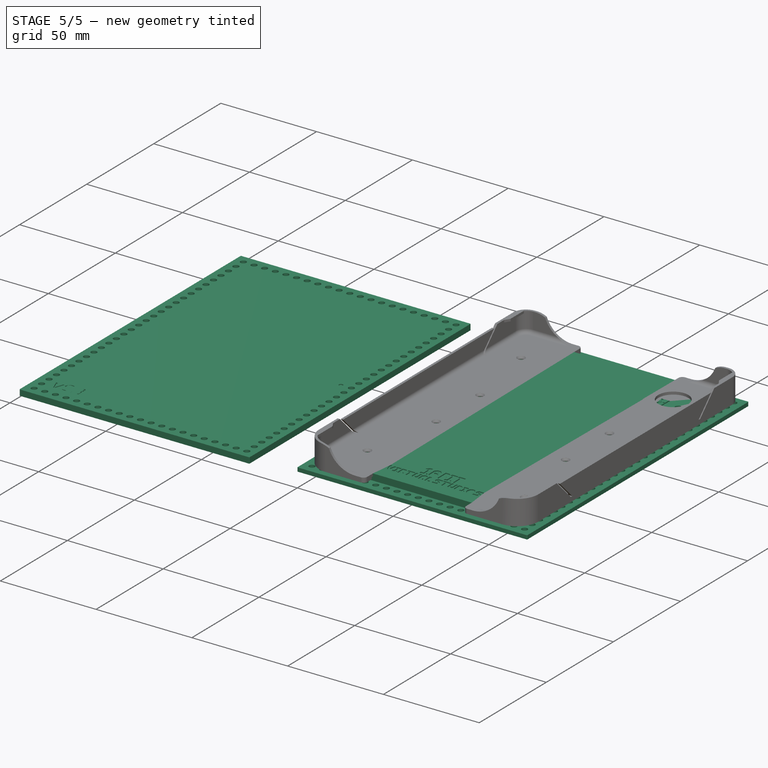
[diagram: stage 5 of 5 — iso view after this stage's code; geometry added in this stage tinted green]
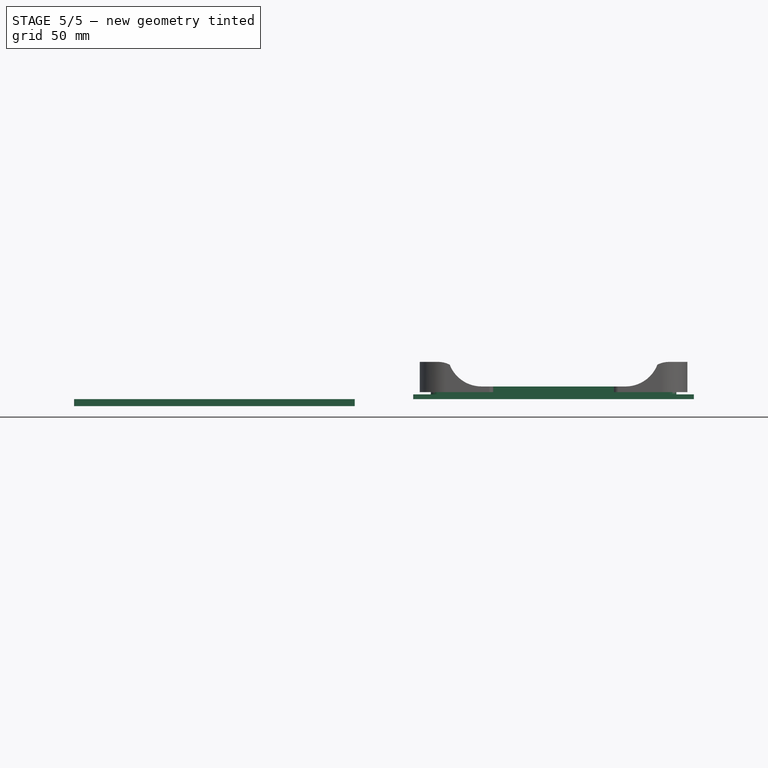
[diagram: stage 5 of 5 — front view after this stage's code; geometry added in this stage tinted green]
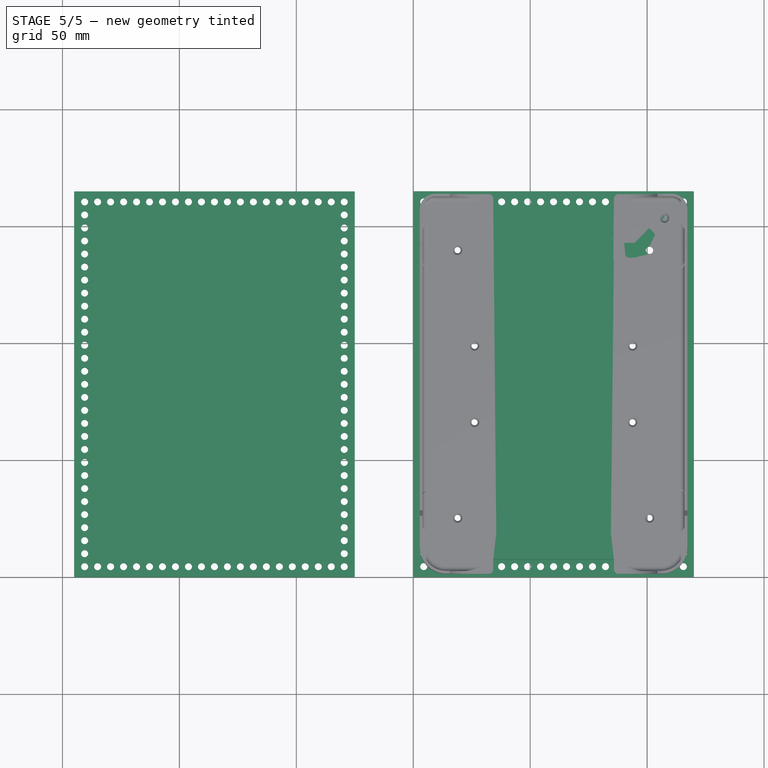
[diagram: stage 5 of 5 — top view after this stage's code; geometry added in this stage tinted green]
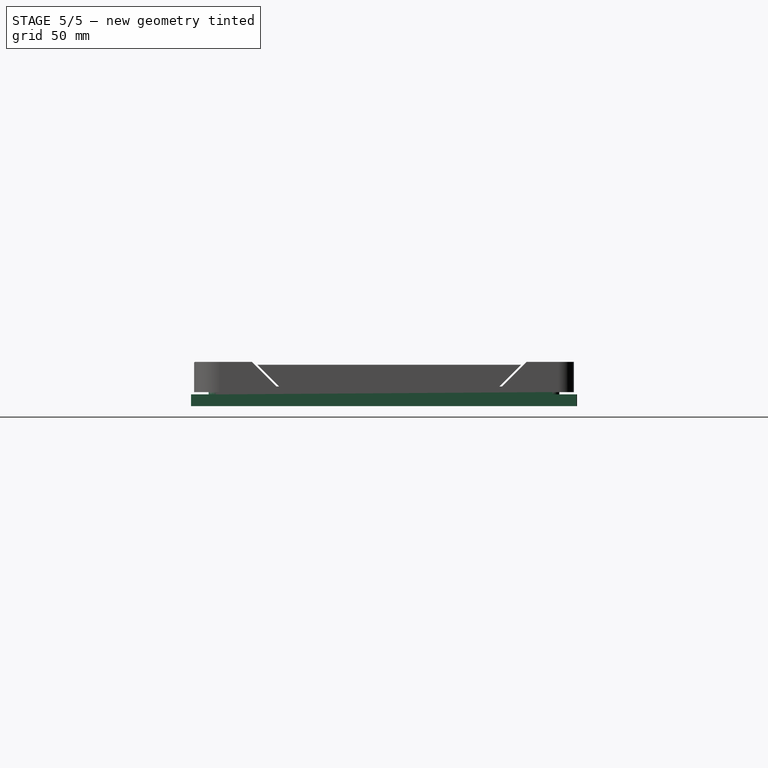
[diagram: stage 5 of 5 — right view after this stage's code; geometry added in this stage tinted green]
FEATURE [Sketcher::SketchObject] Sketch007  label="16 Bit Virtual Studios (Base)"
  FullyConstrained = false
  Placement = pos=(35.5,25.97,10.4) rot=(0,0,1;0rad)
  sketch-geometry (860):
    g0: BSplineCurve PolesCount=2 KnotsCount=2 Degree=1 IsPeriodic=0
    g1: BSplineCurve PolesCount=2 KnotsCount=2 Degree=1 IsPeriodic=0
    g2: BSplineCurve PolesCount=2 KnotsCount=2 Degree=1 IsPeriodic=0
    g3: BSplineCurve PolesCount=2 KnotsCount=2 Degree=1 IsPeriodic=0
    g4: BSplineCurve PolesCount=2 KnotsCount=2 Degree=1 IsPeriodic=0
    g5: BSplineCurve PolesCount=2 KnotsCount=2 Degree=1 IsPeriodic=0
    g6: BSplineCurve PolesCount=2 KnotsCount=2 Degree=1 IsPeriodic=0
    g7: BSplineCurve PolesCount=2 KnotsCount=2 Degree=1 IsPeriodic=0
    g8: BSplineCurve PolesCount=2 KnotsCount=2 Degree=1 IsPeriodic=0
    g9: BSplineCurve PolesCount=2 KnotsCount=2 Degree=1 IsPeriodic=0
    g10: BSplineCurve PolesCount=2 KnotsCount=2 Degree=1 IsPeriodic=0
    g11: BSplineCurve PolesCount=2 KnotsCount=2 Degree=1 IsPeriodic=0
    g12: BSplineCurve PolesCount=2 KnotsCount=2 Degree=1 IsPeriodic=0
    g13: BSplineCurve PolesCount=2 KnotsCount=2 Degree=1 IsPeriodic=0
    g14: BSplineCurve PolesCount=2 KnotsCount=2 Degree=1 IsPeriodic=0
    g15: BSplineCurve PolesCount=2 KnotsCount=2 Degree=1 IsPeriodic=0
    g16: BSplineCurve PolesCount=2 KnotsCount=2 Degree=1 IsPeriodic=0
    g17: BSplineCurve PolesCount=2 KnotsCount=2 Degree=1 IsPeriodic=0
    g18: BSplineCurve PolesCount=2 KnotsCount=2 Degree=1 IsPeriodic=0
    g19: BSplineCurve PolesCount=2 KnotsCount=2 Degree=1 IsPeriodic=0
    g20: BSplineCurve PolesCount=2 KnotsCount=2 Degree=1 IsPeriodic=0
    g21: BSplineCurve PolesCount=2 KnotsCount=2 Degree=1 IsPeriodic=0
    g22: BSplineCurve PolesCount=2 KnotsCount=2 Degree=1 IsPeriodic=0
    g23: BSplineCurve PolesCount=2 KnotsCount=2 Degree=1 IsPeriodic=0
    g24: BSplineCurve PolesCount=2 KnotsCount=2 Degree=1 IsPeriodic=0
    g25: BSplineCurve PolesCount=2 KnotsCount=2 Degree=1 IsPeriodic=0
    g26: BSplineCurve PolesCount=2 KnotsCount=2 Degree=1 IsPeriodic=0
    g27: BSplineCurve PolesCount=2 KnotsCount=2 Degree=1 IsPeriodic=0
    g28: BSplineCurve PolesCount=2 KnotsCount=2 Degree=1 IsPeriodic=0
    g29: BSplineCurve PolesCount=2 KnotsCount=2 Degree=1 IsPeriodic=0
    g30: BSplineCurve PolesCount=2 KnotsCount=2 Degree=1 IsPeriodic=0
    g31: BSplineCurve PolesCount=2 KnotsCount=2 Degree=1 IsPeriodic=0
    g32: BSplineCurve PolesCount=2 KnotsCount=2 Degree=1 IsPeriodic=0
    g33: BSplineCurve PolesCount=2 KnotsCount=2 Degree=1 IsPeriodic=0
    g34: BSplineCurve PolesCount=2 KnotsCount=2 Degree=1 IsPeriodic=0
    g35: BSplineCurve PolesCount=2 KnotsCount=2 Degree=1 IsPeriodic=0
    g36: BSplineCurve PolesCount=2 KnotsCount=2 Degree=1 IsPeriodic=0
    g37: BSplineCurve PolesCount=2 KnotsCount=2 Degree=1 IsPeriodic=0
    g38: BSplineCurve PolesCount=2 KnotsCount=2 Degree=1 IsPeriodic=0
    g39: BSplineCurve PolesCount=2 KnotsCount=2 Degree=1 IsPeriodic=0
    g40: BSplineCurve PolesCount=2 KnotsCount=2 Degree=1 IsPeriodic=0
    g41: BSplineCurve PolesCount=2 KnotsCount=2 Degree=1 IsPeriodic=0
    g42: BSplineCurve PolesCount=2 KnotsCount=2 Degree=1 IsPeriodic=0
    g43: BSplineCurve PolesCount=2 KnotsCount=2 Degree=1 IsPeriodic=0
    g44: BSplineCurve PolesCount=2 KnotsCount=2 Degree=1 IsPeriodic=0
    g45: BSplineCurve PolesCount=2 KnotsCount=2 Degree=1 IsPeriodic=0
    g46: BSplineCurve PolesCount=2 KnotsCount=2 Degree=1 IsPeriodic=0
    g47: BSplineCurve PolesCount=2 KnotsCount=2 Degree=1 IsPeriodic=0
    g48: BSplineCurve PolesCount=2 KnotsCount=2 Degree=1 IsPeriodic=0
    g49: BSplineCurve PolesCount=2 KnotsCount=2 Degree=1 IsPeriodic=0
    g50: BSplineCurve PolesCount=2 KnotsCount=2 Degree=1 IsPeriodic=0
    g51: BSplineCurve PolesCount=2 KnotsCount=2 Degree=1 IsPeriodic=0
    g52: BSplineCurve PolesCount=2 KnotsCount=2 Degree=1 IsPeriodic=0
    g53: BSplineCurve PolesCount=2 KnotsCount=2 Degree=1 IsPeriodic=0
    g54: BSplineCurve PolesCount=2 KnotsCount=2 Degree=1 IsPeriodic=0
    g55: BSplineCurve PolesCount=2 KnotsCount=2 Degree=1 IsPeriodic=0
    g56: BSplineCurve PolesCount=2 KnotsCount=2 Degree=1 IsPeriodic=0
    g57: BSplineCurve PolesCount=2 KnotsCount=2 Degree=1 IsPeriodic=0
    g58: BSplineCurve PolesCount=2 KnotsCount=2 Degree=1 IsPeriodic=0
    g59: BSplineCurve PolesCount=2 KnotsCount=2 Degree=1 IsPeriodic=0
    g60: BSplineCurve PolesCount=2 KnotsCount=2 Degree=1 IsPeriodic=0
    g61: BSplineCurve PolesCount=2 KnotsCount=2 Degree=1 IsPeriodic=0
    g62: BSplineCurve PolesCount=2 KnotsCount=2 Degree=1 IsPeriodic=0
    g63: BSplineCurve PolesCount=2 KnotsCount=2 Degree=1 IsPeriodic=0
    g64: BSplineCurve PolesCount=2 KnotsCount=2 Degree=1 IsPeriodic=0
    g65: BSplineCurve PolesCount=2 KnotsCount=2 Degree=1 IsPeriodic=0
    g66: BSplineCurve PolesCount=2 KnotsCount=2 Degree=1 IsPeriodic=0
    g67: BSplineCurve PolesCount=2 KnotsCount=2 Degree=1 IsPeriodic=0
    g68: BSplineCurve PolesCount=2 KnotsCount=2 Degree=1 IsPeriodic=0
    g69: BSplineCurve PolesCount=2 KnotsCount=2 Degree=1 IsPeriodic=0
    g70: BSplineCurve PolesCount=2 KnotsCount=2 Degree=1 IsPeriodic=0
    g71: BSplineCurve PolesCount=2 KnotsCount=2 Degree=1 IsPeriodic=0
    g72: BSplineCurve PolesCount=2 KnotsCount=2 Degree=1 IsPeriodic=0
    g73: BSplineCurve PolesCount=2 KnotsCount=2 Degree=1 IsPeriodic=0
    g74: BSplineCurve PolesCount=2 KnotsCount=2 Degree=1 IsPeriodic=0
    g75: BSplineCurve PolesCount=2 KnotsCount=2 Degree=1 IsPeriodic=0
    g76: BSplineCurve PolesCount=2 KnotsCount=2 Degree=1 IsPeriodic=0
    g77: BSplineCurve PolesCount=2 KnotsCount=2 Degree=1 IsPeriodic=0
    g78: BSplineCurve PolesCount=2 KnotsCount=2 Degree=1 IsPeriodic=0
    g79: BSplineCurve PolesCount=2 KnotsCount=2 Degree=1 IsPeriodic=0
    g80: BSplineCurve PolesCount=2 KnotsCount=2 Degree=1 IsPeriodic=0
    g81: BSplineCurve PolesCount=2 KnotsCount=2 Degree=1 IsPeriodic=0
    g82: BSplineCurve PolesCount=2 KnotsCount=2 Degree=1 IsPeriodic=0
    g83: BSplineCurve PolesCount=2 KnotsCount=2 Degree=1 IsPeriodic=0
    g84: BSplineCurve PolesCount=2 KnotsCount=2 Degree=1 IsPeriodic=0
    g85: BSplineCurve PolesCount=2 KnotsCount=2 Degree=1 IsPeriodic=0
    g86: BSplineCurve PolesCount=2 KnotsCount=2 Degree=1 IsPeriodic=0
    g87: BSplineCurve PolesCount=2 KnotsCount=2 Degree=1 IsPeriodic=0
    g88: BSplineCurve PolesCount=2 KnotsCount=2 Degree=1 IsPeriodic=0
    g89: BSplineCurve PolesCount=2 KnotsCount=2 Degree=1 IsPeriodic=0
    g90: BSplineCurve PolesCount=2 KnotsCount=2 Degree=1 IsPeriodic=0
    g91: BSplineCurve PolesCount=2 KnotsCount=2 Degree=1 IsPeriodic=0
    g92: BSplineCurve PolesCount=2 KnotsCount=2 Degree=1 IsPeriodic=0
    g93: BSplineCurve PolesCount=2 KnotsCount=2 Degree=1 IsPeriodic=0
    g94: BSplineCurve PolesCount=2 KnotsCount=2 Degree=1 IsPeriodic=0
    g95: BSplineCurve PolesCount=2 KnotsCount=2 Degree=1 IsPeriodic=0
    g96: BSplineCurve PolesCount=2 KnotsCount=2 Degree=1 IsPeriodic=0
    g97: BSplineCurve PolesCount=2 KnotsCount=2 Degree=1 IsPeriodic=0
    g98: BSplineCurve PolesCount=2 KnotsCount=2 Degree=1 IsPeriodic=0
    g99: BSplineCurve PolesCount=2 KnotsCount=2 Degree=1 IsPeriodic=0
    g100: BSplineCurve PolesCount=2 KnotsCount=2 Degree=1 IsPeriodic=0
    g101: BSplineCurve PolesCount=2 KnotsCount=2 Degree=1 IsPeriodic=0
    g102: BSplineCurve PolesCount=2 KnotsCount=2 Degree=1 IsPeriodic=0
    g103: BSplineCurve PolesCount=2 KnotsCount=2 Degree=1 IsPeriodic=0
    g104: BSplineCurve PolesCount=2 KnotsCount=2 Degree=1 IsPeriodic=0
    g105: BSplineCurve PolesCount=2 KnotsCount=2 Degree=1 IsPeriodic=0
    g106: BSplineCurve PolesCount=2 KnotsCount=2 Degree=1 IsPeriodic=0
    g107: BSplineCurve PolesCount=2 KnotsCount=2 Degree=1 IsPeriodic=0
    g108: BSplineCurve PolesCount=2 KnotsCount=2 Degree=1 IsPeriodic=0
    g109: BSplineCurve PolesCount=2 KnotsCount=2 Degree=1 IsPeriodic=0
    g110: BSplineCurve PolesCount=2 KnotsCount=2 Degree=1 IsPeriodic=0
    g111: BSplineCurve PolesCount=2 KnotsCount=2 Degree=1 IsPeriodic=0
    g112: BSplineCurve PolesCount=2 KnotsCount=2 Degree=1 IsPeriodic=0
    g113: BSplineCurve PolesCount=2 KnotsCount=2 Degree=1 IsPeriodic=0
    g114: BSplineCurve PolesCount=2 KnotsCount=2 Degree=1 IsPeriodic=0
    g115: BSplineCurve PolesCount=2 KnotsCount=2 Degree=1 IsPeriodic=0
    g116: BSplineCurve PolesCount=2 KnotsCount=2 Degree=1 IsPeriodic=0
    g117: BSplineCurve PolesCount=2 KnotsCount=2 Degree=1 IsPeriodic=0
    g118: BSplineCurve PolesCount=2 KnotsCount=2 Degree=1 IsPeriodic=0
    g119: BSplineCurve PolesCount=2 KnotsCount=2 Degree=1 IsPeriodic=0
    g120: BSplineCurve PolesCount=2 KnotsCount=2 Degree=1 IsPeriodic=0
    g121: BSplineCurve PolesCount=2 KnotsCount=2 Degree=1 IsPeriodic=0
    g122: BSplineCurve PolesCount=2 KnotsCount=2 Degree=1 IsPeriodic=0
    g123: BSplineCurve PolesCount=2 KnotsCount=2 Degree=1 IsPeriodic=0
    g124: BSplineCurve PolesCount=2 KnotsCount=2 Degree=1 IsPeriodic=0
    g125: BSplineCurve PolesCount=2 KnotsCount=2 Degree=1 IsPeriodic=0
    g126: BSplineCurve PolesCount=2 KnotsCount=2 Degree=1 IsPeriodic=0
    g127: BSplineCurve PolesCount=2 KnotsCount=2 Degree=1 IsPeriodic=0
    g128: BSplineCurve PolesCount=2 KnotsCount=2 Degree=1 IsPeriodic=0
    g129: BSplineCurve PolesCount=2 KnotsCount=2 Degree=1 IsPeriodic=0
    g130: BSplineCurve PolesCount=2 KnotsCount=2 Degree=1 IsPeriodic=0
    g131: BSplineCurve PolesCount=2 KnotsCount=2 Degree=1 IsPeriodic=0
    g132: BSplineCurve PolesCount=2 KnotsCount=2 Degree=1 IsPeriodic=0
    g133: BSplineCurve PolesCount=2 KnotsCount=2 Degree=1 IsPeriodic=0
    g134: BSplineCurve PolesCount=2 KnotsCount=2 Degree=1 IsPeriodic=0
    g135: BSplineCurve PolesCount=2 KnotsCount=2 Degree=1 IsPeriodic=0
    g136: BSplineCurve PolesCount=2 KnotsCount=2 Degree=1 IsPeriodic=0
    g137: BSplineCurve PolesCount=2 KnotsCount=2 Degree=1 IsPeriodic=0
    g138: BSplineCurve PolesCount=2 KnotsCount=2 Degree=1 IsPeriodic=0
    g139: BSplineCurve PolesCount=2 KnotsCount=2 Degree=1 IsPeriodic=0
    g140: BSplineCurve PolesCount=2 KnotsCount=2 Degree=1 IsPeriodic=0
    g141: BSplineCurve PolesCount=2 KnotsCount=2 Degree=1 IsPeriodic=0
    g142: BSplineCurve PolesCount=2 KnotsCount=2 Degree=1 IsPeriodic=0
    g143: BSplineCurve PolesCount=2 KnotsCount=2 Degree=1 IsPeriodic=0
    g144: BSplineCurve PolesCount=2 KnotsCount=2 Degree=1 IsPeriodic=0
    g145: BSplineCurve PolesCount=2 KnotsCount=2 Degree=1 IsPeriodic=0
    g146: BSplineCurve PolesCount=2 KnotsCount=2 Degree=1 IsPeriodic=0
    g147: BSplineCurve PolesCount=2 KnotsCount=2 Degree=1 IsPeriodic=0
    g148: BSplineCurve PolesCount=2 KnotsCount=2 Degree=1 IsPeriodic=0
    g149: BSplineCurve PolesCount=2 KnotsCount=2 Degree=1 IsPeriodic=0
    g150: BSplineCurve PolesCount=2 KnotsCount=2 Degree=1 IsPeriodic=0
    g151: BSplineCurve PolesCount=2 KnotsCount=2 Degree=1 IsPeriodic=0
    g152: BSplineCurve PolesCount=2 KnotsCount=2 Degree=1 IsPeriodic=0
    g153: BSplineCurve PolesCount=2 KnotsCount=2 Degree=1 IsPeriodic=0
    g154: BSplineCurve PolesCount=2 KnotsCount=2 Degree=1 IsPeriodic=0
    g155: BSplineCurve PolesCount=2 KnotsCount=2 Degree=1 IsPeriodic=0
    g156: BSplineCurve PolesCount=2 KnotsCount=2 Degree=1 IsPeriodic=0
    g157: BSplineCurve PolesCount=2 KnotsCount=2 Degree=1 IsPeriodic=0
    g158: BSplineCurve PolesCount=2 KnotsCount=2 Degree=1 IsPeriodic=0
    g159: BSplineCurve PolesCount=2 KnotsCount=2 Degree=1 IsPeriodic=0
    g160: BSplineCurve PolesCount=2 KnotsCount=2 Degree=1 IsPeriodic=0
    g161: BSplineCurve PolesCount=2 KnotsCount=2 Degree=1 IsPeriodic=0
    g162: BSplineCurve PolesCount=2 KnotsCount=2 Degree=1 IsPeriodic=0
    g163: BSplineCurve PolesCount=2 KnotsCount=2 Degree=1 IsPeriodic=0
    g164: BSplineCurve PolesCount=2 KnotsCount=2 Degree=1 IsPeriodic=0
    g165: BSplineCurve PolesCount=2 KnotsCount=2 Degree=1 IsPeriodic=0
    g166: BSplineCurve PolesCount=2 KnotsCount=2 Degree=1 IsPeriodic=0
    g167: BSplineCurve PolesCount=2 KnotsCount=2 Degree=1 IsPeriodic=0
    g168: BSplineCurve PolesCount=2 KnotsCount=2 Degree=1 IsPeriodic=0
    g169: BSplineCurve PolesCount=2 KnotsCount=2 Degree=1 IsPeriodic=0
    g170: BSplineCurve PolesCount=2 KnotsCount=2 Degree=1 IsPeriodic=0
    g171: BSplineCurve PolesCount=2 KnotsCount=2 Degree=1 IsPeriodic=0
    g172: BSplineCurve PolesCount=2 KnotsCount=2 Degree=1 IsPeriodic=0
    g173: BSplineCurve PolesCount=2 KnotsCount=2 Degree=1 IsPeriodic=0
    g174: BSplineCurve PolesCount=2 KnotsCount=2 Degree=1 IsPeriodic=0
    g175: BSplineCurve PolesCount=2 KnotsCount=2 Degree=1 IsPeriodic=0
    g176: BSplineCurve PolesCount=2 KnotsCount=2 Degree=1 IsPeriodic=0
    g177: BSplineCurve PolesCount=2 KnotsCount=2 Degree=1 IsPeriodic=0
    g178: BSplineCurve PolesCount=2 KnotsCount=2 Degree=1 IsPeriodic=0
    g179: BSplineCurve PolesCount=2 KnotsCount=2 Degree=1 IsPeriodic=0
    g180: BSplineCurve PolesCount=2 KnotsCount=2 Degree=1 IsPeriodic=0
    g181: BSplineCurve PolesCount=2 KnotsCount=2 Degree=1 IsPeriodic=0
    g182: BSplineCurve PolesCount=2 KnotsCount=2 Degree=1 IsPeriodic=0
    g183: BSplineCurve PolesCount=2 KnotsCount=2 Degree=1 IsPeriodic=0
    g184: BSplineCurve PolesCount=2 KnotsCount=2 Degree=1 IsPeriodic=0
    g185: BSplineCurve PolesCount=2 KnotsCount=2 Degree=1 IsPeriodic=0
    g186: BSplineCurve PolesCount=2 KnotsCount=2 Degree=1 IsPeriodic=0
    g187: BSplineCurve PolesCount=2 KnotsCount=2 Degree=1 IsPeriodic=0
    g188: BSplineCurve PolesCount=2 KnotsCount=2 Degree=1 IsPeriodic=0
    g189: BSplineCurve PolesCount=2 KnotsCount=2 Degree=1 IsPeriodic=0
    g190: BSplineCurve PolesCount=2 KnotsCount=2 Degree=1 IsPeriodic=0
    g191: BSplineCurve PolesCount=2 KnotsCount=2 Degree=1 IsPeriodic=0
    g192: BSplineCurve PolesCount=2 KnotsCount=2 Degree=1 IsPeriodic=0
    g193: BSplineCurve PolesCount=2 KnotsCount=2 Degree=1 IsPeriodic=0
    g194: BSplineCurve PolesCount=2 KnotsCount=2 Degree=1 IsPeriodic=0
    g195: BSplineCurve PolesCount=2 KnotsCount=2 Degree=1 IsPeriodic=0
    g196: BSplineCurve PolesCount=2 KnotsCount=2 Degree=1 IsPeriodic=0
    g197: BSplineCurve PolesCount=2 KnotsCount=2 Degree=1 IsPeriodic=0
    g198: BSplineCurve PolesCount=2 KnotsCount=2 Degree=1 IsPeriodic=0
    g199: BSplineCurve PolesCount=2 KnotsCount=2 Degree=1 IsPeriodic=0
    g200: BSplineCurve PolesCount=2 KnotsCount=2 Degree=1 IsPeriodic=0
    g201: BSplineCurve PolesCount=2 KnotsCount=2 Degree=1 IsPeriodic=0
    g202: BSplineCurve PolesCount=2 KnotsCount=2 Degree=1 IsPeriodic=0
    g203: BSplineCurve PolesCount=2 KnotsCount=2 Degree=1 IsPeriodic=0
    g204: BSplineCurve PolesCount=2 KnotsCount=2 Degree=1 IsPeriodic=0
    g205: BSplineCurve PolesCount=2 KnotsCount=2 Degree=1 IsPeriodic=0
    g206: BSplineCurve PolesCount=2 KnotsCount=2 Degree=1 IsPeriodic=0
    g207: BSplineCurve PolesCount=2 KnotsCount=2 Degree=1 IsPeriodic=0
    g208: BSplineCurve PolesCount=2 KnotsCount=2 Degree=1 IsPeriodic=0
    g209: BSplineCurve PolesCount=2 KnotsCount=2 Degree=1 IsPeriodic=0
    g210: BSplineCurve PolesCount=2 KnotsCount=2 Degree=1 IsPeriodic=0
    g211: BSplineCurve PolesCount=2 KnotsCount=2 Degree=1 IsPeriodic=0
    g212: BSplineCurve PolesCount=2 KnotsCount=2 Degree=1 IsPeriodic=0
    g213: BSplineCurve PolesCount=2 KnotsCount=2 Degree=1 IsPeriodic=0
    g214: BSplineCurve PolesCount=2 KnotsCount=2 Degree=1 IsPeriodic=0
    g215: BSplineCurve PolesCount=2 KnotsCount=2 Degree=1 IsPeriodic=0
    g216: BSplineCurve PolesCount=2 KnotsCount=2 Degree=1 IsPeriodic=0
    g217: BSplineCurve PolesCount=2 KnotsCount=2 Degree=1 IsPeriodic=0
    g218: BSplineCurve PolesCount=2 KnotsCount=2 Degree=1 IsPeriodic=0
    g219: BSplineCurve PolesCount=2 KnotsCount=2 Degree=1 IsPeriodic=0
    g220: BSplineCurve PolesCount=2 KnotsCount=2 Degree=1 IsPeriodic=0
    g221: BSplineCurve PolesCount=2 KnotsCount=2 Degree=1 IsPeriodic=0
    g222: BSplineCurve PolesCount=2 KnotsCount=2 Degree=1 IsPeriodic=0
    g223: BSplineCurve PolesCount=2 KnotsCount=2 Degree=1 IsPeriodic=0
    g224: BSplineCurve PolesCount=2 KnotsCount=2 Degree=1 IsPeriodic=0
    g225: BSplineCurve PolesCount=2 KnotsCount=2 Degree=1 IsPeriodic=0
    g226: BSplineCurve PolesCount=2 KnotsCount=2 Degree=1 IsPeriodic=0
    g227: BSplineCurve PolesCount=2 KnotsCount=2 Degree=1 IsPeriodic=0
    g228: BSplineCurve PolesCount=2 KnotsCount=2 Degree=1 IsPeriodic=0
    g229: BSplineCurve PolesCount=2 KnotsCount=2 Degree=1 IsPeriodic=0
    g230: BSplineCurve PolesCount=2 KnotsCount=2 Degree=1 IsPeriodic=0
    g231: BSplineCurve PolesCount=2 KnotsCount=2 Degree=1 IsPeriodic=0
    g232: BSplineCurve PolesCount=2 KnotsCount=2 Degree=1 IsPeriodic=0
    g233: BSplineCurve PolesCount=2 KnotsCount=2 Degree=1 IsPeriodic=0
    g234: BSplineCurve PolesCount=2 KnotsCount=2 Degree=1 IsPeriodic=0
    g235: BSplineCurve PolesCount=2 KnotsCount=2 Degree=1 IsPeriodic=0
    g236: BSplineCurve PolesCount=2 KnotsCount=2 Degree=1 IsPeriodic=0
    g237: BSplineCurve PolesCount=2 KnotsCount=2 Degree=1 IsPeriodic=0
    g238: BSplineCurve PolesCount=2 KnotsCount=2 Degree=1 IsPeriodic=0
    g239: BSplineCurve PolesCount=2 KnotsCount=2 Degree=1 IsPeriodic=0
    g240: BSplineCurve PolesCount=2 KnotsCount=2 Degree=1 IsPeriodic=0
    g241: BSplineCurve PolesCount=2 KnotsCount=2 Degree=1 IsPeriodic=0
    g242: BSplineCurve PolesCount=2 KnotsCount=2 Degree=1 IsPeriodic=0
    g243: BSplineCurve PolesCount=2 KnotsCount=2 Degree=1 IsPeriodic=0
    g244: BSplineCurve PolesCount=2 KnotsCount=2 Degree=1 IsPeriodic=0
    g245: BSplineCurve PolesCount=2 KnotsCount=2 Degree=1 IsPeriodic=0
    g246: BSplineCurve PolesCount=2 KnotsCount=2 Degree=1 IsPeriodic=0
    g247: BSplineCurve PolesCount=2 KnotsCount=2 Degree=1 IsPeriodic=0
    g248: BSplineCurve PolesCount=2 KnotsCount=2 Degree=1 IsPeriodic=0
    g249: BSplineCurve PolesCount=2 KnotsCount=2 Degree=1 IsPeriodic=0
    g250: BSplineCurve PolesCount=2 KnotsCount=2 Degree=1 IsPeriodic=0
    g251: BSplineCurve PolesCount=2 KnotsCount=2 Degree=1 IsPeriodic=0
    g252: BSplineCurve PolesCount=2 KnotsCount=2 Degree=1 IsPeriodic=0
    g253: BSplineCurve PolesCount=2 KnotsCount=2 Degree=1 IsPeriodic=0
    g254: BSplineCurve PolesCount=2 KnotsCount=2 Degree=1 IsPeriodic=0
    g255: BSplineCurve PolesCount=2 KnotsCount=2 Degree=1 IsPeriodic=0
    g256: BSplineCurve PolesCount=2 KnotsCount=2 Degree=1 IsPeriodic=0
    g257: BSplineCurve PolesCount=2 KnotsCount=2 Degree=1 IsPeriodic=0
    g258: BSplineCurve PolesCount=2 KnotsCount=2 Degree=1 IsPeriodic=0
    g259: BSplineCurve PolesCount=2 KnotsCount=2 Degree=1 IsPeriodic=0
    g260: BSplineCurve PolesCount=2 KnotsCount=2 Degree=1 IsPeriodic=0
    g261: BSplineCurve PolesCount=2 KnotsCount=2 Degree=1 IsPeriodic=0
    g262: BSplineCurve PolesCount=2 KnotsCount=2 Degree=1 IsPeriodic=0
    g263: BSplineCurve PolesCount=2 KnotsCount=2 Degree=1 IsPeriodic=0
    g264: BSplineCurve PolesCount=2 KnotsCount=2 Degree=1 IsPeriodic=0
    g265: BSplineCurve PolesCount=2 KnotsCount=2 Degree=1 IsPeriodic=0
    g266: BSplineCurve PolesCount=2 KnotsCount=2 Degree=1 IsPeriodic=0
    g267: BSplineCurve PolesCount=2 KnotsCount=2 Degree=1 IsPeriodic=0
    g268: BSplineCurve PolesCount=2 KnotsCount=2 Degree=1 IsPeriodic=0
    g269: BSplineCurve PolesCount=2 KnotsCount=2 Degree=1 IsPeriodic=0
    g270: BSplineCurve PolesCount=2 KnotsCount=2 Degree=1 IsPeriodic=0
    g271: BSplineCurve PolesCount=2 KnotsCount=2 Degree=1 IsPeriodic=0
    g272: BSplineCurve PolesCount=2 KnotsCount=2 Degree=1 IsPeriodic=0
    g273: BSplineCurve PolesCount=2 KnotsCount=2 Degree=1 IsPeriodic=0
    g274: BSplineCurve PolesCount=2 KnotsCount=2 Degree=1 IsPeriodic=0
    g275: BSplineCurve PolesCount=2 KnotsCount=2 Degree=1 IsPeriodic=0
    g276: BSplineCurve PolesCount=2 KnotsCount=2 Degree=1 IsPeriodic=0
    g277: BSplineCurve PolesCount=2 KnotsCount=2 Degree=1 IsPeriodic=0
    g278: BSplineCurve PolesCount=2 KnotsCount=2 Degree=1 IsPeriodic=0
    g279: BSplineCurve PolesCount=2 KnotsCount=2 Degree=1 IsPeriodic=0
    g280: BSplineCurve PolesCount=2 KnotsCount=2 Degree=1 IsPeriodic=0
    g281: BSplineCurve PolesCount=2 KnotsCount=2 Degree=1 IsPeriodic=0
    g282: BSplineCurve PolesCount=2 KnotsCount=2 Degree=1 IsPeriodic=0
    g283: BSplineCurve PolesCount=2 KnotsCount=2 Degree=1 IsPeriodic=0
    g284: BSplineCurve PolesCount=2 KnotsCount=2 Degree=1 IsPeriodic=0
    g285: BSplineCurve PolesCount=2 KnotsCount=2 Degree=1 IsPeriodic=0
    g286: BSplineCurve PolesCount=2 KnotsCount=2 Degree=1 IsPeriodic=0
    g287: BSplineCurve PolesCount=2 KnotsCount=2 Degree=1 IsPeriodic=0
    g288: BSplineCurve PolesCount=2 KnotsCount=2 Degree=1 IsPeriodic=0
    g289: BSplineCurve PolesCount=2 KnotsCount=2 Degree=1 IsPeriodic=0
    g290: BSplineCurve PolesCount=2 KnotsCount=2 Degree=1 IsPeriodic=0
    g291: BSplineCurve PolesCount=2 KnotsCount=2 Degree=1 IsPeriodic=0
    g292: BSplineCurve PolesCount=2 KnotsCount=2 Degree=1 IsPeriodic=0
    g293: BSplineCurve PolesCount=2 KnotsCount=2 Degree=1 IsPeriodic=0
    g294: BSplineCurve PolesCount=2 KnotsCount=2 Degree=1 IsPeriodic=0
    g295: BSplineCurve PolesCount=2 KnotsCount=2 Degree=1 IsPeriodic=0
    g296: BSplineCurve PolesCount=2 KnotsCount=2 Degree=1 IsPeriodic=0
    g297: BSplineCurve PolesCount=2 KnotsCount=2 Degree=1 IsPeriodic=0
    g298: BSplineCurve PolesCount=2 KnotsCount=2 Degree=1 IsPeriodic=0
    g299: BSplineCurve PolesCount=2 KnotsCount=2 Degree=1 IsPeriodic=0
    g300: BSplineCurve PolesCount=2 KnotsCount=2 Degree=1 IsPeriodic=0
    g301: BSplineCurve PolesCount=2 KnotsCount=2 Degree=1 IsPeriodic=0
    g302: BSplineCurve PolesCount=2 KnotsCount=2 Degree=1 IsPeriodic=0
    g303: BSplineCurve PolesCount=2 KnotsCount=2 Degree=1 IsPeriodic=0
    g304: BSplineCurve PolesCount=2 KnotsCount=2 Degree=1 IsPeriodic=0
    g305: BSplineCurve PolesCount=2 KnotsCount=2 Degree=1 IsPeriodic=0
    g306: BSplineCurve PolesCount=2 KnotsCount=2 Degree=1 IsPeriodic=0
    g307: BSplineCurve PolesCount=2 KnotsCount=2 Degree=1 IsPeriodic=0
    g308: BSplineCurve PolesCount=2 KnotsCount=2 Degree=1 IsPeriodic=0
    g309: BSplineCurve PolesCount=2 KnotsCount=2 Degree=1 IsPeriodic=0
    g310: BSplineCurve PolesCount=2 KnotsCount=2 Degree=1 IsPeriodic=0
    g311: BSplineCurve PolesCount=2 KnotsCount=2 Degree=1 IsPeriodic=0
    g312: BSplineCurve PolesCount=2 KnotsCount=2 Degree=1 IsPeriodic=0
    g313: BSplineCurve PolesCount=2 KnotsCount=2 Degree=1 IsPeriodic=0
    g314: BSplineCurve PolesCount=2 KnotsCount=2 Degree=1 IsPeriodic=0
    g315: BSplineCurve PolesCount=2 KnotsCount=2 Degree=1 IsPeriodic=0
    g316: BSplineCurve PolesCount=2 KnotsCount=2 Degree=1 IsPeriodic=0
    g317: BSplineCurve PolesCount=2 KnotsCount=2 Degree=1 IsPeriodic=0
    g318: BSplineCurve PolesCount=2 KnotsCount=2 Degree=1 IsPeriodic=0
    g319: BSplineCurve PolesCount=2 KnotsCount=2 Degree=1 IsPeriodic=0
    g320: BSplineCurve PolesCount=2 KnotsCount=2 Degree=1 IsPeriodic=0
    g321: BSplineCurve PolesCount=2 KnotsCount=2 Degree=1 IsPeriodic=0
    g322: BSplineCurve PolesCount=2 KnotsCount=2 Degree=1 IsPeriodic=0
    g323: BSplineCurve PolesCount=2 KnotsCount=2 Degree=1 IsPeriodic=0
    g324: BSplineCurve PolesCount=2 KnotsCount=2 Degree=1 IsPeriodic=0
    g325: BSplineCurve PolesCount=2 KnotsCount=2 Degree=1 IsPeriodic=0
    g326: BSplineCurve PolesCount=2 KnotsCount=2 Degree=1 IsPeriodic=0
    g327: BSplineCurve PolesCount=2 KnotsCount=2 Degree=1 IsPeriodic=0
    g328: BSplineCurve PolesCount=2 KnotsCount=2 Degree=1 IsPeriodic=0
    g329: BSplineCurve PolesCount=2 KnotsCount=2 Degree=1 IsPeriodic=0
    g330: BSplineCurve PolesCount=2 KnotsCount=2 Degree=1 IsPeriodic=0
    g331: BSplineCurve PolesCount=2 KnotsCount=2 Degree=1 IsPeriodic=0
    g332: BSplineCurve PolesCount=2 KnotsCount=2 Degree=1 IsPeriodic=0
    g333: BSplineCurve PolesCount=2 KnotsCount=2 Degree=1 IsPeriodic=0
    g334: BSplineCurve PolesCount=2 KnotsCount=2 Degree=1 IsPeriodic=0
    g335: BSplineCurve PolesCount=2 KnotsCount=2 Degree=1 IsPeriodic=0
    g336: BSplineCurve PolesCount=2 KnotsCount=2 Degree=1 IsPeriodic=0
    g337: BSplineCurve PolesCount=2 KnotsCount=2 Degree=1 IsPeriodic=0
    g338: BSplineCurve PolesCount=2 KnotsCount=2 Degree=1 IsPeriodic=0
    g339: BSplineCurve PolesCount=2 KnotsCount=2 Degree=1 IsPeriodic=0
    g340: BSplineCurve PolesCount=2 KnotsCount=2 Degree=1 IsPeriodic=0
    g341: BSplineCurve PolesCount=2 KnotsCount=2 Degree=1 IsPeriodic=0
    g342: BSplineCurve PolesCount=2 KnotsCount=2 Degree=1 IsPeriodic=0
    g343: BSplineCurve PolesCount=2 KnotsCount=2 Degree=1 IsPeriodic=0
    g344: BSplineCurve PolesCount=2 KnotsCount=2 Degree=1 IsPeriodic=0
    g345: BSplineCurve PolesCount=2 KnotsCount=2 Degree=1 IsPeriodic=0
    g346: BSplineCurve PolesCount=2 KnotsCount=2 Degree=1 IsPeriodic=0
    g347: BSplineCurve PolesCount=2 KnotsCount=2 Degree=1 IsPeriodic=0
    g348: BSplineCurve PolesCount=2 KnotsCount=2 Degree=1 IsPeriodic=0
    g349: BSplineCurve PolesCount=2 KnotsCount=2 Degree=1 IsPeriodic=0
    g350: BSplineCurve PolesCount=2 KnotsCount=2 Degree=1 IsPeriodic=0
    g351: BSplineCurve PolesCount=2 KnotsCount=2 Degree=1 IsPeriodic=0
    g352: BSplineCurve PolesCount=2 KnotsCount=2 Degree=1 IsPeriodic=0
    g353: BSplineCurve PolesCount=2 KnotsCount=2 Degree=1 IsPeriodic=0
    g354: BSplineCurve PolesCount=2 KnotsCount=2 Degree=1 IsPeriodic=0
    g355: BSplineCurve PolesCount=2 KnotsCount=2 Degree=1 IsPeriodic=0
    g356: BSplineCurve PolesCount=2 KnotsCount=2 Degree=1 IsPeriodic=0
    g357: BSplineCurve PolesCount=2 KnotsCount=2 Degree=1 IsPeriodic=0
    g358: BSplineCurve PolesCount=2 KnotsCount=2 Degree=1 IsPeriodic=0
    g359: BSplineCurve PolesCount=2 KnotsCount=2 Degree=1 IsPeriodic=0
    g360: BSplineCurve PolesCount=2 KnotsCount=2 Degree=1 IsPeriodic=0
    g361: BSplineCurve PolesCount=2 KnotsCount=2 Degree=1 IsPeriodic=0
    g362: BSplineCurve PolesCount=2 KnotsCount=2 Degree=1 IsPeriodic=0
    g363: BSplineCurve PolesCount=2 KnotsCount=2 Degree=1 IsPeriodic=0
    g364: BSplineCurve PolesCount=2 KnotsCount=2 Degree=1 IsPeriodic=0
    g365: BSplineCurve PolesCount=2 KnotsCount=2 Degree=1 IsPeriodic=0
    g366: BSplineCurve PolesCount=2 KnotsCount=2 Degree=1 IsPeriodic=0
    g367: BSplineCurve PolesCount=2 KnotsCount=2 Degree=1 IsPeriodic=0
    g368: BSplineCurve PolesCount=2 KnotsCount=2 Degree=1 IsPeriodic=0
    g369: BSplineCurve PolesCount=2 KnotsCount=2 Degree=1 IsPeriodic=0
    g370: BSplineCurve PolesCount=2 KnotsCount=2 Degree=1 IsPeriodic=0
    g371: BSplineCurve PolesCount=2 KnotsCount=2 Degree=1 IsPeriodic=0
    g372: BSplineCurve PolesCount=2 KnotsCount=2 Degree=1 IsPeriodic=0
    g373: BSplineCurve PolesCount=2 KnotsCount=2 Degree=1 IsPeriodic=0
    g374: BSplineCurve PolesCount=2 KnotsCount=2 Degree=1 IsPeriodic=0
    g375: BSplineCurve PolesCount=2 KnotsCount=2 Degree=1 IsPeriodic=0
    g376: BSplineCurve PolesCount=2 KnotsCount=2 Degree=1 IsPeriodic=0
    g377: BSplineCurve PolesCount=2 KnotsCount=2 Degree=1 IsPeriodic=0
    g378: BSplineCurve PolesCount=2 KnotsCount=2 Degree=1 IsPeriodic=0
    g379: BSplineCurve PolesCount=2 KnotsCount=2 Degree=1 IsPeriodic=0
    g380: BSplineCurve PolesCount=2 KnotsCount=2 Degree=1 IsPeriodic=0
    g381: BSplineCurve PolesCount=2 KnotsCount=2 Degree=1 IsPeriodic=0
    g382: BSplineCurve PolesCount=2 KnotsCount=2 Degree=1 IsPeriodic=0
    g383: BSplineCurve PolesCount=2 KnotsCount=2 Degree=1 IsPeriodic=0
    g384: BSplineCurve PolesCount=2 KnotsCount=2 Degree=1 IsPeriodic=0
    g385: BSplineCurve PolesCount=2 KnotsCount=2 Degree=1 IsPeriodic=0
    g386: BSplineCurve PolesCount=2 KnotsCount=2 Degree=1 IsPeriodic=0
    g387: BSplineCurve PolesCount=2 KnotsCount=2 Degree=1 IsPeriodic=0
    g388: BSplineCurve PolesCount=2 KnotsCount=2 Degree=1 IsPeriodic=0
    g389: BSplineCurve PolesCount=2 KnotsCount=2 Degree=1 IsPeriodic=0
    g390: BSplineCurve PolesCount=2 KnotsCount=2 Degree=1 IsPeriodic=0
    g391: BSplineCurve PolesCount=2 KnotsCount=2 Degree=1 IsPeriodic=0
    g392: BSplineCurve PolesCount=2 KnotsCount=2 Degree=1 IsPeriodic=0
    g393: BSplineCurve PolesCount=2 KnotsCount=2 Degree=1 IsPeriodic=0
    g394: BSplineCurve PolesCount=2 KnotsCount=2 Degree=1 IsPeriodic=0
    g395: BSplineCurve PolesCount=2 KnotsCount=2 Degree=1 IsPeriodic=0
    g396: BSplineCurve PolesCount=2 KnotsCount=2 Degree=1 IsPeriodic=0
    g397: BSplineCurve PolesCount=2 KnotsCount=2 Degree=1 IsPeriodic=0
    g398: BSplineCurve PolesCount=2 KnotsCount=2 Degree=1 IsPeriodic=0
    g399: BSplineCurve PolesCount=2 KnotsCount=2 Degree=1 IsPeriodic=0
    ... +460 more geometry lines
  constraints (860):
    c: Coincident(g0,g1)
    c: Coincident(g1,g2)
    c: Coincident(g2,g3)
    c: Coincident(g3,g4)
    c: Coincident(g4,g5)
    c: Coincident(g5,g6)
    c: Coincident(g6,g7)
    c: Coincident(g7,g8)
    c: Coincident(g8,g9)
    c: Coincident(g9,g10)
    c: Coincident(g10,g11)
    c: Coincident(g11,g12)
    c: Coincident(g12,g13)
    c: Coincident(g13,g14)
    c: Coincident(g14,g15)
    c: Coincident(g15,g16)
    c: Coincident(g16,g17)
    c: Coincident(g17,g18)
    c: Coincident(g18,g19)
    c: Coincident(g19,g20)
    c: Coincident(g20,g21)
    c: Coincident(g21,g22)
    c: Coincident(g22,g23)
    c: Coincident(g23,g24)
    c: Coincident(g24,g25)
    c: Coincident(g25,g26)
    c: Coincident(g26,g27)
    c: Coincident(g27,g28)
    c: Coincident(g28,g29)
    c: Coincident(g29,g30)
    c: Coincident(g30,g31)
    c: Coincident(g31,g32)
    c: Coincident(g32,g33)
    c: Coincident(g33,g34)
    c: Coincident(g34,g35)
    c: Coincident(g35,g36)
    c: Coincident(g36,g37)
    c: Coincident(g37,g38)
    c: Coincident(g38,g39)
    c: Coincident(g39,g40)
    c: Coincident(g40,g41)
    c: Coincident(g41,g42)
    c: Coincident(g42,g43)
    c: Coincident(g43,g44)
    c: Coincident(g44,g45)
    c: Coincident(g45,g46)
    c: Coincident(g46,g47)
    c: Coincident(g47,g48)
    c: Coincident(g48,g49)
    c: Coincident(g49,g50)
    c: Coincident(g50,g51)
    c: Coincident(g51,g52)
    c: Coincident(g52,g53)
    c: Coincident(g53,g54)
    c: Coincident(g54,g55)
    c: Coincident(g55,g56)
    c: Coincident(g56,g57)
    c: Coincident(g57,g58)
    c: Coincident(g58,g59)
    c: Coincident(g59,g60)
    c: Coincident(g60,g61)
    c: Coincident(g61,g62)
    c: Coincident(g62,g63)
    c: Coincident(g63,g64)
    c: Coincident(g64,g65)
    c: Coincident(g65,g66)
    c: Coincident(g66,g67)
    c: Coincident(g67,g68)
    c: Coincident(g68,g69)
    c: Coincident(g69,g70)
    c: Coincident(g70,g71)
    c: Coincident(g71,g72)
    c: Coincident(g72,g73)
    c: Coincident(g73,g74)
    c: Coincident(g74,g75)
    c: Coincident(g75,g76)
    c: Coincident(g76,g77)
    c: Coincident(g77,g78)
    c: Coincident(g78,g79)
    c: Coincident(g79,g80)
    c: Coincident(g80,g81)
    c: Coincident(g81,g82)
    c: Coincident(g82,g83)
    c: Coincident(g83,g84)
    c: Coincident(g84,g85)
    c: Coincident(g85,g86)
    c: Coincident(g86,g87)
    c: Coincident(g87,g0)
    c: Coincident(g88,g89)
    c: Coincident(g89,g90)
    c: Coincident(g90,g91)
    c: Coincident(g91,g92)
    c: Coincident(g92,g93)
    c: Coincident(g93,g94)
    c: Coincident(g94,g95)
    c: Coincident(g95,g96)
    c: Coincident(g96,g97)
    c: Coincident(g97,g98)
    c: Coincident(g98,g99)
    c: Coincident(g99,g100)
    c: Coincident(g100,g101)
    c: Coincident(g101,g102)
    c: Coincident(g102,g103)
    c: Coincident(g103,g104)
    c: Coincident(g104,g105)
    c: Coincident(g105,g106)
    c: Coincident(g106,g107)
    c: Coincident(g107,g108)
    c: Coincident(g108,g109)
    c: Coincident(g109,g110)
    c: Coincident(g110,g111)
    c: Coincident(g111,g112)
    c: Coincident(g112,g113)
    c: Coincident(g113,g114)
    c: Coincident(g114,g115)
    c: Coincident(g115,g116)
    c: Coincident(g116,g117)
    c: Coincident(g117,g118)
    c: Coincident(g118,g119)
    c: Coincident(g119,g120)
    c: Coincident(g120,g121)
    c: Coincident(g121,g122)
    c: Coincident(g122,g123)
    c: Coincident(g123,g124)
    c: Coincident(g124,g125)
    c: Coincident(g125,g126)
    c: Coincident(g126,g127)
    c: Coincident(g127,g128)
    c: Coincident(g128,g129)
    c: Coincident(g129,g130)
    c: Coincident(g130,g131)
    c: Coincident(g131,g132)
    c: Coincident(g132,g133)
    c: Coincident(g133,g134)
    c: Coincident(g134,g135)
    c: Coincident(g135,g136)
    c: Coincident(g136,g137)
    c: Coincident(g137,g138)
    c: Coincident(g138,g139)
    c: Coincident(g139,g140)
    c: Coincident(g140,g141)
    c: Coincident(g141,g142)
    c: Coincident(g142,g143)
    c: Coincident(g143,g144)
    c: Coincident(g144,g145)
    c: Coincident(g145,g146)
    c: Coincident(g146,g147)
    c: Coincident(g147,g148)
    c: Coincident(g148,g149)
    c: Coincident(g149,g150)
    c: Coincident(g150,g151)
    c: Coincident(g151,g152)
    c: Coincident(g152,g153)
    c: Coincident(g153,g154)
    c: Coincident(g154,g155)
    c: Coincident(g155,g156)
    c: Coincident(g156,g157)
    c: Coincident(g157,g158)
    c: Coincident(g158,g159)
    c: Coincident(g159,g88)
    c: Coincident(g160,g161)
    c: Coincident(g161,g162)
    c: Coincident(g162,g163)
    c: Coincident(g163,g164)
    c: Coincident(g164,g165)
    c: Coincident(g165,g166)
    c: Coincident(g166,g167)
    c: Coincident(g167,g168)
    c: Coincident(g168,g169)
    c: Coincident(g169,g170)
    c: Coincident(g170,g171)
    c: Coincident(g171,g172)
    c: Coincident(g172,g173)
    c: Coincident(g173,g174)
    c: Coincident(g174,g175)
    c: Coincident(g175,g176)
    c: Coincident(g176,g177)
    c: Coincident(g177,g178)
    c: Coincident(g178,g179)
    c: Coincident(g179,g180)
    c: Coincident(g180,g181)
    c: Coincident(g181,g182)
    c: Coincident(g182,g183)
    c: Coincident(g183,g160)
    c: Coincident(g184,g185)
    c: Coincident(g185,g186)
    c: Coincident(g186,g187)
    c: Coincident(g187,g188)
    c: Coincident(g188,g189)
    c: Coincident(g189,g190)
    c: Coincident(g190,g191)
    c: Coincident(g191,g192)
    c: Coincident(g192,g193)
    c: Coincident(g193,g194)
    c: Coincident(g194,g195)
    c: Coincident(g195,g196)
    c: Coincident(g196,g197)
    c: Coincident(g197,g198)
    c: Coincident(g198,g199)
    c: Coincident(g199,g200)
    c: Coincident(g200,g201)
    c: Coincident(g201,g202)
    c: Coincident(g202,g203)
    c: Coincident(g203,g204)
    c: Coincident(g204,g205)
    c: Coincident(g205,g206)
    c: Coincident(g206,g207)
    c: Coincident(g207,g208)
    c: Coincident(g208,g209)
    c: Coincident(g209,g210)
    c: Coincident(g210,g211)
    c: Coincident(g211,g212)
    c: Coincident(g212,g213)
    c: Coincident(g213,g214)
    c: Coincident(g214,g215)
    c: Coincident(g215,g184)
    c: Coincident(g216,g217)
    c: Coincident(g217,g218)
    c: Coincident(g218,g219)
    c: Coincident(g219,g220)
    c: Coincident(g220,g221)
    c: Coincident(g221,g222)
    c: Coincident(g222,g223)
    c: Coincident(g223,g224)
    c: Coincident(g224,g225)
    c: Coincident(g225,g226)
    c: Coincident(g226,g227)
    c: Coincident(g227,g228)
    c: Coincident(g228,g229)
    c: Coincident(g229,g230)
    c: Coincident(g230,g231)
    c: Coincident(g231,g232)
    c: Coincident(g232,g233)
    c: Coincident(g233,g234)
    c: Coincident(g234,g235)
    c: Coincident(g235,g236)
    c: Coincident(g236,g237)
    c: Coincident(g237,g238)
    c: Coincident(g238,g239)
    c: Coincident(g239,g240)
    c: Coincident(g240,g241)
    c: Coincident(g241,g242)
    c: Coincident(g242,g243)
    c: Coincident(g243,g244)
    c: Coincident(g244,g245)
    c: Coincident(g245,g246)
    c: Coincident(g246,g247)
    c: Coincident(g247,g248)
    c: Coincident(g248,g249)
    c: Coincident(g249,g250)
    c: Coincident(g250,g251)
    c: Coincident(g251,g252)
    c: Coincident(g252,g253)
    c: Coincident(g253,g254)
    c: Coincident(g254,g255)
    c: Coincident(g255,g216)
    c: Coincident(g256,g257)
    c: Coincident(g257,g258)
    c: Coincident(g258,g259)
    c: Coincident(g259,g260)
    c: Coincident(g260,g261)
    c: Coincident(g261,g262)
    c: Coincident(g262,g263)
    c: Coincident(g263,g264)
    c: Coincident(g264,g265)
    c: Coincident(g265,g266)
    c: Coincident(g266,g267)
    c: Coincident(g267,g268)
    c: Coincident(g268,g269)
    c: Coincident(g269,g270)
    c: Coincident(g270,g271)
    c: Coincident(g271,g256)
    c: Coincident(g272,g273)
    c: Coincident(g273,g274)
    c: Coincident(g274,g275)
    c: Coincident(g275,g276)
    c: Coincident(g276,g277)
    c: Coincident(g277,g278)
    c: Coincident(g278,g279)
    c: Coincident(g279,g280)
    c: Coincident(g280,g281)
    c: Coincident(g281,g282)
    c: Coincident(g282,g283)
    c: Coincident(g283,g284)
    c: Coincident(g284,g285)
    c: Coincident(g285,g286)
    c: Coincident(g286,g287)
    c: Coincident(g287,g288)
    c: Coincident(g288,g289)
    c: Coincident(g289,g290)
    c: Coincident(g290,g291)
    c: Coincident(g291,g292)
    c: Coincident(g292,g293)
    c: Coincident(g293,g294)
    c: Coincident(g294,g295)
    c: Coincident(g295,g296)
    c: Coincident(g296,g297)
    c: Coincident(g297,g298)
    c: Coincident(g298,g299)
    c: Coincident(g299,g300)
    c: Coincident(g300,g301)
    c: Coincident(g301,g302)
    c: Coincident(g302,g303)
    c: Coincident(g303,g304)
    c: Coincident(g304,g305)
    c: Coincident(g305,g306)
    c: Coincident(g306,g307)
    c: Coincident(g307,g308)
    c: Coincident(g308,g309)
    c: Coincident(g309,g310)
    c: Coincident(g310,g311)
    c: Coincident(g311,g312)
    c: Coincident(g312,g313)
    c: Coincident(g313,g314)
    c: Coincident(g314,g315)
    c: Coincident(g315,g316)
    c: Coincident(g316,g317)
    c: Coincident(g317,g318)
    c: Coincident(g318,g319)
    c: Coincident(g319,g320)
    c: Coincident(g320,g321)
    c: Coincident(g321,g322)
    c: Coincident(g322,g323)
    c: Coincident(g323,g324)
    c: Coincident(g324,g325)
    c: Coincident(g325,g326)
    c: Coincident(g326,g327)
    c: Coincident(g327,g328)
    c: Coincident(g328,g329)
    c: Coincident(g329,g330)
    c: Coincident(g330,g331)
    c: Coincident(g331,g332)
    c: Coincident(g332,g333)
    c: Coincident(g333,g334)
    c: Coincident(g334,g335)
    c: Coincident(g335,g336)
    c: Coincident(g336,g337)
    c: Coincident(g337,g338)
    c: Coincident(g338,g339)
    c: Coincident(g339,g340)
    c: Coincident(g340,g341)
    c: Coincident(g341,g342)
    c: Coincident(g342,g343)
    c: Coincident(g343,g344)
    c: Coincident(g344,g345)
    c: Coincident(g345,g346)
    c: Coincident(g346,g347)
    c: Coincident(g347,g348)
    c: Coincident(g348,g349)
    c: Coincident(g349,g350)
    c: Coincident(g350,g351)
    c: Coincident(g351,g352)
    c: Coincident(g352,g353)
    c: Coincident(g353,g354)
    c: Coincident(g354,g355)
    c: Coincident(g355,g356)
    c: Coincident(g356,g357)
    c: Coincident(g357,g358)
    c: Coincident(g358,g359)
    c: Coincident(g359,g272)
    c: Coincident(g360,g361)
    c: Coincident(g361,g362)
    c: Coincident(g362,g363)
    c: Coincident(g363,g364)
    c: Coincident(g364,g365)
    c: Coincident(g365,g366)
    c: Coincident(g366,g367)
    c: Coincident(g367,g368)
    c: Coincident(g368,g369)
    c: Coincident(g369,g370)
    c: Coincident(g370,g371)
    c: Coincident(g371,g360)
    c: Coincident(g372,g373)
    c: Coincident(g373,g374)
    c: Coincident(g374,g375)
    c: Coincident(g375,g376)
    c: Coincident(g376,g377)
    c: Coincident(g377,g378)
    c: Coincident(g378,g379)
    c: Coincident(g379,g380)
    c: Coincident(g380,g381)
    c: Coincident(g381,g382)
    c: Coincident(g382,g383)
    c: Coincident(g383,g384)
    c: Coincident(g384,g385)
    c: Coincident(g385,g386)
    c: Coincident(g386,g387)
    c: Coincident(g387,g388)
    c: Coincident(g388,g389)
    c: Coincident(g389,g390)
    c: Coincident(g390,g391)
    c: Coincident(g391,g392)
    c: Coincident(g392,g393)
    c: Coincident(g393,g394)
    c: Coincident(g394,g395)
    c: Coincident(g395,g396)
    c: Coincident(g396,g397)
    c: Coincident(g397,g398)
    c: Coincident(g398,g399)
    c: Coincident(g399,g400)
    c: Coincident(g400,g401)
    c: Coincident(g401,g402)
    c: Coincident(g402,g403)
    c: Coincident(g403,g404)
    c: Coincident(g404,g405)
    c: Coincident(g405,g406)
    c: Coincident(g406,g407)
    c: Coincident(g407,g408)
    c: Coincident(g408,g409)
    c: Coincident(g409,g410)
    c: Coincident(g410,g411)
    c: Coincident(g411,g372)
    c: Coincident(g412,g413)
    c: Coincident(g413,g414)
    c: Coincident(g414,g415)
    c: Coincident(g415,g416)
    c: Coincident(g416,g417)
    c: Coincident(g417,g418)
    c: Coincident(g418,g419)
    c: Coincident(g419,g420)
    c: Coincident(g420,g421)
    c: Coincident(g421,g422)
    c: Coincident(g422,g423)
    c: Coincident(g423,g424)
    c: Coincident(g424,g425)
    c: Coincident(g425,g426)
    c: Coincident(g426,g427)
    c: Coincident(g427,g428)
    c: Coincident(g428,g429)
    c: Coincident(g429,g430)
    c: Coincident(g430,g431)
    c: Coincident(g431,g432)
    c: Coincident(g432,g433)
    c: Coincident(g433,g434)
    c: Coincident(g434,g435)
    c: Coincident(g435,g436)
    c: Coincident(g436,g437)
    c: Coincident(g437,g438)
    c: Coincident(g438,g439)
    c: Coincident(g439,g440)
    c: Coincident(g440,g441)
    c: Coincident(g441,g442)
    c: Coincident(g442,g443)
    c: Coincident(g443,g444)
    c: Coincident(g444,g445)
    c: Coincident(g445,g446)
    c: Coincident(g446,g447)
    c: Coincident(g447,g448)
    c: Coincident(g448,g449)
    c: Coincident(g449,g450)
    c: Coincident(g450,g451)
    c: Coincident(g451,g412)
    c: Coincident(g452,g453)
    c: Coincident(g453,g454)
    c: Coincident(g454,g455)
    c: Coincident(g455,g456)
    c: Coincident(g456,g457)
    c: Coincident(g457,g458)
    c: Coincident(g458,g459)
    c: Coincident(g459,g460)
    c: Coincident(g460,g461)
    c: Coincident(g461,g462)
    c: Coincident(g462,g463)
    c: Coincident(g463,g464)
    c: Coincident(g464,g465)
    c: Coincident(g465,g466)
    c: Coincident(g466,g467)
    c: Coincident(g467,g452)
    c: Coincident(g468,g469)
    c: Coincident(g469,g470)
    c: Coincident(g470,g471)
    c: Coincident(g471,g472)
    c: Coincident(g472,g473)
    c: Coincident(g473,g474)
    c: Coincident(g474,g475)
    c: Coincident(g475,g476)
    c: Coincident(g476,g477)
    c: Coincident(g477,g478)
    c: Coincident(g478,g479)
    c: Coincident(g479,g480)
    c: Coincident(g480,g481)
    c: Coincident(g481,g482)
    c: Coincident(g482,g483)
    c: Coincident(g483,g484)
    c: Coincident(g484,g485)
    c: Coincident(g485,g486)
    c: Coincident(g486,g487)
    c: Coincident(g487,g488)
    c: Coincident(g488,g489)
    c: Coincident(g489,g490)
    c: Coincident(g490,g491)
    c: Coincident(g491,g492)
    c: Coincident(g492,g493)
    c: Coincident(g493,g494)
    c: Coincident(g494,g495)
    c: Coincident(g495,g496)
    c: Coincident(g496,g497)
    c: Coincident(g497,g498)
    c: Coincident(g498,g499)
    c: Coincident(g499,g500)
    c: Coincident(g500,g501)
    c: Coincident(g501,g502)
    c: Coincident(g502,g503)
    c: Coincident(g503,g504)
    c: Coincident(g504,g505)
    c: Coincident(g505,g506)
    c: Coincident(g506,g507)
    c: Coincident(g507,g508)
    c: Coincident(g508,g509)
    c: Coincident(g509,g510)
    c: Coincident(g510,g511)
    c: Coincident(g511,g512)
    c: Coincident(g512,g513)
    c: Coincident(g513,g514)
    c: Coincident(g514,g515)
    c: Coincident(g515,g516)
    c: Coincident(g516,g517)
    c: Coincident(g517,g518)
    c: Coincident(g518,g519)
    c: Coincident(g519,g520)
    c: Coincident(g520,g521)
    c: Coincident(g521,g522)
    c: Coincident(g522,g523)
    c: Coincident(g523,g468)
    c: Coincident(g524,g525)
    c: Coincident(g525,g526)
    c: Coincident(g526,g527)
    c: Coincident(g527,g528)
    c: Coincident(g528,g529)
    c: Coincident(g529,g530)
    c: Coincident(g530,g531)
    c: Coincident(g531,g532)
    c: Coincident(g532,g533)
    c: Coincident(g533,g534)
    c: Coincident(g534,g535)
    c: Coincident(g535,g536)
    c: Coincident(g536,g537)
    c: Coincident(g537,g538)
    c: Coincident(g538,g539)
    c: Coincident(g539,g540)
    c: Coincident(g540,g541)
    c: Coincident(g541,g542)
    c: Coincident(g542,g543)
    c: Coincident(g543,g544)
    c: Coincident(g544,g545)
    c: Coincident(g545,g546)
    c: Coincident(g546,g547)
    c: Coincident(g547,g524)
    c: Coincident(g548,g549)
    c: Coincident(g549,g550)
    c: Coincident(g550,g551)
    c: Coincident(g551,g552)
    c: Coincident(g552,g553)
    c: Coincident(g553,g554)
    c: Coincident(g554,g555)
    c: Coincident(g555,g556)
    c: Coincident(g556,g557)
    c: Coincident(g557,g558)
    c: Coincident(g558,g559)
    c: Coincident(g559,g560)
    c: Coincident(g560,g561)
    c: Coincident(g561,g562)
    c: Coincident(g562,g563)
    c: Coincident(g563,g564)
    c: Coincident(g564,g565)
    c: Coincident(g565,g566)
    c: Coincident(g566,g567)
    c: Coincident(g567,g568)
    c: Coincident(g568,g569)
    c: Coincident(g569,g570)
    c: Coincident(g570,g571)
    c: Coincident(g571,g572)
    c: Coincident(g572,g573)
    c: Coincident(g573,g574)
    c: Coincident(g574,g575)
    c: Coincident(g575,g576)
    c: Coincident(g576,g577)
    c: Coincident(g577,g578)
    c: Coincident(g578,g579)
    c: Coincident(g579,g580)
    c: Coincident(g580,g581)
    c: Coincident(g581,g582)
    c: Coincident(g582,g583)
    c: Coincident(g583,g584)
    c: Coincident(g584,g585)
    c: Coincident(g585,g586)
    c: Coincident(g586,g587)
    c: Coincident(g587,g588)
    c: Coincident(g588,g589)
    c: Coincident(g589,g590)
    c: Coincident(g590,g591)
    c: Coincident(g591,g592)
    c: Coincident(g592,g593)
    c: Coincident(g593,g594)
    c: Coincident(g594,g595)
    c: Coincident(g595,g596)
    c: Coincident(g596,g597)
    c: Coincident(g597,g598)
    c: Coincident(g598,g599)
    c: Coincident(g599,g600)
    c: Coincident(g600,g601)
    c: Coincident(g601,g602)
    c: Coincident(g602,g603)
    c: Coincident(g603,g604)
    c: Coincident(g604,g605)
    c: Coincident(g605,g606)
    c: Coincident(g606,g607)
    c: Coincident(g607,g608)
    c: Coincident(g608,g609)
    c: Coincident(g609,g610)
    c: Coincident(g610,g611)
    c: Coincident(g611,g612)
    c: Coincident(g612,g613)
    c: Coincident(g613,g614)
    c: Coincident(g614,g615)
    c: Coincident(g615,g616)
    c: Coincident(g616,g617)
    c: Coincident(g617,g618)
    c: Coincident(g618,g619)
    c: Coincident(g619,g548)
    c: Coincident(g620,g621)
    c: Coincident(g621,g622)
    c: Coincident(g622,g623)
    c: Coincident(g623,g624)
    c: Coincident(g624,g625)
    c: Coincident(g625,g626)
    c: Coincident(g626,g627)
    c: Coincident(g627,g628)
    c: Coincident(g628,g629)
    c: Coincident(g629,g630)
    c: Coincident(g630,g631)
    c: Coincident(g631,g632)
    c: Coincident(g632,g633)
    c: Coincident(g633,g634)
    c: Coincident(g634,g635)
    c: Coincident(g635,g620)
    c: Coincident(g636,g637)
    c: Coincident(g637,g638)
    c: Coincident(g638,g639)
    c: Coincident(g639,g640)
    c: Coincident(g640,g641)
    c: Coincident(g641,g642)
    c: Coincident(g642,g643)
    c: Coincident(g643,g644)
    c: Coincident(g644,g645)
    c: Coincident(g645,g646)
    c: Coincident(g646,g647)
    c: Coincident(g647,g648)
    c: Coincident(g648,g649)
    c: Coincident(g649,g650)
    c: Coincident(g650,g651)
    c: Coincident(g651,g652)
    c: Coincident(g652,g653)
    c: Coincident(g653,g654)
    c: Coincident(g654,g655)
    c: Coincident(g655,g656)
    c: Coincident(g656,g657)
    c: Coincident(g657,g658)
    c: Coincident(g658,g659)
    c: Coincident(g659,g636)
    c: Coincident(g660,g661)
    c: Coincident(g661,g662)
    c: Coincident(g662,g663)
    c: Coincident(g663,g664)
    c: Coincident(g664,g665)
    c: Coincident(g665,g666)
    c: Coincident(g666,g667)
    c: Coincident(g667,g668)
    c: Coincident(g668,g669)
    c: Coincident(g669,g670)
    c: Coincident(g670,g671)
    c: Coincident(g671,g672)
    c: Coincident(g672,g673)
    c: Coincident(g673,g674)
    c: Coincident(g674,g675)
    c: Coincident(g675,g676)
    c: Coincident(g676,g677)
    c: Coincident(g677,g678)
    c: Coincident(g678,g679)
    c: Coincident(g679,g680)
    c: Coincident(g680,g681)
    c: Coincident(g681,g682)
    c: Coincident(g682,g683)
    c: Coincident(g683,g684)
    c: Coincident(g684,g685)
    c: Coincident(g685,g686)
    c: Coincident(g686,g687)
    c: Coincident(g687,g688)
    c: Coincident(g688,g689)
    c: Coincident(g689,g690)
    c: Coincident(g690,g691)
    c: Coincident(g691,g692)
    c: Coincident(g692,g693)
    c: Coincident(g693,g694)
    c: Coincident(g694,g695)
    c: Coincident(g695,g696)
    c: Coincident(g696,g697)
    c: Coincident(g697,g698)
    c: Coincident(g698,g699)
    c: Coincident(g699,g700)
    c: Coincident(g700,g701)
    c: Coincident(g701,g702)
    c: Coincident(g702,g703)
    c: Coincident(g703,g704)
    c: Coincident(g704,g705)
    c: Coincident(g705,g706)
    c: Coincident(g706,g707)
    c: Coincident(g707,g660)
    c: Coincident(g708,g709)
    c: Coincident(g709,g710)
    c: Coincident(g710,g711)
    c: Coincident(g711,g712)
    c: Coincident(g712,g713)
    c: Coincident(g713,g714)
    c: Coincident(g714,g715)
    c: Coincident(g715,g716)
    c: Coincident(g716,g717)
    c: Coincident(g717,g718)
    c: Coincident(g718,g719)
    c: Coincident(g719,g720)
    c: Coincident(g720,g721)
    c: Coincident(g721,g722)
    c: Coincident(g722,g723)
    c: Coincident(g723,g724)
    c: Coincident(g724,g725)
    c: Coincident(g725,g726)
    c: Coincident(g726,g727)
    c: Coincident(g727,g728)
    c: Coincident(g728,g729)
    c: Coincident(g729,g730)
    c: Coincident(g730,g731)
    c: Coincident(g731,g732)
    c: Coincident(g732,g733)
    c: Coincident(g733,g734)
    c: Coincident(g734,g735)
    c: Coincident(g735,g736)
    c: Coincident(g736,g737)
    c: Coincident(g737,g738)
    c: Coincident(g738,g739)
    c: Coincident(g739,g740)
    c: Coincident(g740,g741)
    c: Coincident(g741,g742)
    c: Coincident(g742,g743)
    c: Coincident(g743,g744)
    c: Coincident(g744,g745)
    c: Coincident(g745,g746)
    c: Coincident(g746,g747)
    c: Coincident(g747,g748)
    c: Coincident(g748,g749)
    c: Coincident(g749,g750)
    c: Coincident(g750,g751)
    c: Coincident(g751,g752)
    c: Coincident(g752,g753)
    c: Coincident(g753,g754)
    c: Coincident(g754,g755)
    c: Coincident(g755,g756)
    c: Coincident(g756,g757)
    c: Coincident(g757,g758)
    c: Coincident(g758,g759)
    c: Coincident(g759,g760)
    c: Coincident(g760,g761)
    c: Coincident(g761,g762)
    c: Coincident(g762,g763)
    c: Coincident(g763,g764)
    c: Coincident(g764,g765)
    c: Coincident(g765,g766)
    c: Coincident(g766,g767)
    c: Coincident(g767,g768)
    c: Coincident(g768,g769)
    c: Coincident(g769,g770)
    c: Coincident(g770,g771)
    c: Coincident(g771,g772)
    c: Coincident(g772,g773)
    c: Coincident(g773,g774)
    c: Coincident(g774,g775)
    c: Coincident(g775,g776)
    c: Coincident(g776,g777)
    c: Coincident(g777,g778)
    c: Coincident(g778,g779)
    c: Coincident(g779,g780)
    c: Coincident(g780,g781)
    c: Coincident(g781,g782)
    c: Coincident(g782,g783)
    c: Coincident(g783,g784)
    c: Coincident(g784,g785)
    c: Coincident(g785,g786)
    c: Coincident(g786,g787)
    c: Coincident(g787,g788)
    c: Coincident(g788,g789)
    c: Coincident(g789,g790)
    c: Coincident(g790,g791)
    c: Coincident(g791,g792)
    c: Coincident(g792,g793)
    c: Coincident(g793,g794)
    c: Coincident(g794,g795)
    c: Coincident(g795,g796)
    c: Coincident(g796,g797)
    c: Coincident(g797,g798)
    c: Coincident(g798,g799)
    c: Coincident(g799,g800)
    c: Coincident(g800,g801)
    c: Coincident(g801,g802)
    c: Coincident(g802,g803)
    c: Coincident(g803,g804)
    c: Coincident(g804,g805)
    c: Coincident(g805,g806)
    c: Coincident(g806,g807)
    c: Coincident(g807,g808)
    c: Coincident(g808,g809)
    c: Coincident(g809,g810)
    c: Coincident(g810,g811)
    c: Coincident(g811,g812)
    c: Coincident(g812,g813)
    c: Coincident(g813,g814)
    c: Coincident(g814,g815)
    c: Coincident(g815,g816)
    c: Coincident(g816,g817)
    c: Coincident(g817,g818)
    c: Coincident(g818,g819)
    c: Coincident(g819,g708)
    c: Coincident(g820,g821)
    c: Coincident(g821,g822)
    c: Coincident(g822,g823)
    c: Coincident(g823,g824)
    c: Coincident(g824,g825)
    c: Coincident(g825,g826)
    c: Coincident(g826,g827)
    c: Coincident(g827,g828)
    c: Coincident(g828,g829)
    c: Coincident(g829,g830)
    c: Coincident(g830,g831)
    c: Coincident(g831,g832)
    c: Coincident(g832,g833)
    c: Coincident(g833,g834)
    c: Coincident(g834,g835)
    c: Coincident(g835,g836)
    c: Coincident(g836,g837)
    c: Coincident(g837,g838)
    c: Coincident(g838,g839)
    c: Coincident(g839,g840)
    c: Coincident(g840,g841)
    c: Coincident(g841,g842)
    c: Coincident(g842,g843)
    c: Coincident(g843,g844)
    c: Coincident(g844,g845)
    c: Coincident(g845,g846)
    c: Coincident(g846,g847)
    c: Coincident(g847,g848)
    c: Coincident(g848,g849)
    c: Coincident(g849,g850)
    c: Coincident(g850,g851)
    c: Coincident(g851,g852)
    c: Coincident(g852,g853)
    c: Coincident(g853,g854)
    c: Coincident(g854,g855)
    c: Coincident(g855,g856)
    c: Coincident(g856,g857)
    c: Coincident(g857,g858)
    c: Coincident(g858,g859)
    c: Coincident(g859,g820)
FEATURE [PartDesign::ShapeBinder] ShapeBinder
  Support = -> [LinearPattern001]
  TraceSupport = false
FEATURE [PartDesign::Pad] Pad004
  Direction = (0,0,-1)
  Length = 3
  Length2 = 10
  Profile = -> ShapeBinder
  Type = 0
FEATURE [Sketcher::SketchObject] Sketch008
  ExternalGeometry = -> [Pad004]
  FullyConstrained = true
  MapMode = 5
  Support = -> [Pad004]
  sketch-geometry (6):
    g0: GeomPoint X=60 Y=82.5 Z=0
    g1: LineSegment StartX=15 StartY=17.5 StartZ=0 EndX=15 EndY=147.5 EndZ=0
    g2: LineSegment StartX=15 StartY=147.5 StartZ=0 EndX=105 EndY=147.5 EndZ=0
    g3: LineSegment StartX=105 StartY=147.5 StartZ=0 EndX=105 EndY=17.5 EndZ=0
    g4: LineSegment StartX=105 StartY=17.5 StartZ=0 EndX=15 EndY=17.5 EndZ=0
    g5: GeomPoint X=60 Y=82.5 Z=0
  constraints (13):
    c: Symmetric(g-4,g-3,g0)
    c: Coincident(g1,g2)
    c: Coincident(g2,g3)
    c: Coincident(g3,g4)
    c: Coincident(g4,g1)
    c: Horizontal(g2)
    c: Horizontal(g4)
    c: Vertical(g1)
    c: Vertical(g3)
    c: Symmetric(g2,g1,g5)
    c: Coincident(g5,g0)
    c: Distance(g3) = 130
    c: Distance(g2) = 90
FEATURE [PartDesign::Pad] Pad005
  BaseFeature = -> Pad004
  Direction = (0,0,1)
  Length = 3
  Length2 = 10
  Profile = -> Sketch008
  ReferenceAxis = -> Sketch008 [N_Axis]
  Refine = true
  Reversed = true
  Type = 0
FEATURE [Sketcher::SketchObject] Sketch009
  ExternalGeometry = -> [Pad005]
  FullyConstrained = true
  MapMode = 5
  Support = -> [Pad005]
  sketch-geometry (2):
    g0: LineSegment StartX=120 StartY=82.5 StartZ=0 EndX=110 EndY=82.5 EndZ=0
    g1: Circle CenterX=110 CenterY=82.5 CenterZ=0 NormalX=0 NormalY=0 NormalZ=1 AngleXU=0 Radius=1
  constraints (5):
    c: Horizontal(g0)
    c: Coincident(g1,g0)
    c: Symmetric(g-3,g-3,g0)
    c: Distance(g0) = 10
    c: Diameter(g1) = 2
FEATURE [PartDesign::Pocket] Pocket003
  BaseFeature = -> Pad005
  Direction = (0,0,-1)
  Length = 0.5
  Length2 = 5
  Profile = -> Sketch009
  ReferenceAxis = -> Sketch009 [N_Axis]
  Type = 0
FEATURE [PartDesign::Body] Body  label="Back Plane"
  Group = -> [Sketch,Pad,Sketch001,Pad001,Sketch002,Pad002,Sketch003,Pad003,Chamfer,Sketch004,Pocket,Fillet,Sketch005,Pocket001,LinearPattern,Sketch006,Pocket002,LinearPattern001,Sketch010,Pocket004,ShapeString,ShapeString005,ShapeString006,ShapeString007,Pocket025,Pocket026,Pocket027,Pocket028]
  Origin = -> Origin
  Tip = -> Pocket028
FEATURE [PartDesign::FeatureBase] Clone006
  BaseFeature = -> Body
FEATURE [Sketcher::SketchObject] Sketch035  label="16 Bit Virtual Studios Stock"
  FullyConstrained = false
  Placement = pos=(35.5,25.97,10.4) rot=(0,0,1;0rad)
  sketch-geometry (860):
    g0: BSplineCurve PolesCount=2 KnotsCount=2 Degree=1 IsPeriodic=0
    g1: BSplineCurve PolesCount=2 KnotsCount=2 Degree=1 IsPeriodic=0
    g2: BSplineCurve PolesCount=2 KnotsCount=2 Degree=1 IsPeriodic=0
    g3: BSplineCurve PolesCount=2 KnotsCount=2 Degree=1 IsPeriodic=0
    g4: BSplineCurve PolesCount=2 KnotsCount=2 Degree=1 IsPeriodic=0
    g5: BSplineCurve PolesCount=2 KnotsCount=2 Degree=1 IsPeriodic=0
    g6: BSplineCurve PolesCount=2 KnotsCount=2 Degree=1 IsPeriodic=0
    g7: BSplineCurve PolesCount=2 KnotsCount=2 Degree=1 IsPeriodic=0
    g8: BSplineCurve PolesCount=2 KnotsCount=2 Degree=1 IsPeriodic=0
    g9: BSplineCurve PolesCount=2 KnotsCount=2 Degree=1 IsPeriodic=0
    g10: BSplineCurve PolesCount=2 KnotsCount=2 Degree=1 IsPeriodic=0
    g11: BSplineCurve PolesCount=2 KnotsCount=2 Degree=1 IsPeriodic=0
    g12: BSplineCurve PolesCount=2 KnotsCount=2 Degree=1 IsPeriodic=0
    g13: BSplineCurve PolesCount=2 KnotsCount=2 Degree=1 IsPeriodic=0
    g14: BSplineCurve PolesCount=2 KnotsCount=2 Degree=1 IsPeriodic=0
    g15: BSplineCurve PolesCount=2 KnotsCount=2 Degree=1 IsPeriodic=0
    g16: BSplineCurve PolesCount=2 KnotsCount=2 Degree=1 IsPeriodic=0
    g17: BSplineCurve PolesCount=2 KnotsCount=2 Degree=1 IsPeriodic=0
    g18: BSplineCurve PolesCount=2 KnotsCount=2 Degree=1 IsPeriodic=0
    g19: BSplineCurve PolesCount=2 KnotsCount=2 Degree=1 IsPeriodic=0
    g20: BSplineCurve PolesCount=2 KnotsCount=2 Degree=1 IsPeriodic=0
    g21: BSplineCurve PolesCount=2 KnotsCount=2 Degree=1 IsPeriodic=0
    g22: BSplineCurve PolesCount=2 KnotsCount=2 Degree=1 IsPeriodic=0
    g23: BSplineCurve PolesCount=2 KnotsCount=2 Degree=1 IsPeriodic=0
    g24: BSplineCurve PolesCount=2 KnotsCount=2 Degree=1 IsPeriodic=0
    g25: BSplineCurve PolesCount=2 KnotsCount=2 Degree=1 IsPeriodic=0
    g26: BSplineCurve PolesCount=2 KnotsCount=2 Degree=1 IsPeriodic=0
    g27: BSplineCurve PolesCount=2 KnotsCount=2 Degree=1 IsPeriodic=0
    g28: BSplineCurve PolesCount=2 KnotsCount=2 Degree=1 IsPeriodic=0
    g29: BSplineCurve PolesCount=2 KnotsCount=2 Degree=1 IsPeriodic=0
    g30: BSplineCurve PolesCount=2 KnotsCount=2 Degree=1 IsPeriodic=0
    g31: BSplineCurve PolesCount=2 KnotsCount=2 Degree=1 IsPeriodic=0
    g32: BSplineCurve PolesCount=2 KnotsCount=2 Degree=1 IsPeriodic=0
    g33: BSplineCurve PolesCount=2 KnotsCount=2 Degree=1 IsPeriodic=0
    g34: BSplineCurve PolesCount=2 KnotsCount=2 Degree=1 IsPeriodic=0
    g35: BSplineCurve PolesCount=2 KnotsCount=2 Degree=1 IsPeriodic=0
    g36: BSplineCurve PolesCount=2 KnotsCount=2 Degree=1 IsPeriodic=0
    g37: BSplineCurve PolesCount=2 KnotsCount=2 Degree=1 IsPeriodic=0
    g38: BSplineCurve PolesCount=2 KnotsCount=2 Degree=1 IsPeriodic=0
    g39: BSplineCurve PolesCount=2 KnotsCount=2 Degree=1 IsPeriodic=0
    g40: BSplineCurve PolesCount=2 KnotsCount=2 Degree=1 IsPeriodic=0
    g41: BSplineCurve PolesCount=2 KnotsCount=2 Degree=1 IsPeriodic=0
    g42: BSplineCurve PolesCount=2 KnotsCount=2 Degree=1 IsPeriodic=0
    g43: BSplineCurve PolesCount=2 KnotsCount=2 Degree=1 IsPeriodic=0
    g44: BSplineCurve PolesCount=2 KnotsCount=2 Degree=1 IsPeriodic=0
    g45: BSplineCurve PolesCount=2 KnotsCount=2 Degree=1 IsPeriodic=0
    g46: BSplineCurve PolesCount=2 KnotsCount=2 Degree=1 IsPeriodic=0
    g47: BSplineCurve PolesCount=2 KnotsCount=2 Degree=1 IsPeriodic=0
    g48: BSplineCurve PolesCount=2 KnotsCount=2 Degree=1 IsPeriodic=0
    g49: BSplineCurve PolesCount=2 KnotsCount=2 Degree=1 IsPeriodic=0
    g50: BSplineCurve PolesCount=2 KnotsCount=2 Degree=1 IsPeriodic=0
    g51: BSplineCurve PolesCount=2 KnotsCount=2 Degree=1 IsPeriodic=0
    g52: BSplineCurve PolesCount=2 KnotsCount=2 Degree=1 IsPeriodic=0
    g53: BSplineCurve PolesCount=2 KnotsCount=2 Degree=1 IsPeriodic=0
    g54: BSplineCurve PolesCount=2 KnotsCount=2 Degree=1 IsPeriodic=0
    g55: BSplineCurve PolesCount=2 KnotsCount=2 Degree=1 IsPeriodic=0
    g56: BSplineCurve PolesCount=2 KnotsCount=2 Degree=1 IsPeriodic=0
    g57: BSplineCurve PolesCount=2 KnotsCount=2 Degree=1 IsPeriodic=0
    g58: BSplineCurve PolesCount=2 KnotsCount=2 Degree=1 IsPeriodic=0
    g59: BSplineCurve PolesCount=2 KnotsCount=2 Degree=1 IsPeriodic=0
    g60: BSplineCurve PolesCount=2 KnotsCount=2 Degree=1 IsPeriodic=0
    g61: BSplineCurve PolesCount=2 KnotsCount=2 Degree=1 IsPeriodic=0
    g62: BSplineCurve PolesCount=2 KnotsCount=2 Degree=1 IsPeriodic=0
    g63: BSplineCurve PolesCount=2 KnotsCount=2 Degree=1 IsPeriodic=0
    g64: BSplineCurve PolesCount=2 KnotsCount=2 Degree=1 IsPeriodic=0
    g65: BSplineCurve PolesCount=2 KnotsCount=2 Degree=1 IsPeriodic=0
    g66: BSplineCurve PolesCount=2 KnotsCount=2 Degree=1 IsPeriodic=0
    g67: BSplineCurve PolesCount=2 KnotsCount=2 Degree=1 IsPeriodic=0
    g68: BSplineCurve PolesCount=2 KnotsCount=2 Degree=1 IsPeriodic=0
    g69: BSplineCurve PolesCount=2 KnotsCount=2 Degree=1 IsPeriodic=0
    g70: BSplineCurve PolesCount=2 KnotsCount=2 Degree=1 IsPeriodic=0
    g71: BSplineCurve PolesCount=2 KnotsCount=2 Degree=1 IsPeriodic=0
    g72: BSplineCurve PolesCount=2 KnotsCount=2 Degree=1 IsPeriodic=0
    g73: BSplineCurve PolesCount=2 KnotsCount=2 Degree=1 IsPeriodic=0
    g74: BSplineCurve PolesCount=2 KnotsCount=2 Degree=1 IsPeriodic=0
    g75: BSplineCurve PolesCount=2 KnotsCount=2 Degree=1 IsPeriodic=0
    g76: BSplineCurve PolesCount=2 KnotsCount=2 Degree=1 IsPeriodic=0
    g77: BSplineCurve PolesCount=2 KnotsCount=2 Degree=1 IsPeriodic=0
    g78: BSplineCurve PolesCount=2 KnotsCount=2 Degree=1 IsPeriodic=0
    g79: BSplineCurve PolesCount=2 KnotsCount=2 Degree=1 IsPeriodic=0
    g80: BSplineCurve PolesCount=2 KnotsCount=2 Degree=1 IsPeriodic=0
    g81: BSplineCurve PolesCount=2 KnotsCount=2 Degree=1 IsPeriodic=0
    g82: BSplineCurve PolesCount=2 KnotsCount=2 Degree=1 IsPeriodic=0
    g83: BSplineCurve PolesCount=2 KnotsCount=2 Degree=1 IsPeriodic=0
    g84: BSplineCurve PolesCount=2 KnotsCount=2 Degree=1 IsPeriodic=0
    g85: BSplineCurve PolesCount=2 KnotsCount=2 Degree=1 IsPeriodic=0
    g86: BSplineCurve PolesCount=2 KnotsCount=2 Degree=1 IsPeriodic=0
    g87: BSplineCurve PolesCount=2 KnotsCount=2 Degree=1 IsPeriodic=0
    g88: BSplineCurve PolesCount=2 KnotsCount=2 Degree=1 IsPeriodic=0
    g89: BSplineCurve PolesCount=2 KnotsCount=2 Degree=1 IsPeriodic=0
    g90: BSplineCurve PolesCount=2 KnotsCount=2 Degree=1 IsPeriodic=0
    g91: BSplineCurve PolesCount=2 KnotsCount=2 Degree=1 IsPeriodic=0
    g92: BSplineCurve PolesCount=2 KnotsCount=2 Degree=1 IsPeriodic=0
    g93: BSplineCurve PolesCount=2 KnotsCount=2 Degree=1 IsPeriodic=0
    g94: BSplineCurve PolesCount=2 KnotsCount=2 Degree=1 IsPeriodic=0
    g95: BSplineCurve PolesCount=2 KnotsCount=2 Degree=1 IsPeriodic=0
    g96: BSplineCurve PolesCount=2 KnotsCount=2 Degree=1 IsPeriodic=0
    g97: BSplineCurve PolesCount=2 KnotsCount=2 Degree=1 IsPeriodic=0
    g98: BSplineCurve PolesCount=2 KnotsCount=2 Degree=1 IsPeriodic=0
    g99: BSplineCurve PolesCount=2 KnotsCount=2 Degree=1 IsPeriodic=0
    g100: BSplineCurve PolesCount=2 KnotsCount=2 Degree=1 IsPeriodic=0
    g101: BSplineCurve PolesCount=2 KnotsCount=2 Degree=1 IsPeriodic=0
    g102: BSplineCurve PolesCount=2 KnotsCount=2 Degree=1 IsPeriodic=0
    g103: BSplineCurve PolesCount=2 KnotsCount=2 Degree=1 IsPeriodic=0
    g104: BSplineCurve PolesCount=2 KnotsCount=2 Degree=1 IsPeriodic=0
    g105: BSplineCurve PolesCount=2 KnotsCount=2 Degree=1 IsPeriodic=0
    g106: BSplineCurve PolesCount=2 KnotsCount=2 Degree=1 IsPeriodic=0
    g107: BSplineCurve PolesCount=2 KnotsCount=2 Degree=1 IsPeriodic=0
    g108: BSplineCurve PolesCount=2 KnotsCount=2 Degree=1 IsPeriodic=0
    g109: BSplineCurve PolesCount=2 KnotsCount=2 Degree=1 IsPeriodic=0
    g110: BSplineCurve PolesCount=2 KnotsCount=2 Degree=1 IsPeriodic=0
    g111: BSplineCurve PolesCount=2 KnotsCount=2 Degree=1 IsPeriodic=0
    g112: BSplineCurve PolesCount=2 KnotsCount=2 Degree=1 IsPeriodic=0
    g113: BSplineCurve PolesCount=2 KnotsCount=2 Degree=1 IsPeriodic=0
    g114: BSplineCurve PolesCount=2 KnotsCount=2 Degree=1 IsPeriodic=0
    g115: BSplineCurve PolesCount=2 KnotsCount=2 Degree=1 IsPeriodic=0
    g116: BSplineCurve PolesCount=2 KnotsCount=2 Degree=1 IsPeriodic=0
    g117: BSplineCurve PolesCount=2 KnotsCount=2 Degree=1 IsPeriodic=0
    g118: BSplineCurve PolesCount=2 KnotsCount=2 Degree=1 IsPeriodic=0
    g119: BSplineCurve PolesCount=2 KnotsCount=2 Degree=1 IsPeriodic=0
    g120: BSplineCurve PolesCount=2 KnotsCount=2 Degree=1 IsPeriodic=0
    g121: BSplineCurve PolesCount=2 KnotsCount=2 Degree=1 IsPeriodic=0
    g122: BSplineCurve PolesCount=2 KnotsCount=2 Degree=1 IsPeriodic=0
    g123: BSplineCurve PolesCount=2 KnotsCount=2 Degree=1 IsPeriodic=0
    g124: BSplineCurve PolesCount=2 KnotsCount=2 Degree=1 IsPeriodic=0
    g125: BSplineCurve PolesCount=2 KnotsCount=2 Degree=1 IsPeriodic=0
    g126: BSplineCurve PolesCount=2 KnotsCount=2 Degree=1 IsPeriodic=0
    g127: BSplineCurve PolesCount=2 KnotsCount=2 Degree=1 IsPeriodic=0
    g128: BSplineCurve PolesCount=2 KnotsCount=2 Degree=1 IsPeriodic=0
    g129: BSplineCurve PolesCount=2 KnotsCount=2 Degree=1 IsPeriodic=0
    g130: BSplineCurve PolesCount=2 KnotsCount=2 Degree=1 IsPeriodic=0
    g131: BSplineCurve PolesCount=2 KnotsCount=2 Degree=1 IsPeriodic=0
    g132: BSplineCurve PolesCount=2 KnotsCount=2 Degree=1 IsPeriodic=0
    g133: BSplineCurve PolesCount=2 KnotsCount=2 Degree=1 IsPeriodic=0
    g134: BSplineCurve PolesCount=2 KnotsCount=2 Degree=1 IsPeriodic=0
    g135: BSplineCurve PolesCount=2 KnotsCount=2 Degree=1 IsPeriodic=0
    g136: BSplineCurve PolesCount=2 KnotsCount=2 Degree=1 IsPeriodic=0
    g137: BSplineCurve PolesCount=2 KnotsCount=2 Degree=1 IsPeriodic=0
    g138: BSplineCurve PolesCount=2 KnotsCount=2 Degree=1 IsPeriodic=0
    g139: BSplineCurve PolesCount=2 KnotsCount=2 Degree=1 IsPeriodic=0
    g140: BSplineCurve PolesCount=2 KnotsCount=2 Degree=1 IsPeriodic=0
    g141: BSplineCurve PolesCount=2 KnotsCount=2 Degree=1 IsPeriodic=0
    g142: BSplineCurve PolesCount=2 KnotsCount=2 Degree=1 IsPeriodic=0
    g143: BSplineCurve PolesCount=2 KnotsCount=2 Degree=1 IsPeriodic=0
    g144: BSplineCurve PolesCount=2 KnotsCount=2 Degree=1 IsPeriodic=0
    g145: BSplineCurve PolesCount=2 KnotsCount=2 Degree=1 IsPeriodic=0
    g146: BSplineCurve PolesCount=2 KnotsCount=2 Degree=1 IsPeriodic=0
    g147: BSplineCurve PolesCount=2 KnotsCount=2 Degree=1 IsPeriodic=0
    g148: BSplineCurve PolesCount=2 KnotsCount=2 Degree=1 IsPeriodic=0
    g149: BSplineCurve PolesCount=2 KnotsCount=2 Degree=1 IsPeriodic=0
    g150: BSplineCurve PolesCount=2 KnotsCount=2 Degree=1 IsPeriodic=0
    g151: BSplineCurve PolesCount=2 KnotsCount=2 Degree=1 IsPeriodic=0
    g152: BSplineCurve PolesCount=2 KnotsCount=2 Degree=1 IsPeriodic=0
    g153: BSplineCurve PolesCount=2 KnotsCount=2 Degree=1 IsPeriodic=0
    g154: BSplineCurve PolesCount=2 KnotsCount=2 Degree=1 IsPeriodic=0
    g155: BSplineCurve PolesCount=2 KnotsCount=2 Degree=1 IsPeriodic=0
    g156: BSplineCurve PolesCount=2 KnotsCount=2 Degree=1 IsPeriodic=0
    g157: BSplineCurve PolesCount=2 KnotsCount=2 Degree=1 IsPeriodic=0
    g158: BSplineCurve PolesCount=2 KnotsCount=2 Degree=1 IsPeriodic=0
    g159: BSplineCurve PolesCount=2 KnotsCount=2 Degree=1 IsPeriodic=0
    g160: BSplineCurve PolesCount=2 KnotsCount=2 Degree=1 IsPeriodic=0
    g161: BSplineCurve PolesCount=2 KnotsCount=2 Degree=1 IsPeriodic=0
    g162: BSplineCurve PolesCount=2 KnotsCount=2 Degree=1 IsPeriodic=0
    g163: BSplineCurve PolesCount=2 KnotsCount=2 Degree=1 IsPeriodic=0
    g164: BSplineCurve PolesCount=2 KnotsCount=2 Degree=1 IsPeriodic=0
    g165: BSplineCurve PolesCount=2 KnotsCount=2 Degree=1 IsPeriodic=0
    g166: BSplineCurve PolesCount=2 KnotsCount=2 Degree=1 IsPeriodic=0
    g167: BSplineCurve PolesCount=2 KnotsCount=2 Degree=1 IsPeriodic=0
    g168: BSplineCurve PolesCount=2 KnotsCount=2 Degree=1 IsPeriodic=0
    g169: BSplineCurve PolesCount=2 KnotsCount=2 Degree=1 IsPeriodic=0
    g170: BSplineCurve PolesCount=2 KnotsCount=2 Degree=1 IsPeriodic=0
    g171: BSplineCurve PolesCount=2 KnotsCount=2 Degree=1 IsPeriodic=0
    g172: BSplineCurve PolesCount=2 KnotsCount=2 Degree=1 IsPeriodic=0
    g173: BSplineCurve PolesCount=2 KnotsCount=2 Degree=1 IsPeriodic=0
    g174: BSplineCurve PolesCount=2 KnotsCount=2 Degree=1 IsPeriodic=0
    g175: BSplineCurve PolesCount=2 KnotsCount=2 Degree=1 IsPeriodic=0
    g176: BSplineCurve PolesCount=2 KnotsCount=2 Degree=1 IsPeriodic=0
    g177: BSplineCurve PolesCount=2 KnotsCount=2 Degree=1 IsPeriodic=0
    g178: BSplineCurve PolesCount=2 KnotsCount=2 Degree=1 IsPeriodic=0
    g179: BSplineCurve PolesCount=2 KnotsCount=2 Degree=1 IsPeriodic=0
    g180: BSplineCurve PolesCount=2 KnotsCount=2 Degree=1 IsPeriodic=0
    g181: BSplineCurve PolesCount=2 KnotsCount=2 Degree=1 IsPeriodic=0
    g182: BSplineCurve PolesCount=2 KnotsCount=2 Degree=1 IsPeriodic=0
    g183: BSplineCurve PolesCount=2 KnotsCount=2 Degree=1 IsPeriodic=0
    g184: BSplineCurve PolesCount=2 KnotsCount=2 Degree=1 IsPeriodic=0
    g185: BSplineCurve PolesCount=2 KnotsCount=2 Degree=1 IsPeriodic=0
    g186: BSplineCurve PolesCount=2 KnotsCount=2 Degree=1 IsPeriodic=0
    g187: BSplineCurve PolesCount=2 KnotsCount=2 Degree=1 IsPeriodic=0
    g188: BSplineCurve PolesCount=2 KnotsCount=2 Degree=1 IsPeriodic=0
    g189: BSplineCurve PolesCount=2 KnotsCount=2 Degree=1 IsPeriodic=0
    g190: BSplineCurve PolesCount=2 KnotsCount=2 Degree=1 IsPeriodic=0
    g191: BSplineCurve PolesCount=2 KnotsCount=2 Degree=1 IsPeriodic=0
    g192: BSplineCurve PolesCount=2 KnotsCount=2 Degree=1 IsPeriodic=0
    g193: BSplineCurve PolesCount=2 KnotsCount=2 Degree=1 IsPeriodic=0
    g194: BSplineCurve PolesCount=2 KnotsCount=2 Degree=1 IsPeriodic=0
    g195: BSplineCurve PolesCount=2 KnotsCount=2 Degree=1 IsPeriodic=0
    g196: BSplineCurve PolesCount=2 KnotsCount=2 Degree=1 IsPeriodic=0
    g197: BSplineCurve PolesCount=2 KnotsCount=2 Degree=1 IsPeriodic=0
    g198: BSplineCurve PolesCount=2 KnotsCount=2 Degree=1 IsPeriodic=0
    g199: BSplineCurve PolesCount=2 KnotsCount=2 Degree=1 IsPeriodic=0
    g200: BSplineCurve PolesCount=2 KnotsCount=2 Degree=1 IsPeriodic=0
    g201: BSplineCurve PolesCount=2 KnotsCount=2 Degree=1 IsPeriodic=0
    g202: BSplineCurve PolesCount=2 KnotsCount=2 Degree=1 IsPeriodic=0
    g203: BSplineCurve PolesCount=2 KnotsCount=2 Degree=1 IsPeriodic=0
    g204: BSplineCurve PolesCount=2 KnotsCount=2 Degree=1 IsPeriodic=0
    g205: BSplineCurve PolesCount=2 KnotsCount=2 Degree=1 IsPeriodic=0
    g206: BSplineCurve PolesCount=2 KnotsCount=2 Degree=1 IsPeriodic=0
    g207: BSplineCurve PolesCount=2 KnotsCount=2 Degree=1 IsPeriodic=0
    g208: BSplineCurve PolesCount=2 KnotsCount=2 Degree=1 IsPeriodic=0
    g209: BSplineCurve PolesCount=2 KnotsCount=2 Degree=1 IsPeriodic=0
    g210: BSplineCurve PolesCount=2 KnotsCount=2 Degree=1 IsPeriodic=0
    g211: BSplineCurve PolesCount=2 KnotsCount=2 Degree=1 IsPeriodic=0
    g212: BSplineCurve PolesCount=2 KnotsCount=2 Degree=1 IsPeriodic=0
    g213: BSplineCurve PolesCount=2 KnotsCount=2 Degree=1 IsPeriodic=0
    g214: BSplineCurve PolesCount=2 KnotsCount=2 Degree=1 IsPeriodic=0
    g215: BSplineCurve PolesCount=2 KnotsCount=2 Degree=1 IsPeriodic=0
    g216: BSplineCurve PolesCount=2 KnotsCount=2 Degree=1 IsPeriodic=0
    g217: BSplineCurve PolesCount=2 KnotsCount=2 Degree=1 IsPeriodic=0
    g218: BSplineCurve PolesCount=2 KnotsCount=2 Degree=1 IsPeriodic=0
    g219: BSplineCurve PolesCount=2 KnotsCount=2 Degree=1 IsPeriodic=0
    g220: BSplineCurve PolesCount=2 KnotsCount=2 Degree=1 IsPeriodic=0
    g221: BSplineCurve PolesCount=2 KnotsCount=2 Degree=1 IsPeriodic=0
    g222: BSplineCurve PolesCount=2 KnotsCount=2 Degree=1 IsPeriodic=0
    g223: BSplineCurve PolesCount=2 KnotsCount=2 Degree=1 IsPeriodic=0
    g224: BSplineCurve PolesCount=2 KnotsCount=2 Degree=1 IsPeriodic=0
    g225: BSplineCurve PolesCount=2 KnotsCount=2 Degree=1 IsPeriodic=0
    g226: BSplineCurve PolesCount=2 KnotsCount=2 Degree=1 IsPeriodic=0
    g227: BSplineCurve PolesCount=2 KnotsCount=2 Degree=1 IsPeriodic=0
    g228: BSplineCurve PolesCount=2 KnotsCount=2 Degree=1 IsPeriodic=0
    g229: BSplineCurve PolesCount=2 KnotsCount=2 Degree=1 IsPeriodic=0
    g230: BSplineCurve PolesCount=2 KnotsCount=2 Degree=1 IsPeriodic=0
    g231: BSplineCurve PolesCount=2 KnotsCount=2 Degree=1 IsPeriodic=0
    g232: BSplineCurve PolesCount=2 KnotsCount=2 Degree=1 IsPeriodic=0
    g233: BSplineCurve PolesCount=2 KnotsCount=2 Degree=1 IsPeriodic=0
    g234: BSplineCurve PolesCount=2 KnotsCount=2 Degree=1 IsPeriodic=0
    g235: BSplineCurve PolesCount=2 KnotsCount=2 Degree=1 IsPeriodic=0
    g236: BSplineCurve PolesCount=2 KnotsCount=2 Degree=1 IsPeriodic=0
    g237: BSplineCurve PolesCount=2 KnotsCount=2 Degree=1 IsPeriodic=0
    g238: BSplineCurve PolesCount=2 KnotsCount=2 Degree=1 IsPeriodic=0
    g239: BSplineCurve PolesCount=2 KnotsCount=2 Degree=1 IsPeriodic=0
    g240: BSplineCurve PolesCount=2 KnotsCount=2 Degree=1 IsPeriodic=0
    g241: BSplineCurve PolesCount=2 KnotsCount=2 Degree=1 IsPeriodic=0
    g242: BSplineCurve PolesCount=2 KnotsCount=2 Degree=1 IsPeriodic=0
    g243: BSplineCurve PolesCount=2 KnotsCount=2 Degree=1 IsPeriodic=0
    g244: BSplineCurve PolesCount=2 KnotsCount=2 Degree=1 IsPeriodic=0
    g245: BSplineCurve PolesCount=2 KnotsCount=2 Degree=1 IsPeriodic=0
    g246: BSplineCurve PolesCount=2 KnotsCount=2 Degree=1 IsPeriodic=0
    g247: BSplineCurve PolesCount=2 KnotsCount=2 Degree=1 IsPeriodic=0
    g248: BSplineCurve PolesCount=2 KnotsCount=2 Degree=1 IsPeriodic=0
    g249: BSplineCurve PolesCount=2 KnotsCount=2 Degree=1 IsPeriodic=0
    g250: BSplineCurve PolesCount=2 KnotsCount=2 Degree=1 IsPeriodic=0
    g251: BSplineCurve PolesCount=2 KnotsCount=2 Degree=1 IsPeriodic=0
    g252: BSplineCurve PolesCount=2 KnotsCount=2 Degree=1 IsPeriodic=0
    g253: BSplineCurve PolesCount=2 KnotsCount=2 Degree=1 IsPeriodic=0
    g254: BSplineCurve PolesCount=2 KnotsCount=2 Degree=1 IsPeriodic=0
    g255: BSplineCurve PolesCount=2 KnotsCount=2 Degree=1 IsPeriodic=0
    g256: BSplineCurve PolesCount=2 KnotsCount=2 Degree=1 IsPeriodic=0
    g257: BSplineCurve PolesCount=2 KnotsCount=2 Degree=1 IsPeriodic=0
    g258: BSplineCurve PolesCount=2 KnotsCount=2 Degree=1 IsPeriodic=0
    g259: BSplineCurve PolesCount=2 KnotsCount=2 Degree=1 IsPeriodic=0
    g260: BSplineCurve PolesCount=2 KnotsCount=2 Degree=1 IsPeriodic=0
    g261: BSplineCurve PolesCount=2 KnotsCount=2 Degree=1 IsPeriodic=0
    g262: BSplineCurve PolesCount=2 KnotsCount=2 Degree=1 IsPeriodic=0
    g263: BSplineCurve PolesCount=2 KnotsCount=2 Degree=1 IsPeriodic=0
    g264: BSplineCurve PolesCount=2 KnotsCount=2 Degree=1 IsPeriodic=0
    g265: BSplineCurve PolesCount=2 KnotsCount=2 Degree=1 IsPeriodic=0
    g266: BSplineCurve PolesCount=2 KnotsCount=2 Degree=1 IsPeriodic=0
    g267: BSplineCurve PolesCount=2 KnotsCount=2 Degree=1 IsPeriodic=0
    g268: BSplineCurve PolesCount=2 KnotsCount=2 Degree=1 IsPeriodic=0
    g269: BSplineCurve PolesCount=2 KnotsCount=2 Degree=1 IsPeriodic=0
    g270: BSplineCurve PolesCount=2 KnotsCount=2 Degree=1 IsPeriodic=0
    g271: BSplineCurve PolesCount=2 KnotsCount=2 Degree=1 IsPeriodic=0
    g272: BSplineCurve PolesCount=2 KnotsCount=2 Degree=1 IsPeriodic=0
    g273: BSplineCurve PolesCount=2 KnotsCount=2 Degree=1 IsPeriodic=0
    g274: BSplineCurve PolesCount=2 KnotsCount=2 Degree=1 IsPeriodic=0
    g275: BSplineCurve PolesCount=2 KnotsCount=2 Degree=1 IsPeriodic=0
    g276: BSplineCurve PolesCount=2 KnotsCount=2 Degree=1 IsPeriodic=0
    g277: BSplineCurve PolesCount=2 KnotsCount=2 Degree=1 IsPeriodic=0
    g278: BSplineCurve PolesCount=2 KnotsCount=2 Degree=1 IsPeriodic=0
    g279: BSplineCurve PolesCount=2 KnotsCount=2 Degree=1 IsPeriodic=0
    g280: BSplineCurve PolesCount=2 KnotsCount=2 Degree=1 IsPeriodic=0
    g281: BSplineCurve PolesCount=2 KnotsCount=2 Degree=1 IsPeriodic=0
    g282: BSplineCurve PolesCount=2 KnotsCount=2 Degree=1 IsPeriodic=0
    g283: BSplineCurve PolesCount=2 KnotsCount=2 Degree=1 IsPeriodic=0
    g284: BSplineCurve PolesCount=2 KnotsCount=2 Degree=1 IsPeriodic=0
    g285: BSplineCurve PolesCount=2 KnotsCount=2 Degree=1 IsPeriodic=0
    g286: BSplineCurve PolesCount=2 KnotsCount=2 Degree=1 IsPeriodic=0
    g287: BSplineCurve PolesCount=2 KnotsCount=2 Degree=1 IsPeriodic=0
    g288: BSplineCurve PolesCount=2 KnotsCount=2 Degree=1 IsPeriodic=0
    g289: BSplineCurve PolesCount=2 KnotsCount=2 Degree=1 IsPeriodic=0
    g290: BSplineCurve PolesCount=2 KnotsCount=2 Degree=1 IsPeriodic=0
    g291: BSplineCurve PolesCount=2 KnotsCount=2 Degree=1 IsPeriodic=0
    g292: BSplineCurve PolesCount=2 KnotsCount=2 Degree=1 IsPeriodic=0
    g293: BSplineCurve PolesCount=2 KnotsCount=2 Degree=1 IsPeriodic=0
    g294: BSplineCurve PolesCount=2 KnotsCount=2 Degree=1 IsPeriodic=0
    g295: BSplineCurve PolesCount=2 KnotsCount=2 Degree=1 IsPeriodic=0
    g296: BSplineCurve PolesCount=2 KnotsCount=2 Degree=1 IsPeriodic=0
    g297: BSplineCurve PolesCount=2 KnotsCount=2 Degree=1 IsPeriodic=0
    g298: BSplineCurve PolesCount=2 KnotsCount=2 Degree=1 IsPeriodic=0
    g299: BSplineCurve PolesCount=2 KnotsCount=2 Degree=1 IsPeriodic=0
    g300: BSplineCurve PolesCount=2 KnotsCount=2 Degree=1 IsPeriodic=0
    g301: BSplineCurve PolesCount=2 KnotsCount=2 Degree=1 IsPeriodic=0
    g302: BSplineCurve PolesCount=2 KnotsCount=2 Degree=1 IsPeriodic=0
    g303: BSplineCurve PolesCount=2 KnotsCount=2 Degree=1 IsPeriodic=0
    g304: BSplineCurve PolesCount=2 KnotsCount=2 Degree=1 IsPeriodic=0
    g305: BSplineCurve PolesCount=2 KnotsCount=2 Degree=1 IsPeriodic=0
    g306: BSplineCurve PolesCount=2 KnotsCount=2 Degree=1 IsPeriodic=0
    g307: BSplineCurve PolesCount=2 KnotsCount=2 Degree=1 IsPeriodic=0
    g308: BSplineCurve PolesCount=2 KnotsCount=2 Degree=1 IsPeriodic=0
    g309: BSplineCurve PolesCount=2 KnotsCount=2 Degree=1 IsPeriodic=0
    g310: BSplineCurve PolesCount=2 KnotsCount=2 Degree=1 IsPeriodic=0
    g311: BSplineCurve PolesCount=2 KnotsCount=2 Degree=1 IsPeriodic=0
    g312: BSplineCurve PolesCount=2 KnotsCount=2 Degree=1 IsPeriodic=0
    g313: BSplineCurve PolesCount=2 KnotsCount=2 Degree=1 IsPeriodic=0
    g314: BSplineCurve PolesCount=2 KnotsCount=2 Degree=1 IsPeriodic=0
    g315: BSplineCurve PolesCount=2 KnotsCount=2 Degree=1 IsPeriodic=0
    g316: BSplineCurve PolesCount=2 KnotsCount=2 Degree=1 IsPeriodic=0
    g317: BSplineCurve PolesCount=2 KnotsCount=2 Degree=1 IsPeriodic=0
    g318: BSplineCurve PolesCount=2 KnotsCount=2 Degree=1 IsPeriodic=0
    g319: BSplineCurve PolesCount=2 KnotsCount=2 Degree=1 IsPeriodic=0
    g320: BSplineCurve PolesCount=2 KnotsCount=2 Degree=1 IsPeriodic=0
    g321: BSplineCurve PolesCount=2 KnotsCount=2 Degree=1 IsPeriodic=0
    g322: BSplineCurve PolesCount=2 KnotsCount=2 Degree=1 IsPeriodic=0
    g323: BSplineCurve PolesCount=2 KnotsCount=2 Degree=1 IsPeriodic=0
    g324: BSplineCurve PolesCount=2 KnotsCount=2 Degree=1 IsPeriodic=0
    g325: BSplineCurve PolesCount=2 KnotsCount=2 Degree=1 IsPeriodic=0
    g326: BSplineCurve PolesCount=2 KnotsCount=2 Degree=1 IsPeriodic=0
    g327: BSplineCurve PolesCount=2 KnotsCount=2 Degree=1 IsPeriodic=0
    g328: BSplineCurve PolesCount=2 KnotsCount=2 Degree=1 IsPeriodic=0
    g329: BSplineCurve PolesCount=2 KnotsCount=2 Degree=1 IsPeriodic=0
    g330: BSplineCurve PolesCount=2 KnotsCount=2 Degree=1 IsPeriodic=0
    g331: BSplineCurve PolesCount=2 KnotsCount=2 Degree=1 IsPeriodic=0
    g332: BSplineCurve PolesCount=2 KnotsCount=2 Degree=1 IsPeriodic=0
    g333: BSplineCurve PolesCount=2 KnotsCount=2 Degree=1 IsPeriodic=0
    g334: BSplineCurve PolesCount=2 KnotsCount=2 Degree=1 IsPeriodic=0
    g335: BSplineCurve PolesCount=2 KnotsCount=2 Degree=1 IsPeriodic=0
    g336: BSplineCurve PolesCount=2 KnotsCount=2 Degree=1 IsPeriodic=0
    g337: BSplineCurve PolesCount=2 KnotsCount=2 Degree=1 IsPeriodic=0
    g338: BSplineCurve PolesCount=2 KnotsCount=2 Degree=1 IsPeriodic=0
    g339: BSplineCurve PolesCount=2 KnotsCount=2 Degree=1 IsPeriodic=0
    g340: BSplineCurve PolesCount=2 KnotsCount=2 Degree=1 IsPeriodic=0
    g341: BSplineCurve PolesCount=2 KnotsCount=2 Degree=1 IsPeriodic=0
    g342: BSplineCurve PolesCount=2 KnotsCount=2 Degree=1 IsPeriodic=0
    g343: BSplineCurve PolesCount=2 KnotsCount=2 Degree=1 IsPeriodic=0
    g344: BSplineCurve PolesCount=2 KnotsCount=2 Degree=1 IsPeriodic=0
    g345: BSplineCurve PolesCount=2 KnotsCount=2 Degree=1 IsPeriodic=0
    g346: BSplineCurve PolesCount=2 KnotsCount=2 Degree=1 IsPeriodic=0
    g347: BSplineCurve PolesCount=2 KnotsCount=2 Degree=1 IsPeriodic=0
    g348: BSplineCurve PolesCount=2 KnotsCount=2 Degree=1 IsPeriodic=0
    g349: BSplineCurve PolesCount=2 KnotsCount=2 Degree=1 IsPeriodic=0
    g350: BSplineCurve PolesCount=2 KnotsCount=2 Degree=1 IsPeriodic=0
    g351: BSplineCurve PolesCount=2 KnotsCount=2 Degree=1 IsPeriodic=0
    g352: BSplineCurve PolesCount=2 KnotsCount=2 Degree=1 IsPeriodic=0
    g353: BSplineCurve PolesCount=2 KnotsCount=2 Degree=1 IsPeriodic=0
    g354: BSplineCurve PolesCount=2 KnotsCount=2 Degree=1 IsPeriodic=0
    g355: BSplineCurve PolesCount=2 KnotsCount=2 Degree=1 IsPeriodic=0
    g356: BSplineCurve PolesCount=2 KnotsCount=2 Degree=1 IsPeriodic=0
    g357: BSplineCurve PolesCount=2 KnotsCount=2 Degree=1 IsPeriodic=0
    g358: BSplineCurve PolesCount=2 KnotsCount=2 Degree=1 IsPeriodic=0
    g359: BSplineCurve PolesCount=2 KnotsCount=2 Degree=1 IsPeriodic=0
    g360: BSplineCurve PolesCount=2 KnotsCount=2 Degree=1 IsPeriodic=0
    g361: BSplineCurve PolesCount=2 KnotsCount=2 Degree=1 IsPeriodic=0
    g362: BSplineCurve PolesCount=2 KnotsCount=2 Degree=1 IsPeriodic=0
    g363: BSplineCurve PolesCount=2 KnotsCount=2 Degree=1 IsPeriodic=0
    g364: BSplineCurve PolesCount=2 KnotsCount=2 Degree=1 IsPeriodic=0
    g365: BSplineCurve PolesCount=2 KnotsCount=2 Degree=1 IsPeriodic=0
    g366: BSplineCurve PolesCount=2 KnotsCount=2 Degree=1 IsPeriodic=0
    g367: BSplineCurve PolesCount=2 KnotsCount=2 Degree=1 IsPeriodic=0
    g368: BSplineCurve PolesCount=2 KnotsCount=2 Degree=1 IsPeriodic=0
    g369: BSplineCurve PolesCount=2 KnotsCount=2 Degree=1 IsPeriodic=0
    g370: BSplineCurve PolesCount=2 KnotsCount=2 Degree=1 IsPeriodic=0
    g371: BSplineCurve PolesCount=2 KnotsCount=2 Degree=1 IsPeriodic=0
    g372: BSplineCurve PolesCount=2 KnotsCount=2 Degree=1 IsPeriodic=0
    g373: BSplineCurve PolesCount=2 KnotsCount=2 Degree=1 IsPeriodic=0
    g374: BSplineCurve PolesCount=2 KnotsCount=2 Degree=1 IsPeriodic=0
    g375: BSplineCurve PolesCount=2 KnotsCount=2 Degree=1 IsPeriodic=0
    g376: BSplineCurve PolesCount=2 KnotsCount=2 Degree=1 IsPeriodic=0
    g377: BSplineCurve PolesCount=2 KnotsCount=2 Degree=1 IsPeriodic=0
    g378: BSplineCurve PolesCount=2 KnotsCount=2 Degree=1 IsPeriodic=0
    g379: BSplineCurve PolesCount=2 KnotsCount=2 Degree=1 IsPeriodic=0
    g380: BSplineCurve PolesCount=2 KnotsCount=2 Degree=1 IsPeriodic=0
    g381: BSplineCurve PolesCount=2 KnotsCount=2 Degree=1 IsPeriodic=0
    g382: BSplineCurve PolesCount=2 KnotsCount=2 Degree=1 IsPeriodic=0
    g383: BSplineCurve PolesCount=2 KnotsCount=2 Degree=1 IsPeriodic=0
    g384: BSplineCurve PolesCount=2 KnotsCount=2 Degree=1 IsPeriodic=0
    g385: BSplineCurve PolesCount=2 KnotsCount=2 Degree=1 IsPeriodic=0
    g386: BSplineCurve PolesCount=2 KnotsCount=2 Degree=1 IsPeriodic=0
    g387: BSplineCurve PolesCount=2 KnotsCount=2 Degree=1 IsPeriodic=0
    g388: BSplineCurve PolesCount=2 KnotsCount=2 Degree=1 IsPeriodic=0
    g389: BSplineCurve PolesCount=2 KnotsCount=2 Degree=1 IsPeriodic=0
    g390: BSplineCurve PolesCount=2 KnotsCount=2 Degree=1 IsPeriodic=0
    g391: BSplineCurve PolesCount=2 KnotsCount=2 Degree=1 IsPeriodic=0
    g392: BSplineCurve PolesCount=2 KnotsCount=2 Degree=1 IsPeriodic=0
    g393: BSplineCurve PolesCount=2 KnotsCount=2 Degree=1 IsPeriodic=0
    g394: BSplineCurve PolesCount=2 KnotsCount=2 Degree=1 IsPeriodic=0
    g395: BSplineCurve PolesCount=2 KnotsCount=2 Degree=1 IsPeriodic=0
    g396: BSplineCurve PolesCount=2 KnotsCount=2 Degree=1 IsPeriodic=0
    g397: BSplineCurve PolesCount=2 KnotsCount=2 Degree=1 IsPeriodic=0
    g398: BSplineCurve PolesCount=2 KnotsCount=2 Degree=1 IsPeriodic=0
    g399: BSplineCurve PolesCount=2 KnotsCount=2 Degree=1 IsPeriodic=0
    ... +460 more geometry lines
  constraints (860):
    c: Coincident(g0,g1)
    c: Coincident(g1,g2)
    c: Coincident(g2,g3)
    c: Coincident(g3,g4)
    c: Coincident(g4,g5)
    c: Coincident(g5,g6)
    c: Coincident(g6,g7)
    c: Coincident(g7,g8)
    c: Coincident(g8,g9)
    c: Coincident(g9,g10)
    c: Coincident(g10,g11)
    c: Coincident(g11,g12)
    c: Coincident(g12,g13)
    c: Coincident(g13,g14)
    c: Coincident(g14,g15)
    c: Coincident(g15,g16)
    c: Coincident(g16,g17)
    c: Coincident(g17,g18)
    c: Coincident(g18,g19)
    c: Coincident(g19,g20)
    c: Coincident(g20,g21)
    c: Coincident(g21,g22)
    c: Coincident(g22,g23)
    c: Coincident(g23,g24)
    c: Coincident(g24,g25)
    c: Coincident(g25,g26)
    c: Coincident(g26,g27)
    c: Coincident(g27,g28)
    c: Coincident(g28,g29)
    c: Coincident(g29,g30)
    c: Coincident(g30,g31)
    c: Coincident(g31,g32)
    c: Coincident(g32,g33)
    c: Coincident(g33,g34)
    c: Coincident(g34,g35)
    c: Coincident(g35,g36)
    c: Coincident(g36,g37)
    c: Coincident(g37,g38)
    c: Coincident(g38,g39)
    c: Coincident(g39,g40)
    c: Coincident(g40,g41)
    c: Coincident(g41,g42)
    c: Coincident(g42,g43)
    c: Coincident(g43,g44)
    c: Coincident(g44,g45)
    c: Coincident(g45,g46)
    c: Coincident(g46,g47)
    c: Coincident(g47,g48)
    c: Coincident(g48,g49)
    c: Coincident(g49,g50)
    c: Coincident(g50,g51)
    c: Coincident(g51,g52)
    c: Coincident(g52,g53)
    c: Coincident(g53,g54)
    c: Coincident(g54,g55)
    c: Coincident(g55,g56)
    c: Coincident(g56,g57)
    c: Coincident(g57,g58)
    c: Coincident(g58,g59)
    c: Coincident(g59,g60)
    c: Coincident(g60,g61)
    c: Coincident(g61,g62)
    c: Coincident(g62,g63)
    c: Coincident(g63,g64)
    c: Coincident(g64,g65)
    c: Coincident(g65,g66)
    c: Coincident(g66,g67)
    c: Coincident(g67,g68)
    c: Coincident(g68,g69)
    c: Coincident(g69,g70)
    c: Coincident(g70,g71)
    c: Coincident(g71,g72)
    c: Coincident(g72,g73)
    c: Coincident(g73,g74)
    c: Coincident(g74,g75)
    c: Coincident(g75,g76)
    c: Coincident(g76,g77)
    c: Coincident(g77,g78)
    c: Coincident(g78,g79)
    c: Coincident(g79,g80)
    c: Coincident(g80,g81)
    c: Coincident(g81,g82)
    c: Coincident(g82,g83)
    c: Coincident(g83,g84)
    c: Coincident(g84,g85)
    c: Coincident(g85,g86)
    c: Coincident(g86,g87)
    c: Coincident(g87,g0)
    c: Coincident(g88,g89)
    c: Coincident(g89,g90)
    c: Coincident(g90,g91)
    c: Coincident(g91,g92)
    c: Coincident(g92,g93)
    c: Coincident(g93,g94)
    c: Coincident(g94,g95)
    c: Coincident(g95,g96)
    c: Coincident(g96,g97)
    c: Coincident(g97,g98)
    c: Coincident(g98,g99)
    c: Coincident(g99,g100)
    c: Coincident(g100,g101)
    c: Coincident(g101,g102)
    c: Coincident(g102,g103)
    c: Coincident(g103,g104)
    c: Coincident(g104,g105)
    c: Coincident(g105,g106)
    c: Coincident(g106,g107)
    c: Coincident(g107,g108)
    c: Coincident(g108,g109)
    c: Coincident(g109,g110)
    c: Coincident(g110,g111)
    c: Coincident(g111,g112)
    c: Coincident(g112,g113)
    c: Coincident(g113,g114)
    c: Coincident(g114,g115)
    c: Coincident(g115,g116)
    c: Coincident(g116,g117)
    c: Coincident(g117,g118)
    c: Coincident(g118,g119)
    c: Coincident(g119,g120)
    c: Coincident(g120,g121)
    c: Coincident(g121,g122)
    c: Coincident(g122,g123)
    c: Coincident(g123,g124)
    c: Coincident(g124,g125)
    c: Coincident(g125,g126)
    c: Coincident(g126,g127)
    c: Coincident(g127,g128)
    c: Coincident(g128,g129)
    c: Coincident(g129,g130)
    c: Coincident(g130,g131)
    c: Coincident(g131,g132)
    c: Coincident(g132,g133)
    c: Coincident(g133,g134)
    c: Coincident(g134,g135)
    c: Coincident(g135,g136)
    c: Coincident(g136,g137)
    c: Coincident(g137,g138)
    c: Coincident(g138,g139)
    c: Coincident(g139,g140)
    c: Coincident(g140,g141)
    c: Coincident(g141,g142)
    c: Coincident(g142,g143)
    c: Coincident(g143,g144)
    c: Coincident(g144,g145)
    c: Coincident(g145,g146)
    c: Coincident(g146,g147)
    c: Coincident(g147,g148)
    c: Coincident(g148,g149)
    c: Coincident(g149,g150)
    c: Coincident(g150,g151)
    c: Coincident(g151,g152)
    c: Coincident(g152,g153)
    c: Coincident(g153,g154)
    c: Coincident(g154,g155)
    c: Coincident(g155,g156)
    c: Coincident(g156,g157)
    c: Coincident(g157,g158)
    c: Coincident(g158,g159)
    c: Coincident(g159,g88)
    c: Coincident(g160,g161)
    c: Coincident(g161,g162)
    c: Coincident(g162,g163)
    c: Coincident(g163,g164)
    c: Coincident(g164,g165)
    c: Coincident(g165,g166)
    c: Coincident(g166,g167)
    c: Coincident(g167,g168)
    c: Coincident(g168,g169)
    c: Coincident(g169,g170)
    c: Coincident(g170,g171)
    c: Coincident(g171,g172)
    c: Coincident(g172,g173)
    c: Coincident(g173,g174)
    c: Coincident(g174,g175)
    c: Coincident(g175,g176)
    c: Coincident(g176,g177)
    c: Coincident(g177,g178)
    c: Coincident(g178,g179)
    c: Coincident(g179,g180)
    c: Coincident(g180,g181)
    c: Coincident(g181,g182)
    c: Coincident(g182,g183)
    c: Coincident(g183,g160)
    c: Coincident(g184,g185)
    c: Coincident(g185,g186)
    c: Coincident(g186,g187)
    c: Coincident(g187,g188)
    c: Coincident(g188,g189)
    c: Coincident(g189,g190)
    c: Coincident(g190,g191)
    c: Coincident(g191,g192)
    c: Coincident(g192,g193)
    c: Coincident(g193,g194)
    c: Coincident(g194,g195)
    c: Coincident(g195,g196)
    c: Coincident(g196,g197)
    c: Coincident(g197,g198)
    c: Coincident(g198,g199)
    c: Coincident(g199,g200)
    c: Coincident(g200,g201)
    c: Coincident(g201,g202)
    c: Coincident(g202,g203)
    c: Coincident(g203,g204)
    c: Coincident(g204,g205)
    c: Coincident(g205,g206)
    c: Coincident(g206,g207)
    c: Coincident(g207,g208)
    c: Coincident(g208,g209)
    c: Coincident(g209,g210)
    c: Coincident(g210,g211)
    c: Coincident(g211,g212)
    c: Coincident(g212,g213)
    c: Coincident(g213,g214)
    c: Coincident(g214,g215)
    c: Coincident(g215,g184)
    c: Coincident(g216,g217)
    c: Coincident(g217,g218)
    c: Coincident(g218,g219)
    c: Coincident(g219,g220)
    c: Coincident(g220,g221)
    c: Coincident(g221,g222)
    c: Coincident(g222,g223)
    c: Coincident(g223,g224)
    c: Coincident(g224,g225)
    c: Coincident(g225,g226)
    c: Coincident(g226,g227)
    c: Coincident(g227,g228)
    c: Coincident(g228,g229)
    c: Coincident(g229,g230)
    c: Coincident(g230,g231)
    c: Coincident(g231,g232)
    c: Coincident(g232,g233)
    c: Coincident(g233,g234)
    c: Coincident(g234,g235)
    c: Coincident(g235,g236)
    c: Coincident(g236,g237)
    c: Coincident(g237,g238)
    c: Coincident(g238,g239)
    c: Coincident(g239,g240)
    c: Coincident(g240,g241)
    c: Coincident(g241,g242)
    c: Coincident(g242,g243)
    c: Coincident(g243,g244)
    c: Coincident(g244,g245)
    c: Coincident(g245,g246)
    c: Coincident(g246,g247)
    c: Coincident(g247,g248)
    c: Coincident(g248,g249)
    c: Coincident(g249,g250)
    c: Coincident(g250,g251)
    c: Coincident(g251,g252)
    c: Coincident(g252,g253)
    c: Coincident(g253,g254)
    c: Coincident(g254,g255)
    c: Coincident(g255,g216)
    c: Coincident(g256,g257)
    c: Coincident(g257,g258)
    c: Coincident(g258,g259)
    c: Coincident(g259,g260)
    c: Coincident(g260,g261)
    c: Coincident(g261,g262)
    c: Coincident(g262,g263)
    c: Coincident(g263,g264)
    c: Coincident(g264,g265)
    c: Coincident(g265,g266)
    c: Coincident(g266,g267)
    c: Coincident(g267,g268)
    c: Coincident(g268,g269)
    c: Coincident(g269,g270)
    c: Coincident(g270,g271)
    c: Coincident(g271,g256)
    c: Coincident(g272,g273)
    c: Coincident(g273,g274)
    c: Coincident(g274,g275)
    c: Coincident(g275,g276)
    c: Coincident(g276,g277)
    c: Coincident(g277,g278)
    c: Coincident(g278,g279)
    c: Coincident(g279,g280)
    c: Coincident(g280,g281)
    c: Coincident(g281,g282)
    c: Coincident(g282,g283)
    c: Coincident(g283,g284)
    c: Coincident(g284,g285)
    c: Coincident(g285,g286)
    c: Coincident(g286,g287)
    c: Coincident(g287,g288)
    c: Coincident(g288,g289)
    c: Coincident(g289,g290)
    c: Coincident(g290,g291)
    c: Coincident(g291,g292)
    c: Coincident(g292,g293)
    c: Coincident(g293,g294)
    c: Coincident(g294,g295)
    c: Coincident(g295,g296)
    c: Coincident(g296,g297)
    c: Coincident(g297,g298)
    c: Coincident(g298,g299)
    c: Coincident(g299,g300)
    c: Coincident(g300,g301)
    c: Coincident(g301,g302)
    c: Coincident(g302,g303)
    c: Coincident(g303,g304)
    c: Coincident(g304,g305)
    c: Coincident(g305,g306)
    c: Coincident(g306,g307)
    c: Coincident(g307,g308)
    c: Coincident(g308,g309)
    c: Coincident(g309,g310)
    c: Coincident(g310,g311)
    c: Coincident(g311,g312)
    c: Coincident(g312,g313)
    c: Coincident(g313,g314)
    c: Coincident(g314,g315)
    c: Coincident(g315,g316)
    c: Coincident(g316,g317)
    c: Coincident(g317,g318)
    c: Coincident(g318,g319)
    c: Coincident(g319,g320)
    c: Coincident(g320,g321)
    c: Coincident(g321,g322)
    c: Coincident(g322,g323)
    c: Coincident(g323,g324)
    c: Coincident(g324,g325)
    c: Coincident(g325,g326)
    c: Coincident(g326,g327)
    c: Coincident(g327,g328)
    c: Coincident(g328,g329)
    c: Coincident(g329,g330)
    c: Coincident(g330,g331)
    c: Coincident(g331,g332)
    c: Coincident(g332,g333)
    c: Coincident(g333,g334)
    c: Coincident(g334,g335)
    c: Coincident(g335,g336)
    c: Coincident(g336,g337)
    c: Coincident(g337,g338)
    c: Coincident(g338,g339)
    c: Coincident(g339,g340)
    c: Coincident(g340,g341)
    c: Coincident(g341,g342)
    c: Coincident(g342,g343)
    c: Coincident(g343,g344)
    c: Coincident(g344,g345)
    c: Coincident(g345,g346)
    c: Coincident(g346,g347)
    c: Coincident(g347,g348)
    c: Coincident(g348,g349)
    c: Coincident(g349,g350)
    c: Coincident(g350,g351)
    c: Coincident(g351,g352)
    c: Coincident(g352,g353)
    c: Coincident(g353,g354)
    c: Coincident(g354,g355)
    c: Coincident(g355,g356)
    c: Coincident(g356,g357)
    c: Coincident(g357,g358)
    c: Coincident(g358,g359)
    c: Coincident(g359,g272)
    c: Coincident(g360,g361)
    c: Coincident(g361,g362)
    c: Coincident(g362,g363)
    c: Coincident(g363,g364)
    c: Coincident(g364,g365)
    c: Coincident(g365,g366)
    c: Coincident(g366,g367)
    c: Coincident(g367,g368)
    c: Coincident(g368,g369)
    c: Coincident(g369,g370)
    c: Coincident(g370,g371)
    c: Coincident(g371,g360)
    c: Coincident(g372,g373)
    c: Coincident(g373,g374)
    c: Coincident(g374,g375)
    c: Coincident(g375,g376)
    c: Coincident(g376,g377)
    c: Coincident(g377,g378)
    c: Coincident(g378,g379)
    c: Coincident(g379,g380)
    c: Coincident(g380,g381)
    c: Coincident(g381,g382)
    c: Coincident(g382,g383)
    c: Coincident(g383,g384)
    c: Coincident(g384,g385)
    c: Coincident(g385,g386)
    c: Coincident(g386,g387)
    c: Coincident(g387,g388)
    c: Coincident(g388,g389)
    c: Coincident(g389,g390)
    c: Coincident(g390,g391)
    c: Coincident(g391,g392)
    c: Coincident(g392,g393)
    c: Coincident(g393,g394)
    c: Coincident(g394,g395)
    c: Coincident(g395,g396)
    c: Coincident(g396,g397)
    c: Coincident(g397,g398)
    c: Coincident(g398,g399)
    c: Coincident(g399,g400)
    c: Coincident(g400,g401)
    c: Coincident(g401,g402)
    c: Coincident(g402,g403)
    c: Coincident(g403,g404)
    c: Coincident(g404,g405)
    c: Coincident(g405,g406)
    c: Coincident(g406,g407)
    c: Coincident(g407,g408)
    c: Coincident(g408,g409)
    c: Coincident(g409,g410)
    c: Coincident(g410,g411)
    c: Coincident(g411,g372)
    c: Coincident(g412,g413)
    c: Coincident(g413,g414)
    c: Coincident(g414,g415)
    c: Coincident(g415,g416)
    c: Coincident(g416,g417)
    c: Coincident(g417,g418)
    c: Coincident(g418,g419)
    c: Coincident(g419,g420)
    c: Coincident(g420,g421)
    c: Coincident(g421,g422)
    c: Coincident(g422,g423)
    c: Coincident(g423,g424)
    c: Coincident(g424,g425)
    c: Coincident(g425,g426)
    c: Coincident(g426,g427)
    c: Coincident(g427,g428)
    c: Coincident(g428,g429)
    c: Coincident(g429,g430)
    c: Coincident(g430,g431)
    c: Coincident(g431,g432)
    c: Coincident(g432,g433)
    c: Coincident(g433,g434)
    c: Coincident(g434,g435)
    c: Coincident(g435,g436)
    c: Coincident(g436,g437)
    c: Coincident(g437,g438)
    c: Coincident(g438,g439)
    c: Coincident(g439,g440)
    c: Coincident(g440,g441)
    c: Coincident(g441,g442)
    c: Coincident(g442,g443)
    c: Coincident(g443,g444)
    c: Coincident(g444,g445)
    c: Coincident(g445,g446)
    c: Coincident(g446,g447)
    c: Coincident(g447,g448)
    c: Coincident(g448,g449)
    c: Coincident(g449,g450)
    c: Coincident(g450,g451)
    c: Coincident(g451,g412)
    c: Coincident(g452,g453)
    c: Coincident(g453,g454)
    c: Coincident(g454,g455)
    c: Coincident(g455,g456)
    c: Coincident(g456,g457)
    c: Coincident(g457,g458)
    c: Coincident(g458,g459)
    c: Coincident(g459,g460)
    c: Coincident(g460,g461)
    c: Coincident(g461,g462)
    c: Coincident(g462,g463)
    c: Coincident(g463,g464)
    c: Coincident(g464,g465)
    c: Coincident(g465,g466)
    c: Coincident(g466,g467)
    c: Coincident(g467,g452)
    c: Coincident(g468,g469)
    c: Coincident(g469,g470)
    c: Coincident(g470,g471)
    c: Coincident(g471,g472)
    c: Coincident(g472,g473)
    c: Coincident(g473,g474)
    c: Coincident(g474,g475)
    c: Coincident(g475,g476)
    c: Coincident(g476,g477)
    c: Coincident(g477,g478)
    c: Coincident(g478,g479)
    c: Coincident(g479,g480)
    c: Coincident(g480,g481)
    c: Coincident(g481,g482)
    c: Coincident(g482,g483)
    c: Coincident(g483,g484)
    c: Coincident(g484,g485)
    c: Coincident(g485,g486)
    c: Coincident(g486,g487)
    c: Coincident(g487,g488)
    c: Coincident(g488,g489)
    c: Coincident(g489,g490)
    c: Coincident(g490,g491)
    c: Coincident(g491,g492)
    c: Coincident(g492,g493)
    c: Coincident(g493,g494)
    c: Coincident(g494,g495)
    c: Coincident(g495,g496)
    c: Coincident(g496,g497)
    c: Coincident(g497,g498)
    c: Coincident(g498,g499)
    c: Coincident(g499,g500)
    c: Coincident(g500,g501)
    c: Coincident(g501,g502)
    c: Coincident(g502,g503)
    c: Coincident(g503,g504)
    c: Coincident(g504,g505)
    c: Coincident(g505,g506)
    c: Coincident(g506,g507)
    c: Coincident(g507,g508)
    c: Coincident(g508,g509)
    c: Coincident(g509,g510)
    c: Coincident(g510,g511)
    c: Coincident(g511,g512)
    c: Coincident(g512,g513)
    c: Coincident(g513,g514)
    c: Coincident(g514,g515)
    c: Coincident(g515,g516)
    c: Coincident(g516,g517)
    c: Coincident(g517,g518)
    c: Coincident(g518,g519)
    c: Coincident(g519,g520)
    c: Coincident(g520,g521)
    c: Coincident(g521,g522)
    c: Coincident(g522,g523)
    c: Coincident(g523,g468)
    c: Coincident(g524,g525)
    c: Coincident(g525,g526)
    c: Coincident(g526,g527)
    c: Coincident(g527,g528)
    c: Coincident(g528,g529)
    c: Coincident(g529,g530)
    c: Coincident(g530,g531)
    c: Coincident(g531,g532)
    c: Coincident(g532,g533)
    c: Coincident(g533,g534)
    c: Coincident(g534,g535)
    c: Coincident(g535,g536)
    c: Coincident(g536,g537)
    c: Coincident(g537,g538)
    c: Coincident(g538,g539)
    c: Coincident(g539,g540)
    c: Coincident(g540,g541)
    c: Coincident(g541,g542)
    c: Coincident(g542,g543)
    c: Coincident(g543,g544)
    c: Coincident(g544,g545)
    c: Coincident(g545,g546)
    c: Coincident(g546,g547)
    c: Coincident(g547,g524)
    c: Coincident(g548,g549)
    c: Coincident(g549,g550)
    c: Coincident(g550,g551)
    c: Coincident(g551,g552)
    c: Coincident(g552,g553)
    c: Coincident(g553,g554)
    c: Coincident(g554,g555)
    c: Coincident(g555,g556)
    c: Coincident(g556,g557)
    c: Coincident(g557,g558)
    c: Coincident(g558,g559)
    c: Coincident(g559,g560)
    c: Coincident(g560,g561)
    c: Coincident(g561,g562)
    c: Coincident(g562,g563)
    c: Coincident(g563,g564)
    c: Coincident(g564,g565)
    c: Coincident(g565,g566)
    c: Coincident(g566,g567)
    c: Coincident(g567,g568)
    c: Coincident(g568,g569)
    c: Coincident(g569,g570)
    c: Coincident(g570,g571)
    c: Coincident(g571,g572)
    c: Coincident(g572,g573)
    c: Coincident(g573,g574)
    c: Coincident(g574,g575)
    c: Coincident(g575,g576)
    c: Coincident(g576,g577)
    c: Coincident(g577,g578)
    c: Coincident(g578,g579)
    c: Coincident(g579,g580)
    c: Coincident(g580,g581)
    c: Coincident(g581,g582)
    c: Coincident(g582,g583)
    c: Coincident(g583,g584)
    c: Coincident(g584,g585)
    c: Coincident(g585,g586)
    c: Coincident(g586,g587)
    c: Coincident(g587,g588)
    c: Coincident(g588,g589)
    c: Coincident(g589,g590)
    c: Coincident(g590,g591)
    c: Coincident(g591,g592)
    c: Coincident(g592,g593)
    c: Coincident(g593,g594)
    c: Coincident(g594,g595)
    c: Coincident(g595,g596)
    c: Coincident(g596,g597)
    c: Coincident(g597,g598)
    c: Coincident(g598,g599)
    c: Coincident(g599,g600)
    c: Coincident(g600,g601)
    c: Coincident(g601,g602)
    c: Coincident(g602,g603)
    c: Coincident(g603,g604)
    c: Coincident(g604,g605)
    c: Coincident(g605,g606)
    c: Coincident(g606,g607)
    c: Coincident(g607,g608)
    c: Coincident(g608,g609)
    c: Coincident(g609,g610)
    c: Coincident(g610,g611)
    c: Coincident(g611,g612)
    c: Coincident(g612,g613)
    c: Coincident(g613,g614)
    c: Coincident(g614,g615)
    c: Coincident(g615,g616)
    c: Coincident(g616,g617)
    c: Coincident(g617,g618)
    c: Coincident(g618,g619)
    c: Coincident(g619,g548)
    c: Coincident(g620,g621)
    c: Coincident(g621,g622)
    c: Coincident(g622,g623)
    c: Coincident(g623,g624)
    c: Coincident(g624,g625)
    c: Coincident(g625,g626)
    c: Coincident(g626,g627)
    c: Coincident(g627,g628)
    c: Coincident(g628,g629)
    c: Coincident(g629,g630)
    c: Coincident(g630,g631)
    c: Coincident(g631,g632)
    c: Coincident(g632,g633)
    c: Coincident(g633,g634)
    c: Coincident(g634,g635)
    c: Coincident(g635,g620)
    c: Coincident(g636,g637)
    c: Coincident(g637,g638)
    c: Coincident(g638,g639)
    c: Coincident(g639,g640)
    c: Coincident(g640,g641)
    c: Coincident(g641,g642)
    c: Coincident(g642,g643)
    c: Coincident(g643,g644)
    c: Coincident(g644,g645)
    c: Coincident(g645,g646)
    c: Coincident(g646,g647)
    c: Coincident(g647,g648)
    c: Coincident(g648,g649)
    c: Coincident(g649,g650)
    c: Coincident(g650,g651)
    c: Coincident(g651,g652)
    c: Coincident(g652,g653)
    c: Coincident(g653,g654)
    c: Coincident(g654,g655)
    c: Coincident(g655,g656)
    c: Coincident(g656,g657)
    c: Coincident(g657,g658)
    c: Coincident(g658,g659)
    c: Coincident(g659,g636)
    c: Coincident(g660,g661)
    c: Coincident(g661,g662)
    c: Coincident(g662,g663)
    c: Coincident(g663,g664)
    c: Coincident(g664,g665)
    c: Coincident(g665,g666)
    c: Coincident(g666,g667)
    c: Coincident(g667,g668)
    c: Coincident(g668,g669)
    c: Coincident(g669,g670)
    c: Coincident(g670,g671)
    c: Coincident(g671,g672)
    c: Coincident(g672,g673)
    c: Coincident(g673,g674)
    c: Coincident(g674,g675)
    c: Coincident(g675,g676)
    c: Coincident(g676,g677)
    c: Coincident(g677,g678)
    c: Coincident(g678,g679)
    c: Coincident(g679,g680)
    c: Coincident(g680,g681)
    c: Coincident(g681,g682)
    c: Coincident(g682,g683)
    c: Coincident(g683,g684)
    c: Coincident(g684,g685)
    c: Coincident(g685,g686)
    c: Coincident(g686,g687)
    c: Coincident(g687,g688)
    c: Coincident(g688,g689)
    c: Coincident(g689,g690)
    c: Coincident(g690,g691)
    c: Coincident(g691,g692)
    c: Coincident(g692,g693)
    c: Coincident(g693,g694)
    c: Coincident(g694,g695)
    c: Coincident(g695,g696)
    c: Coincident(g696,g697)
    c: Coincident(g697,g698)
    c: Coincident(g698,g699)
    c: Coincident(g699,g700)
    c: Coincident(g700,g701)
    c: Coincident(g701,g702)
    c: Coincident(g702,g703)
    c: Coincident(g703,g704)
    c: Coincident(g704,g705)
    c: Coincident(g705,g706)
    c: Coincident(g706,g707)
    c: Coincident(g707,g660)
    c: Coincident(g708,g709)
    c: Coincident(g709,g710)
    c: Coincident(g710,g711)
    c: Coincident(g711,g712)
    c: Coincident(g712,g713)
    c: Coincident(g713,g714)
    c: Coincident(g714,g715)
    c: Coincident(g715,g716)
    c: Coincident(g716,g717)
    c: Coincident(g717,g718)
    c: Coincident(g718,g719)
    c: Coincident(g719,g720)
    c: Coincident(g720,g721)
    c: Coincident(g721,g722)
    c: Coincident(g722,g723)
    c: Coincident(g723,g724)
    c: Coincident(g724,g725)
    c: Coincident(g725,g726)
    c: Coincident(g726,g727)
    c: Coincident(g727,g728)
    c: Coincident(g728,g729)
    c: Coincident(g729,g730)
    c: Coincident(g730,g731)
    c: Coincident(g731,g732)
    c: Coincident(g732,g733)
    c: Coincident(g733,g734)
    c: Coincident(g734,g735)
    c: Coincident(g735,g736)
    c: Coincident(g736,g737)
    c: Coincident(g737,g738)
    c: Coincident(g738,g739)
    c: Coincident(g739,g740)
    c: Coincident(g740,g741)
    c: Coincident(g741,g742)
    c: Coincident(g742,g743)
    c: Coincident(g743,g744)
    c: Coincident(g744,g745)
    c: Coincident(g745,g746)
    c: Coincident(g746,g747)
    c: Coincident(g747,g748)
    c: Coincident(g748,g749)
    c: Coincident(g749,g750)
    c: Coincident(g750,g751)
    c: Coincident(g751,g752)
    c: Coincident(g752,g753)
    c: Coincident(g753,g754)
    c: Coincident(g754,g755)
    c: Coincident(g755,g756)
    c: Coincident(g756,g757)
    c: Coincident(g757,g758)
    c: Coincident(g758,g759)
    c: Coincident(g759,g760)
    c: Coincident(g760,g761)
    c: Coincident(g761,g762)
    c: Coincident(g762,g763)
    c: Coincident(g763,g764)
    c: Coincident(g764,g765)
    c: Coincident(g765,g766)
    c: Coincident(g766,g767)
    c: Coincident(g767,g768)
    c: Coincident(g768,g769)
    c: Coincident(g769,g770)
    c: Coincident(g770,g771)
    c: Coincident(g771,g772)
    c: Coincident(g772,g773)
    c: Coincident(g773,g774)
    c: Coincident(g774,g775)
    c: Coincident(g775,g776)
    c: Coincident(g776,g777)
    c: Coincident(g777,g778)
    c: Coincident(g778,g779)
    c: Coincident(g779,g780)
    c: Coincident(g780,g781)
    c: Coincident(g781,g782)
    c: Coincident(g782,g783)
    c: Coincident(g783,g784)
    c: Coincident(g784,g785)
    c: Coincident(g785,g786)
    c: Coincident(g786,g787)
    c: Coincident(g787,g788)
    c: Coincident(g788,g789)
    c: Coincident(g789,g790)
    c: Coincident(g790,g791)
    c: Coincident(g791,g792)
    c: Coincident(g792,g793)
    c: Coincident(g793,g794)
    c: Coincident(g794,g795)
    c: Coincident(g795,g796)
    c: Coincident(g796,g797)
    c: Coincident(g797,g798)
    c: Coincident(g798,g799)
    c: Coincident(g799,g800)
    c: Coincident(g800,g801)
    c: Coincident(g801,g802)
    c: Coincident(g802,g803)
    c: Coincident(g803,g804)
    c: Coincident(g804,g805)
    c: Coincident(g805,g806)
    c: Coincident(g806,g807)
    c: Coincident(g807,g808)
    c: Coincident(g808,g809)
    c: Coincident(g809,g810)
    c: Coincident(g810,g811)
    c: Coincident(g811,g812)
    c: Coincident(g812,g813)
    c: Coincident(g813,g814)
    c: Coincident(g814,g815)
    c: Coincident(g815,g816)
    c: Coincident(g816,g817)
    c: Coincident(g817,g818)
    c: Coincident(g818,g819)
    c: Coincident(g819,g708)
    c: Coincident(g820,g821)
    c: Coincident(g821,g822)
    c: Coincident(g822,g823)
    c: Coincident(g823,g824)
    c: Coincident(g824,g825)
    c: Coincident(g825,g826)
    c: Coincident(g826,g827)
    c: Coincident(g827,g828)
    c: Coincident(g828,g829)
    c: Coincident(g829,g830)
    c: Coincident(g830,g831)
    c: Coincident(g831,g832)
    c: Coincident(g832,g833)
    c: Coincident(g833,g834)
    c: Coincident(g834,g835)
    c: Coincident(g835,g836)
    c: Coincident(g836,g837)
    c: Coincident(g837,g838)
    c: Coincident(g838,g839)
    c: Coincident(g839,g840)
    c: Coincident(g840,g841)
    c: Coincident(g841,g842)
    c: Coincident(g842,g843)
    c: Coincident(g843,g844)
    c: Coincident(g844,g845)
    c: Coincident(g845,g846)
    c: Coincident(g846,g847)
    c: Coincident(g847,g848)
    c: Coincident(g848,g849)
    c: Coincident(g849,g850)
    c: Coincident(g850,g851)
    c: Coincident(g851,g852)
    c: Coincident(g852,g853)
    c: Coincident(g853,g854)
    c: Coincident(g854,g855)
    c: Coincident(g855,g856)
    c: Coincident(g856,g857)
    c: Coincident(g857,g858)
    c: Coincident(g858,g859)
    c: Coincident(g859,g820)
FEATURE [PartDesign::Pocket] Pocket029
  BaseFeature = -> Clone006
  Direction = (0,0,-1)
  Length = 0
  Length2 = 5
  Offset = 0.5
  Profile = -> Sketch035
  ReferenceAxis = -> Sketch035 [N_Axis]
  Type = 3
  UpToFace = -> Clone006 [Face123]
FEATURE [PartDesign::Body] Body010  label="6 inch Back"
  BaseFeature = -> Body
  Group = -> [Clone006,Sketch035,Pocket029]
  Origin = -> Origin015
  Tip = -> Pocket029
FEATURE [PartDesign::FeatureBase] Clone007
  BaseFeature = -> Body001
  Placement = pos=(-145,0,0) rot=(0,0,1;0rad)
FEATURE [Part::Part2DObjectPython] ShapeString008  label="Text (Cover)"  # Draft 2D object (typed FeaturePython)
  FontFile = F:/16 Bit Git Repro/Gloa-eReader-Cases/Font/OpenSans-Regular.ttf
  MakeFace = true
  Placement = pos=(-136.08,10,0) rot=(0,0,1;0rad)
  Size = 8
  String = MODEL TXT HERE
  Tracking = 0
FEATURE [Part::Part2DObjectPython] ShapeString009  label="Text (Cover)001"  # Draft 2D object (typed FeaturePython)
  FontFile = F:/16 Bit Git Repro/Gloa-eReader-Cases/Font/OpenSans-Regular.ttf
  MakeFace = true
  Placement = pos=(-136.08,10,10) rot=(0,0,1;0rad)
  Size = 8
  String = vS.1
  Tracking = 0
FEATURE [PartDesign::Pocket] Pocket030
  BaseFeature = -> Clone007
  Direction = (0,0,-1)
  Length = 0
  Length2 = 5
  Offset = 0.5
  Placement = pos=(-145,0,0) rot=(0,0,1;0rad)
  Profile = -> ShapeString009
  ReferenceAxis = -> ShapeString009 [N_Axis]
  Type = 3
  UpToFace = -> Pocket003 [Face4]
FEATURE [PartDesign::FeatureBase] Clone010
  BaseFeature = -> Body001
  Placement = pos=(-145,0,0) rot=(0,0,1;0rad)
FEATURE [Sketcher::SketchObject] Sketch048
  ExternalGeometry = -> [ShapeBinder007]
  FullyConstrained = true
  MapMode = 5
  Placement = pos=(0,0,0) rot=(1,0,0;3.14159rad)
  Support = -> [ShapeBinder007]
  sketch-geometry (9):
    g0: LineSegment StartX=4 StartY=-2.95 StartZ=0 EndX=4 EndY=-162.05 EndZ=0
    g1: LineSegment StartX=4 StartY=-162.05 StartZ=0 EndX=116 EndY=-162.05 EndZ=0
    g2: LineSegment StartX=116 StartY=-162.05 StartZ=0 EndX=116 EndY=-2.95 EndZ=0
    g3: LineSegment StartX=116 StartY=-2.95 StartZ=0 EndX=4 EndY=-2.95 EndZ=0
    g4: GeomPoint X=60 Y=-82.5 Z=0
    g5: LineSegment StartX=116 StartY=-142.525 StartZ=0 EndX=101.375 EndY=-142.525 EndZ=0
    g6: LineSegment StartX=96.475 StartY=-162.05 StartZ=0 EndX=96.475 EndY=-147.425 EndZ=0
    g7: Circle CenterX=96.475 CenterY=-142.525 CenterZ=0 NormalX=0 NormalY=0 NormalZ=1 AngleXU=0 Radius=4.9
    g8: Circle CenterX=96.475 CenterY=-142.525 CenterZ=0 NormalX=0 NormalY=0 NormalZ=1 AngleXU=0 Radius=7.875
  constraints (25):
    c: Coincident(g0,g1)
    c: Coincident(g1,g2)
    c: Coincident(g2,g3)
    c: Coincident(g3,g0)
    c: Horizontal(g1)
    c: Horizontal(g3)
    c: Vertical(g0)
    c: Vertical(g2)
    c: Symmetric(g1,g0,g4)
    c: Symmetric(g-4,g-3,g4)
    c: Distance(g2) = 159.1
    c: Distance(g1) = 112
    c: PointOnObject(g5,g2)
    c: Horizontal(g5)
    c: PointOnObject(g6,g1)
    c: Vertical(g6)
    c: PointOnObject(g6,g7)
    c: PointOnObject(g5,g7)
    c: Perpendicular(g7,g5)
    c: Perpendicular(g7,g6)
    c: Diameter(g7) = 9.8
    c: Distance(g5) = 14.625
    c: Distance(g6) = 14.625
    c: Coincident(g8,g7)
    c: Diameter(g8) = 15.75
FEATURE [Part::Part2DObjectPython] ShapeString012  label="C2e R Bottom"  # Draft 2D object (typed FeaturePython)
  FontFile = F:/16 Bit Git Repro/Gloa-eReader-Cases/Font/OpenSans-Regular.ttf
  MakeFace = true
  Placement = pos=(96.045,118.29,-8) rot=(1,0,0;3.14159rad)
  Size = 8
  String = R
  Tracking = 0
FEATURE [Part::Part2DObjectPython] ShapeString013  label="C2e R Top"  # Draft 2D object (typed FeaturePython)
  FontFile = F:/16 Bit Git Repro/Gloa-eReader-Cases/Font/OpenSans-Regular.ttf
  MakeFace = true
  Placement = pos=(101.755,46.7,-8) rot=(0,1,0;3.14159rad)
  Size = 8
  String = R
  Tracking = 0
FEATURE [Part::Part2DObjectPython] ShapeString014  label="C2e L Bottom"  # Draft 2D object (typed FeaturePython)
  FontFile = F:/16 Bit Git Repro/Gloa-eReader-Cases/Font/OpenSans-Regular.ttf
  MakeFace = true
  Placement = pos=(18.475,118.29,-8) rot=(1,0,0;3.14159rad)
  Size = 8
  String = L
  Tracking = 0
FEATURE [Part::Part2DObjectPython] ShapeString015  label="C2e L Top"  # Draft 2D object (typed FeaturePython)
  FontFile = F:/16 Bit Git Repro/Gloa-eReader-Cases/Font/OpenSans-Regular.ttf
  MakeFace = true
  Placement = pos=(23.725,46.7,-8) rot=(0,1,0;3.14159rad)
  Size = 8
  String = L
  Tracking = 0
FEATURE [Sketcher::SketchObject] Sketch060
  ExternalGeometry = -> [Clone010]
  FullyConstrained = true
  MapMode = 5
  Placement = pos=(-145,0,0) rot=(0,0,1;0rad)
  Support = -> [Clone010]
  sketch-geometry (3):
    g0: LineSegment StartX=91 StartY=0 StartZ=0 EndX=91 EndY=69.5 EndZ=0
    g1: LineSegment StartX=0 StartY=72.7 StartZ=0 EndX=87.8 EndY=72.7 EndZ=0
    g2: Circle CenterX=91 CenterY=72.7 CenterZ=0 NormalX=0 NormalY=0 NormalZ=1 AngleXU=0 Radius=3.2
  constraints (11):
    c: PointOnObject(g0,g-3)
    c: Vertical(g0)
    c: Distance(g0) = 69.5
    c: PointOnObject(g1,g-4)
    c: Horizontal(g1)
    c: Distance(g1) = 87.8
    c: PointOnObject(g0,g2)
    c: PointOnObject(g1,g2)
    c: Perpendicular(g2,g1)
    c: Perpendicular(g2,g0)
    c: Diameter(g2) = 6.4
FEATURE [PartDesign::Pocket] Pocket061
  BaseFeature = -> Clone010
  Direction = (0,0,-1)
  Length = 2.6
  Length2 = 5
  Placement = pos=(-145,0,0) rot=(0,0,1;0rad)
  Profile = -> Sketch060
  ReferenceAxis = -> Sketch060 [N_Axis]
  Type = 0
FEATURE [PartDesign::Body] Body014  label="CBC Sleep Base"
  BaseFeature = -> Body001
  Group = -> [Clone010,Sketch060,Pocket061]
  Origin = -> Origin019
  Tip = -> Pocket061
FEATURE [PartDesign::FeatureBase] Clone016
  BaseFeature = -> Body014
FEATURE [PartDesign::Pocket] Pocket062
  BaseFeature = -> Clone016
  Direction = (0,0,-1)
  Length = 0
  Length2 = 5
  Offset = 0.5
  Profile = -> ShapeString011
  ReferenceAxis = -> ShapeString011 [N_Axis]
  Type = 3
  UpToFace = -> Clone016 [Face4]
FEATURE [PartDesign::Body] Body013  label="CBC Back Base"
  BaseFeature = -> Pocket028
  Group = -> [Clone009,ShapeBinder009,Sketch049,Pocket045,Chamfer004,Sketch050,Pocket046,PolarPattern001,Sketch051,Pocket047,PolarPattern002,Sketch052,Pocket048,Sketch053,Pocket049,Sketch058,Pocket054,Fillet007]
  Origin = -> Origin018
  Tip = -> Fillet007
FEATURE [PartDesign::FeatureBase] Clone013
  BaseFeature = -> Body013
FEATURE [PartDesign::Pocket] Pocket055
  BaseFeature = -> Clone013
  Direction = (0,0,-1)
  Length = 0
  Length2 = 5
  Offset = 0.5
  Profile = -> Sketch036
  ReferenceAxis = -> Sketch036 [N_Axis]
  Type = 3
  UpToFace = -> Clone013 [Face67]
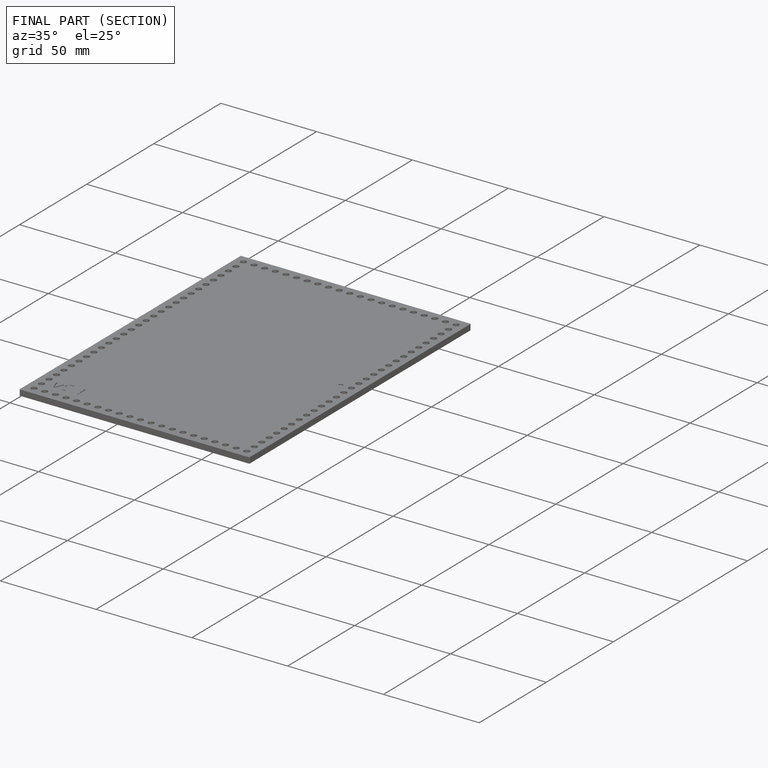
[diagram: finished part — half-section view (interior)]
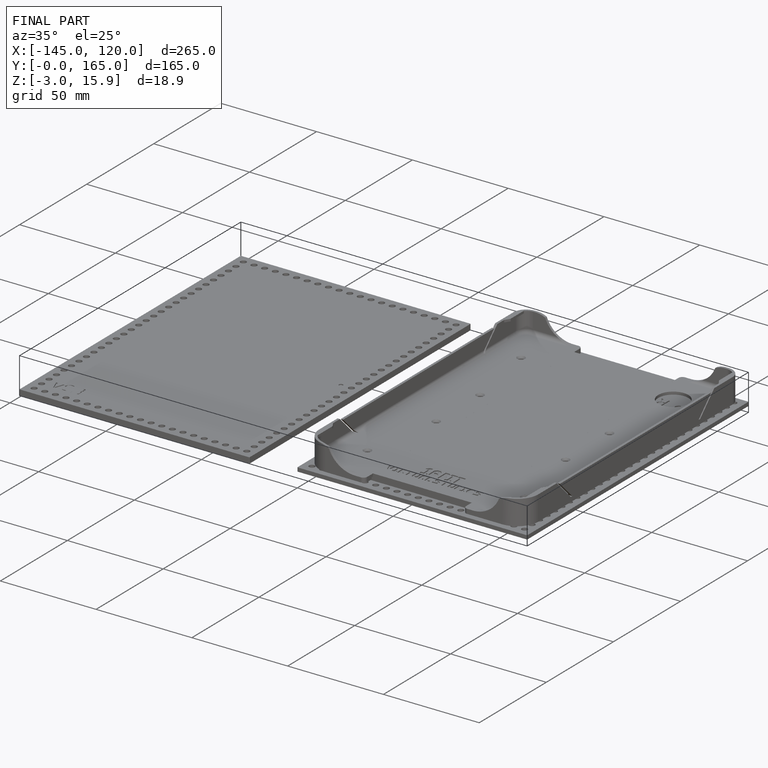
[diagram: finished part — iso view with bounding-box wireframe]
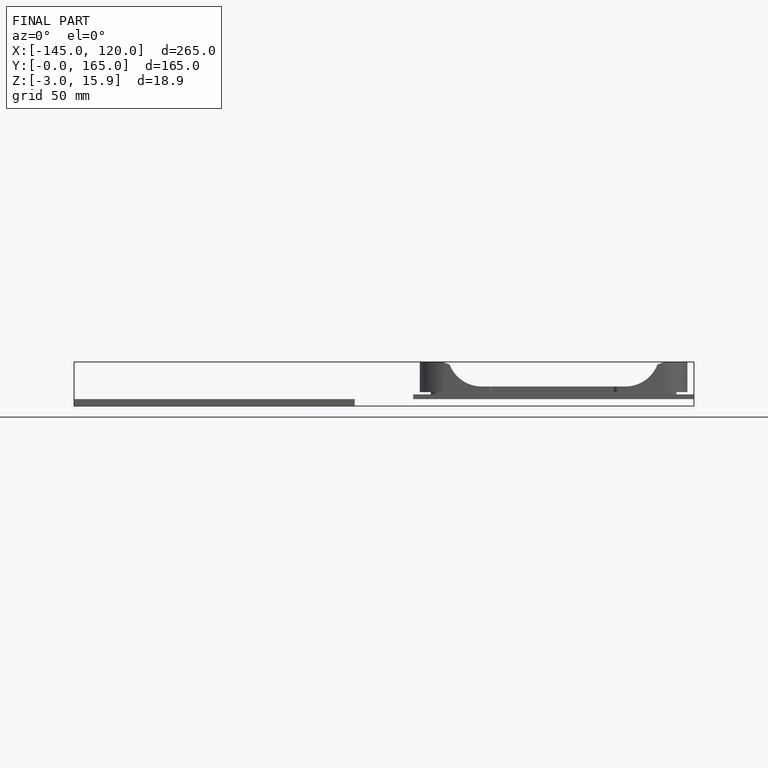
[diagram: finished part — front view with bounding-box wireframe]
